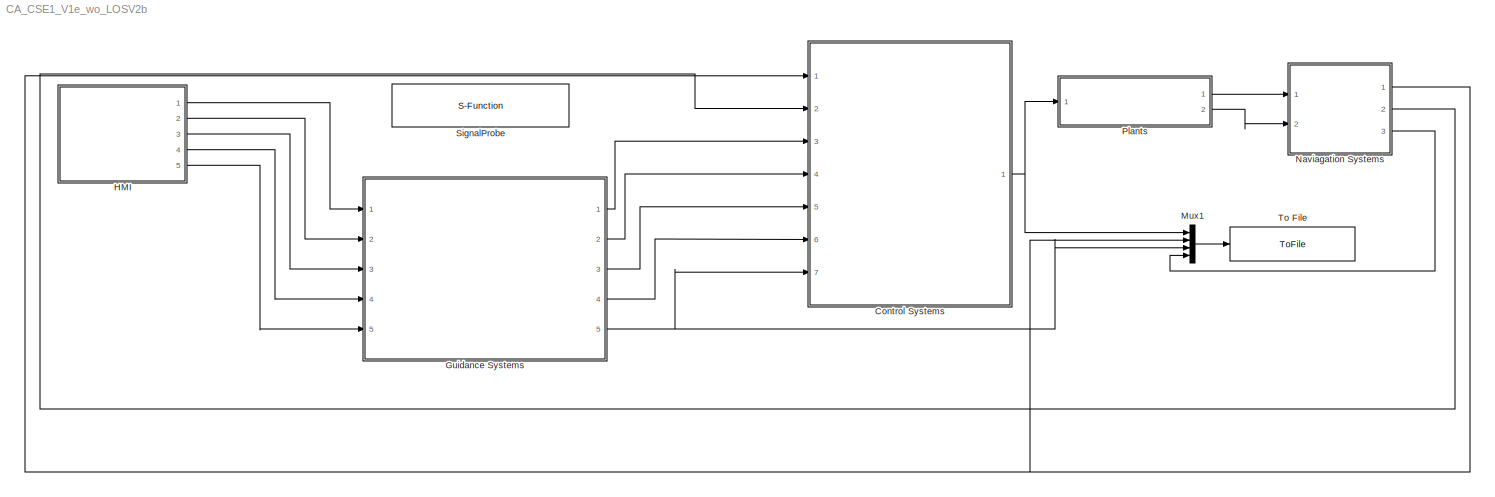
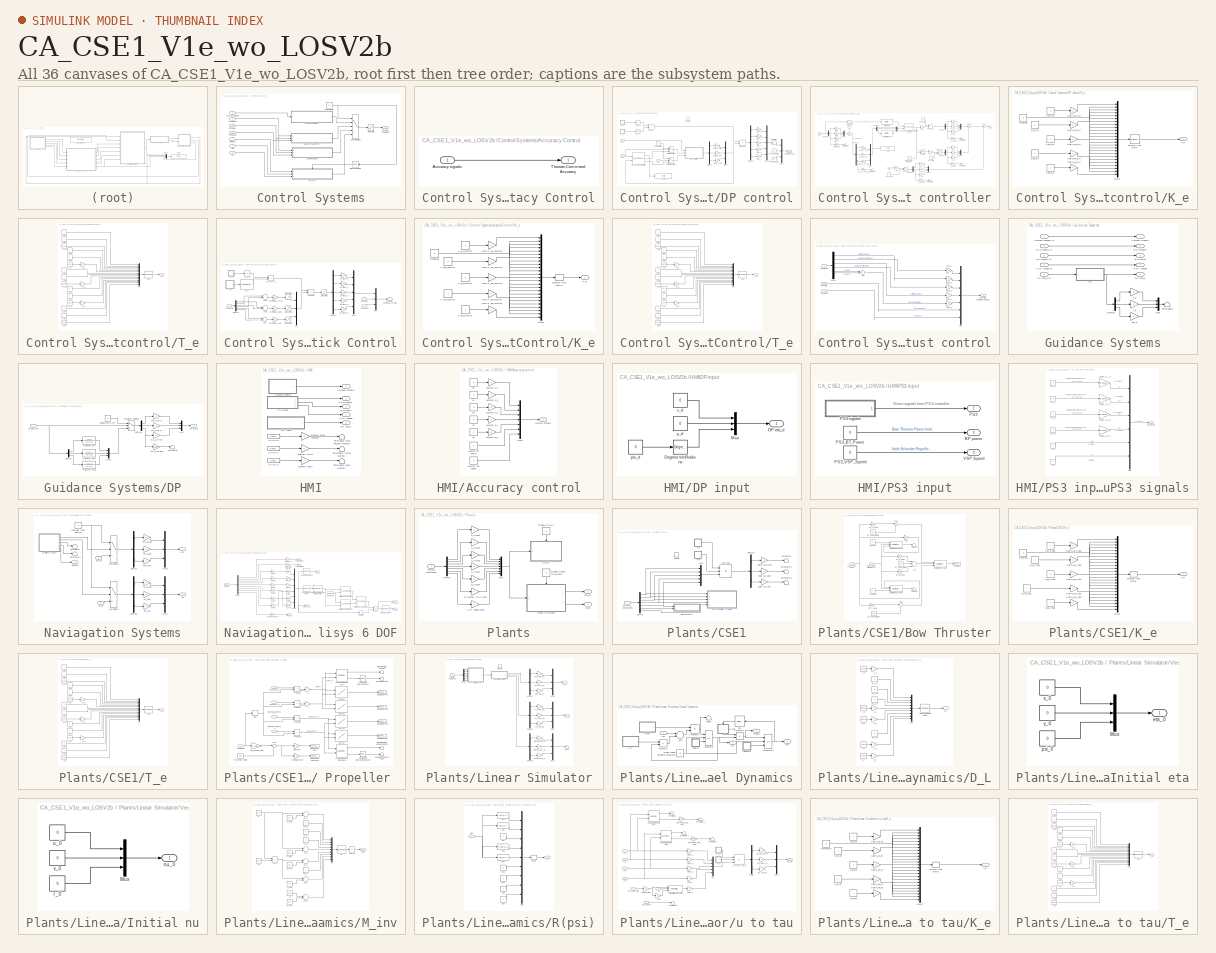
[diagram: thumbnail index - all 36 canvases of the model, root first then tree order]
MODEL CA_CSE1_V1e_wo_LOSV2b
KIND model
BLOCK [SubSystem] Control Systems
  FunctionWithSeparateData = off
  MaskHideContents = off
  MinAlgLoopOccurrences = off
  Opaque = off
  Ports = [7, 1]
  PropExecContextOutsideSubsystem = off
  RTWSystemCode = Auto
  RequestExecContextInheritance = off
BLOCK [SubSystem] Control Systems/Accuracy Control
  FunctionWithSeparateData = off
  MaskHideContents = off
  MinAlgLoopOccurrences = off
  Opaque = off
  Ports = [1, 1]
  PropExecContextOutsideSubsystem = off
  RTWSystemCode = Auto
  RequestExecContextInheritance = off
BLOCK [Inport] Control Systems/Accuracy Control/Accuracy signals
  IconDisplay = Port number
BLOCK [Outport] Control Systems/Accuracy Control/Thruster Command Accuracy
  IconDisplay = Port number
BLOCK [Inport] Control Systems/Accuracy signals
  IconDisplay = Port number
  Port = 3
BLOCK [Inport] Control Systems/BT Power
  IconDisplay = Port number
  Port = 5
BLOCK [Constant] Control Systems/Control Mode
  Value = 0
BLOCK [MultiPortSwitch] Control Systems/Control\nSwitch
  InputSameDT = off
  Inputs = 4
  Ports = [5, 1]
  SaturateOnIntegerOverflow = off
  zeroidx = on
BLOCK [SubSystem] Control Systems/DP control
  FunctionWithSeparateData = off
  MaskHideContents = off
  MinAlgLoopOccurrences = off
  Opaque = off
  Ports = [3, 1, 1]
  PropExecContextOutsideSubsystem = off
  RTWSystemCode = Auto
  RequestExecContextInheritance = off
BLOCK [Constant] Control Systems/DP control/BT_power_limit
  Value = 0.5
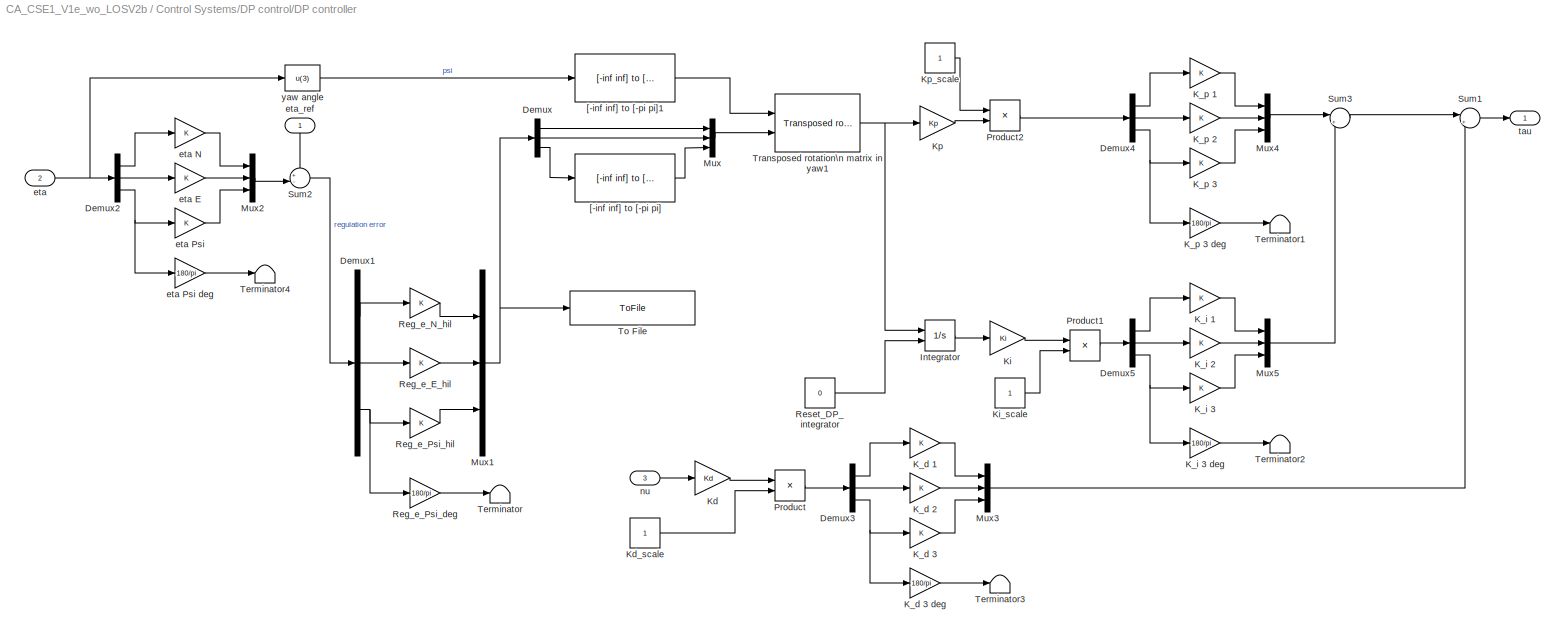
BLOCK [SubSystem] Control Systems/DP control/DP controller
  FunctionWithSeparateData = off
  MaskCallbackString = ||
  MaskDescription = Nonlinear PID controller for Set-Point Reulation in Surge, Sway and Yaw
  MaskDisplay = disp('Nonlinear PID\\n set-point controller')
  MaskEnableString = on,on,on
  MaskHelp = The nonlinear  PID controller uses the rotation matrix in yaw for proper scaling of the surge, sway and yaw gains as a function of the yaw angle. \nINPUTS: (1) eta_ref, (2) eta, (3) nu. OUPUTS: (1) tau.
  MaskHideContents = off
  MaskIconFrame = on
  MaskIconOpaque = off
  MaskIconRotate = none
  MaskIconUnits = autoscale
  MaskPortRotate = default
  MaskPromptString = Proportional Gain Matrix: Kp|Derivative Gain Matrix: Kd|Integral Gain Matrix: Ki
  MaskStyleString = edit,edit,edit
  MaskTabNameString = ,,
  MaskToolTipString = on,on,on
  MaskTunableValueString = on,on,on
  MaskType = Nonlinear DP Controller
  MaskValueString = (0.1)^2*[25.8000 0  0;  0  33.8000  1.0115;  0  1.0115  2.7600 ]|2*0.8*0.1*[25.8000 0  0;  0  33.8000  1.0115;  0  1.0115  2.7600 ]|(0.1^3/10)*[25.8000 0  0;  0  33.8000  1.0115;  0  1.0115  2.7600 ]
  MaskVarAliasString = ,,
  MaskVariables = Kp=@1;Kd=@2;Ki=@3;
  MaskVisibilityString = on,on,on
  MinAlgLoopOccurrences = off
  Opaque = off
  Ports = [3, 1]
  PropExecContextOutsideSubsystem = off
  RTWSystemCode = Auto
  RequestExecContextInheritance = off
BLOCK [Demux] Control Systems/DP control/DP controller/Demux
  DisplayOption = bar
  Outputs = 3
  Ports = [1, 3]
BLOCK [Demux] Control Systems/DP control/DP controller/Demux1
  DisplayOption = bar
  Outputs = 3
  Ports = [1, 3]
BLOCK [Demux] Control Systems/DP control/DP controller/Demux2
  DisplayOption = bar
  Outputs = 3
  Ports = [1, 3]
BLOCK [Demux] Control Systems/DP control/DP controller/Demux3
  DisplayOption = bar
  Outputs = 3
  Ports = [1, 3]
BLOCK [Demux] Control Systems/DP control/DP controller/Demux4
  DisplayOption = bar
  Outputs = 3
  Ports = [1, 3]
BLOCK [Demux] Control Systems/DP control/DP controller/Demux5
  DisplayOption = bar
  Outputs = 3
  Ports = [1, 3]
BLOCK [Integrator] Control Systems/DP control/DP controller/Integrator
  ExternalReset = level
  Ports = [2, 1]
BLOCK [Gain] Control Systems/DP control/DP controller/K_d 1
  OutDataType = fixdt(1, 16)
  OutDataTypeMode = Inherit via internal rule
  OutDataTypeStr = Inherit: Inherit via internal rule
  OutScaling = 2^0
  ParamDataTypeStr = Inherit: Inherit via internal rule
  ParameterDataType = fixdt(1, 16)
  ParameterDataTypeMode = Inherit via internal rule
  ParameterScaling = 2^0
  SaturateOnIntegerOverflow = off
BLOCK [Gain] Control Systems/DP control/DP controller/K_d 2
  OutDataType = fixdt(1, 16)
  OutDataTypeMode = Inherit via internal rule
  OutDataTypeStr = Inherit: Inherit via internal rule
  OutScaling = 2^0
  ParamDataTypeStr = Inherit: Inherit via internal rule
  ParameterDataType = fixdt(1, 16)
  ParameterDataTypeMode = Inherit via internal rule
  ParameterScaling = 2^0
  SaturateOnIntegerOverflow = off
BLOCK [Gain] Control Systems/DP control/DP controller/K_d 3
  OutDataType = fixdt(1, 16)
  OutDataTypeMode = Inherit via internal rule
  OutDataTypeStr = Inherit: Inherit via internal rule
  OutScaling = 2^0
  ParamDataTypeStr = Inherit: Inherit via internal rule
  ParameterDataType = fixdt(1, 16)
  ParameterDataTypeMode = Inherit via internal rule
  ParameterScaling = 2^0
  SaturateOnIntegerOverflow = off
BLOCK [Gain] Control Systems/DP control/DP controller/K_d 3 deg
  Gain = 180/pi
  OutDataType = fixdt(1, 16)
  OutDataTypeMode = Inherit via internal rule
  OutDataTypeStr = Inherit: Inherit via internal rule
  OutScaling = 2^0
  ParamDataTypeStr = Inherit: Inherit via internal rule
  ParameterDataType = fixdt(1, 16)
  ParameterDataTypeMode = Inherit via internal rule
  ParameterScaling = 2^0
  SaturateOnIntegerOverflow = off
BLOCK [Gain] Control Systems/DP control/DP controller/K_i 1
  OutDataType = fixdt(1, 16)
  OutDataTypeMode = Inherit via internal rule
  OutDataTypeStr = Inherit: Inherit via internal rule
  OutScaling = 2^0
  ParamDataTypeStr = Inherit: Inherit via internal rule
  ParameterDataType = fixdt(1, 16)
  ParameterDataTypeMode = Inherit via internal rule
  ParameterScaling = 2^0
  SaturateOnIntegerOverflow = off
BLOCK [Gain] Control Systems/DP control/DP controller/K_i 2
  OutDataType = fixdt(1, 16)
  OutDataTypeMode = Inherit via internal rule
  OutDataTypeStr = Inherit: Inherit via internal rule
  OutScaling = 2^0
  ParamDataTypeStr = Inherit: Inherit via internal rule
  ParameterDataType = fixdt(1, 16)
  ParameterDataTypeMode = Inherit via internal rule
  ParameterScaling = 2^0
  SaturateOnIntegerOverflow = off
BLOCK [Gain] Control Systems/DP control/DP controller/K_i 3
  OutDataType = fixdt(1, 16)
  OutDataTypeMode = Inherit via internal rule
  OutDataTypeStr = Inherit: Inherit via internal rule
  OutScaling = 2^0
  ParamDataTypeStr = Inherit: Inherit via internal rule
  ParameterDataType = fixdt(1, 16)
  ParameterDataTypeMode = Inherit via internal rule
  ParameterScaling = 2^0
  SaturateOnIntegerOverflow = off
BLOCK [Gain] Control Systems/DP control/DP controller/K_i 3 deg
  Gain = 180/pi
  OutDataType = fixdt(1, 16)
  OutDataTypeMode = Inherit via internal rule
  OutDataTypeStr = Inherit: Inherit via internal rule
  OutScaling = 2^0
  ParamDataTypeStr = Inherit: Inherit via internal rule
  ParameterDataType = fixdt(1, 16)
  ParameterDataTypeMode = Inherit via internal rule
  ParameterScaling = 2^0
  SaturateOnIntegerOverflow = off
BLOCK [Gain] Control Systems/DP control/DP controller/K_p 1
  OutDataType = fixdt(1, 16)
  OutDataTypeMode = Inherit via internal rule
  OutDataTypeStr = Inherit: Inherit via internal rule
  OutScaling = 2^0
  ParamDataTypeStr = Inherit: Inherit via internal rule
  ParameterDataType = fixdt(1, 16)
  ParameterDataTypeMode = Inherit via internal rule
  ParameterScaling = 2^0
  SaturateOnIntegerOverflow = off
BLOCK [Gain] Control Systems/DP control/DP controller/K_p 2
  OutDataType = fixdt(1, 16)
  OutDataTypeMode = Inherit via internal rule
  OutDataTypeStr = Inherit: Inherit via internal rule
  OutScaling = 2^0
  ParamDataTypeStr = Inherit: Inherit via internal rule
  ParameterDataType = fixdt(1, 16)
  ParameterDataTypeMode = Inherit via internal rule
  ParameterScaling = 2^0
  SaturateOnIntegerOverflow = off
BLOCK [Gain] Control Systems/DP control/DP controller/K_p 3
  OutDataType = fixdt(1, 16)
  OutDataTypeMode = Inherit via internal rule
  OutDataTypeStr = Inherit: Inherit via internal rule
  OutScaling = 2^0
  ParamDataTypeStr = Inherit: Inherit via internal rule
  ParameterDataType = fixdt(1, 16)
  ParameterDataTypeMode = Inherit via internal rule
  ParameterScaling = 2^0
  SaturateOnIntegerOverflow = off
BLOCK [Gain] Control Systems/DP control/DP controller/K_p 3 deg
  Gain = 180/pi
  OutDataType = fixdt(1, 16)
  OutDataTypeMode = Inherit via internal rule
  OutDataTypeStr = Inherit: Inherit via internal rule
  OutScaling = 2^0
  ParamDataTypeStr = Inherit: Inherit via internal rule
  ParameterDataType = fixdt(1, 16)
  ParameterDataTypeMode = Inherit via internal rule
  ParameterScaling = 2^0
  SaturateOnIntegerOverflow = off
BLOCK [Gain] Control Systems/DP control/DP controller/Kd
  Gain = Kd
  Multiplication = Matrix(K*u)
BLOCK [Constant] Control Systems/DP control/DP controller/Kd_scale
BLOCK [Gain] Control Systems/DP control/DP controller/Ki
  Gain = Ki
  Multiplication = Matrix(K*u)
BLOCK [Constant] Control Systems/DP control/DP controller/Ki_scale
BLOCK [Gain] Control Systems/DP control/DP controller/Kp
  Gain = Kp
  Multiplication = Matrix(K*u)
BLOCK [Constant] Control Systems/DP control/DP controller/Kp_scale
BLOCK [Mux] Control Systems/DP control/DP controller/Mux
  DisplayOption = bar
  Inputs = 3
  Ports = [3, 1]
BLOCK [Mux] Control Systems/DP control/DP controller/Mux1
  DisplayOption = bar
  Inputs = 3
  Ports = [3, 1]
BLOCK [Mux] Control Systems/DP control/DP controller/Mux2
  DisplayOption = bar
  Inputs = 3
  Ports = [3, 1]
BLOCK [Mux] Control Systems/DP control/DP controller/Mux3
  DisplayOption = bar
  Inputs = 3
  Ports = [3, 1]
BLOCK [Mux] Control Systems/DP control/DP controller/Mux4
  DisplayOption = bar
  Inputs = 3
  Ports = [3, 1]
BLOCK [Mux] Control Systems/DP control/DP controller/Mux5
  DisplayOption = bar
  Inputs = 3
  Ports = [3, 1]
BLOCK [Product] Control Systems/DP control/DP controller/Product
  InputSameDT = off
  OutDataTypeMode = Inherit via internal rule
  OutDataTypeStr = Inherit: Inherit via internal rule
  Ports = [2, 1]
  SaturateOnIntegerOverflow = off
BLOCK [Product] Control Systems/DP control/DP controller/Product1
  InputSameDT = off
  OutDataTypeMode = Inherit via internal rule
  OutDataTypeStr = Inherit: Inherit via internal rule
  Ports = [2, 1]
  SaturateOnIntegerOverflow = off
BLOCK [Product] Control Systems/DP control/DP controller/Product2
  InputSameDT = off
  OutDataTypeMode = Inherit via internal rule
  OutDataTypeStr = Inherit: Inherit via internal rule
  Ports = [2, 1]
  SaturateOnIntegerOverflow = off
BLOCK [Gain] Control Systems/DP control/DP controller/Reg_e_E_hil
  OutDataTypeMode = Inherit via internal rule
  OutDataTypeStr = Inherit: Inherit via internal rule
  ParamDataTypeStr = Inherit: Inherit via internal rule
  ParameterDataTypeMode = Inherit via internal rule
  SaturateOnIntegerOverflow = off
BLOCK [Gain] Control Systems/DP control/DP controller/Reg_e_N_hil
  OutDataTypeMode = Inherit via internal rule
  OutDataTypeStr = Inherit: Inherit via internal rule
  ParamDataTypeStr = Inherit: Inherit via internal rule
  ParameterDataTypeMode = Inherit via internal rule
  SaturateOnIntegerOverflow = off
BLOCK [Gain] Control Systems/DP control/DP controller/Reg_e_Psi_deg
  Gain = 180/pi
  OutDataType = fixdt(1, 16)
  OutDataTypeMode = Inherit via internal rule
  OutDataTypeStr = Inherit: Inherit via internal rule
  OutScaling = 2^0
  ParamDataTypeStr = Inherit: Inherit via internal rule
  ParameterDataType = fixdt(1, 16)
  ParameterDataTypeMode = Inherit via internal rule
  ParameterScaling = 2^0
  SaturateOnIntegerOverflow = off
BLOCK [Gain] Control Systems/DP control/DP controller/Reg_e_Psi_hil
  OutDataTypeMode = Inherit via internal rule
  OutDataTypeStr = Inherit: Inherit via internal rule
  ParamDataTypeStr = Inherit: Inherit via internal rule
  ParameterDataTypeMode = Inherit via internal rule
  SaturateOnIntegerOverflow = off
BLOCK [Constant] Control Systems/DP control/DP controller/Reset_DP_integrator
  Value = 0
BLOCK [Sum] Control Systems/DP control/DP controller/Sum1
  IconShape = round
  Inputs = |+-
  Ports = [2, 1]
BLOCK [Sum] Control Systems/DP control/DP controller/Sum2
  IconShape = round
  Inputs = +-|
  Ports = [2, 1]
BLOCK [Sum] Control Systems/DP control/DP controller/Sum3
  IconShape = round
  Inputs = |++
  Ports = [2, 1]
BLOCK [Terminator] Control Systems/DP control/DP controller/Terminator
BLOCK [Terminator] Control Systems/DP control/DP controller/Terminator1
BLOCK [Terminator] Control Systems/DP control/DP controller/Terminator2
BLOCK [Terminator] Control Systems/DP control/DP controller/Terminator3
BLOCK [Terminator] Control Systems/DP control/DP controller/Terminator4
BLOCK [ToFile] Control Systems/DP control/DP controller/To File
  Filename = CSE1_data_reg_error.mat
  MatrixName = cse1_data_reg_error
BLOCK [Reference] Control Systems/DP control/DP controller/Transposed rotation\n matrix in yaw1  REF=marine_gnc/Models/ Kinematics/Transposed rotation\n matrix in yaw  (lib defined in mdl_10d96c221ba8, mdl_45f1105420c6)
  FunctionWithSeparateData = off
  Ports = [2, 1]
  RTWMemSecDataConstants = Inherit from model
  RTWMemSecDataInternal = Inherit from model
  RTWMemSecDataParameters = Inherit from model
  RTWMemSecFuncExecute = Inherit from model
  RTWMemSecFuncInitTerm = Inherit from model
  ShowPortLabels = FromPortIcon
  SourceBlock = marine_gnc/Models/ Kinematics/Transposed rotation\n matrix in yaw
  SystemSampleTime = -1
BLOCK [Reference] Control Systems/DP control/DP controller/[-inf inf] to [-pi pi]  REF=marine_gnc/Utilities/Math Operations/[-inf inf] to [-pi pi]  (lib defined in mdl_10d96c221ba8, mdl_45f1105420c6)
  FunctionWithSeparateData = off
  Ports = [1, 1]
  RTWMemSecDataConstants = Inherit from model
  RTWMemSecDataInternal = Inherit from model
  RTWMemSecDataParameters = Inherit from model
  RTWMemSecFuncExecute = Inherit from model
  RTWMemSecFuncInitTerm = Inherit from model
  ShowPortLabels = FromPortIcon
  SourceBlock = marine_gnc/Utilities/Math Operations/[-inf inf] to [-pi pi]
  SourceType = [-inf inf] to [-pi pi]
  SystemSampleTime = -1
BLOCK [Reference] Control Systems/DP control/DP controller/[-inf inf] to [-pi pi]1  REF=marine_gnc/Utilities/Math Operations/[-inf inf] to [-pi pi]  (lib defined in mdl_10d96c221ba8, mdl_45f1105420c6)
  FunctionWithSeparateData = off
  Ports = [1, 1]
  RTWMemSecDataConstants = Inherit from model
  RTWMemSecDataInternal = Inherit from model
  RTWMemSecDataParameters = Inherit from model
  RTWMemSecFuncExecute = Inherit from model
  RTWMemSecFuncInitTerm = Inherit from model
  ShowPortLabels = FromPortIcon
  SourceBlock = marine_gnc/Utilities/Math Operations/[-inf inf] to [-pi pi]
  SourceType = [-inf inf] to [-pi pi]
  SystemSampleTime = -1
BLOCK [Inport] Control Systems/DP control/DP controller/eta
  IconDisplay = Port number
  Port = 2
BLOCK [Gain] Control Systems/DP control/DP controller/eta E
  OutDataType = fixdt(1, 16)
  OutDataTypeMode = Inherit via internal rule
  OutDataTypeStr = Inherit: Inherit via internal rule
  OutScaling = 2^0
  ParamDataTypeStr = Inherit: Inherit via internal rule
  ParameterDataType = fixdt(1, 16)
  ParameterDataTypeMode = Inherit via internal rule
  ParameterScaling = 2^0
  SaturateOnIntegerOverflow = off
BLOCK [Gain] Control Systems/DP control/DP controller/eta N
  OutDataType = fixdt(1, 16)
  OutDataTypeMode = Inherit via internal rule
  OutDataTypeStr = Inherit: Inherit via internal rule
  OutScaling = 2^0
  ParamDataTypeStr = Inherit: Inherit via internal rule
  ParameterDataType = fixdt(1, 16)
  ParameterDataTypeMode = Inherit via internal rule
  ParameterScaling = 2^0
  SaturateOnIntegerOverflow = off
BLOCK [Gain] Control Systems/DP control/DP controller/eta Psi
  OutDataType = fixdt(1, 16)
  OutDataTypeMode = Inherit via internal rule
  OutDataTypeStr = Inherit: Inherit via internal rule
  OutScaling = 2^0
  ParamDataTypeStr = Inherit: Inherit via internal rule
  ParameterDataType = fixdt(1, 16)
  ParameterDataTypeMode = Inherit via internal rule
  ParameterScaling = 2^0
  SaturateOnIntegerOverflow = off
BLOCK [Gain] Control Systems/DP control/DP controller/eta Psi deg
  Gain = 180/pi
  OutDataType = fixdt(1, 16)
  OutDataTypeMode = Inherit via internal rule
  OutDataTypeStr = Inherit: Inherit via internal rule
  OutScaling = 2^0
  ParamDataTypeStr = Inherit: Inherit via internal rule
  ParameterDataType = fixdt(1, 16)
  ParameterDataTypeMode = Inherit via internal rule
  ParameterScaling = 2^0
  SaturateOnIntegerOverflow = off
BLOCK [Inport] Control Systems/DP control/DP controller/eta_ref
  IconDisplay = Port number
BLOCK [Inport] Control Systems/DP control/DP controller/nu
  IconDisplay = Port number
  Port = 3
BLOCK [Outport] Control Systems/DP control/DP controller/tau
  IconDisplay = Port number
  InitialOutput = 0
BLOCK [Fcn] Control Systems/DP control/DP controller/yaw angle
  Expr = u(3)
BLOCK [Gain] Control Systems/DP control/DP tau_surge
  OutDataType = fixdt(1, 16)
  OutDataTypeMode = Inherit via internal rule
  OutDataTypeStr = Inherit: Inherit via internal rule
  OutScaling = 2^0
  ParamDataTypeStr = Inherit: Inherit via internal rule
  ParameterDataType = fixdt(1, 16)
  ParameterDataTypeMode = Inherit via internal rule
  ParameterScaling = 2^0
  SaturateOnIntegerOverflow = off
BLOCK [Gain] Control Systems/DP control/DP tau_sway
  OutDataType = fixdt(1, 16)
  OutDataTypeMode = Inherit via internal rule
  OutDataTypeStr = Inherit: Inherit via internal rule
  OutScaling = 2^0
  ParamDataTypeStr = Inherit: Inherit via internal rule
  ParameterDataType = fixdt(1, 16)
  ParameterDataTypeMode = Inherit via internal rule
  ParameterScaling = 2^0
  SaturateOnIntegerOverflow = off
BLOCK [Gain] Control Systems/DP control/DP tau_yaw
  OutDataType = fixdt(1, 16)
  OutDataTypeMode = Inherit via internal rule
  OutDataTypeStr = Inherit: Inherit via internal rule
  OutScaling = 2^0
  ParamDataTypeStr = Inherit: Inherit via internal rule
  ParameterDataType = fixdt(1, 16)
  ParameterDataTypeMode = Inherit via internal rule
  ParameterScaling = 2^0
  SaturateOnIntegerOverflow = off
BLOCK [Gain] Control Systems/DP control/DP u_1
  OutDataType = fixdt(1, 16)
  OutDataTypeMode = Inherit via internal rule
  OutDataTypeStr = Inherit: Inherit via internal rule
  OutScaling = 2^0
  ParamDataTypeStr = Inherit: Inherit via internal rule
  ParameterDataType = fixdt(1, 16)
  ParameterDataTypeMode = Inherit via internal rule
  ParameterScaling = 2^0
  SaturateOnIntegerOverflow = off
BLOCK [Gain] Control Systems/DP control/DP u_2
  OutDataType = fixdt(1, 16)
  OutDataTypeMode = Inherit via internal rule
  OutDataTypeStr = Inherit: Inherit via internal rule
  OutScaling = 2^0
  ParamDataTypeStr = Inherit: Inherit via internal rule
  ParameterDataType = fixdt(1, 16)
  ParameterDataTypeMode = Inherit via internal rule
  ParameterScaling = 2^0
  SaturateOnIntegerOverflow = off
BLOCK [Gain] Control Systems/DP control/DP u_3
  OutDataType = fixdt(1, 16)
  OutDataTypeMode = Inherit via internal rule
  OutDataTypeStr = Inherit: Inherit via internal rule
  OutScaling = 2^0
  ParamDataTypeStr = Inherit: Inherit via internal rule
  ParameterDataType = fixdt(1, 16)
  ParameterDataTypeMode = Inherit via internal rule
  ParameterScaling = 2^0
  SaturateOnIntegerOverflow = off
BLOCK [Gain] Control Systems/DP control/DP u_4
  OutDataType = fixdt(1, 16)
  OutDataTypeMode = Inherit via internal rule
  OutDataTypeStr = Inherit: Inherit via internal rule
  OutScaling = 2^0
  ParamDataTypeStr = Inherit: Inherit via internal rule
  ParameterDataType = fixdt(1, 16)
  ParameterDataTypeMode = Inherit via internal rule
  ParameterScaling = 2^0
  SaturateOnIntegerOverflow = off
BLOCK [Gain] Control Systems/DP control/DP u_5
  OutDataType = fixdt(1, 16)
  OutDataTypeMode = Inherit via internal rule
  OutDataTypeStr = Inherit: Inherit via internal rule
  OutScaling = 2^0
  ParamDataTypeStr = Inherit: Inherit via internal rule
  ParameterDataType = fixdt(1, 16)
  ParameterDataTypeMode = Inherit via internal rule
  ParameterScaling = 2^0
  SaturateOnIntegerOverflow = off
BLOCK [Demux] Control Systems/DP control/Demux
  DisplayOption = bar
  Outputs = 3
  Ports = [1, 3]
BLOCK [Demux] Control Systems/DP control/Demux1
  DisplayOption = bar
  Outputs = 5
  Ports = [1, 5]
BLOCK [EnablePort] Control Systems/DP control/Enable
  Ports = []
  StatesWhenEnabling = reset
BLOCK [Constant] Control Systems/DP control/Enable Filter
  Value = 0
BLOCK [SubSystem] Control Systems/DP control/K_e
  FunctionWithSeparateData = off
  MaskHideContents = off
  MinAlgLoopOccurrences = off
  Opaque = off
  Ports = [0, 1]
  PropExecContextOutsideSubsystem = off
  RTWSystemCode = Auto
  RequestExecContextInheritance = off
BLOCK [Constant] Control Systems/DP control/K_e/Constant
  OutDataType = fixdt(1, 16)
  OutScaling = 2^0
  Value = 0
BLOCK [Gain] Control Systems/DP control/K_e/Gain K_e1_DP
  OutDataType = fixdt(1, 16)
  OutDataTypeMode = Inherit via internal rule
  OutDataTypeStr = Inherit: Inherit via internal rule
  OutScaling = 2^0
  ParamDataTypeStr = Inherit: Inherit via internal rule
  ParameterDataType = fixdt(1, 16)
  ParameterDataTypeMode = Inherit via internal rule
  ParameterScaling = 2^0
  SaturateOnIntegerOverflow = off
BLOCK [Gain] Control Systems/DP control/K_e/Gain K_e2_DP
  OutDataType = fixdt(1, 16)
  OutDataTypeMode = Inherit via internal rule
  OutDataTypeStr = Inherit: Inherit via internal rule
  OutScaling = 2^0
  ParamDataTypeStr = Inherit: Inherit via internal rule
  ParameterDataType = fixdt(1, 16)
  ParameterDataTypeMode = Inherit via internal rule
  ParameterScaling = 2^0
  SaturateOnIntegerOverflow = off
BLOCK [Gain] Control Systems/DP control/K_e/Gain K_e3_DP
  OutDataType = fixdt(1, 16)
  OutDataTypeMode = Inherit via internal rule
  OutDataTypeStr = Inherit: Inherit via internal rule
  OutScaling = 2^0
  ParamDataTypeStr = Inherit: Inherit via internal rule
  ParameterDataType = fixdt(1, 16)
  ParameterDataTypeMode = Inherit via internal rule
  ParameterScaling = 2^0
  SaturateOnIntegerOverflow = off
BLOCK [Gain] Control Systems/DP control/K_e/Gain K_e4_DP
  OutDataType = fixdt(1, 16)
  OutDataTypeMode = Inherit via internal rule
  OutDataTypeStr = Inherit: Inherit via internal rule
  OutScaling = 2^0
  ParamDataTypeStr = Inherit: Inherit via internal rule
  ParameterDataType = fixdt(1, 16)
  ParameterDataTypeMode = Inherit via internal rule
  ParameterScaling = 2^0
  SaturateOnIntegerOverflow = off
BLOCK [Gain] Control Systems/DP control/K_e/Gain K_e5_DP
  OutDataType = fixdt(1, 16)
  OutDataTypeMode = Inherit via internal rule
  OutDataTypeStr = Inherit: Inherit via internal rule
  OutScaling = 2^0
  ParamDataTypeStr = Inherit: Inherit via internal rule
  ParameterDataType = fixdt(1, 16)
  ParameterDataTypeMode = Inherit via internal rule
  ParameterScaling = 2^0
  SaturateOnIntegerOverflow = off
BLOCK [Outport] Control Systems/DP control/K_e/K_e
  IconDisplay = Port number
  OutDataType = fixdt(1, 16)
  OutScaling = 2^0
BLOCK [Constant] Control Systems/DP control/K_e/K_e1_DP
  OutDataType = fixdt(1, 16)
  OutScaling = 2^0
BLOCK [Constant] Control Systems/DP control/K_e/K_e2_DP
  OutDataType = fixdt(1, 16)
  OutScaling = 2^0
BLOCK [Constant] Control Systems/DP control/K_e/K_e3_DP
  OutDataType = fixdt(1, 16)
  OutScaling = 2^0
BLOCK [Constant] Control Systems/DP control/K_e/K_e4_DP
  OutDataType = fixdt(1, 16)
  OutScaling = 2^0
BLOCK [Constant] Control Systems/DP control/K_e/K_e5_DP
  OutDataType = fixdt(1, 16)
  OutScaling = 2^0
BLOCK [Mux] Control Systems/DP control/K_e/Mux12
  DisplayOption = bar
  Inputs = 25
  Ports = [25, 1]
BLOCK [Reshape] Control Systems/DP control/K_e/Thruster Gain matrix
  OutputDimensionality = Customize
  OutputDimensions = [5,5]
  Ports = [1, 1]
BLOCK [Product] Control Systems/DP control/K_e^-1
  InputSameDT = off
  Inputs = /
  Multiplication = Matrix(*)
  OutDataTypeMode = Inherit via internal rule
  OutDataTypeStr = Inherit: Inherit via internal rule
  Ports = [1, 1]
  RndMeth = Floor
  SaturateOnIntegerOverflow = off
BLOCK [MultiPortSwitch] Control Systems/DP control/Multiport\nSwitch
  InputSameDT = off
  Inputs = 2
  Ports = [3, 1]
  SaturateOnIntegerOverflow = off
  zeroidx = on
BLOCK [MultiPortSwitch] Control Systems/DP control/Multiport\nSwitch1
  InputSameDT = off
  Inputs = 2
  Ports = [3, 1]
  SaturateOnIntegerOverflow = off
  zeroidx = on
BLOCK [Mux] Control Systems/DP control/Mux1
  DisplayOption = bar
  Inputs = 3
  Ports = [3, 1]
BLOCK [Mux] Control Systems/DP control/Mux2
  DisplayOption = bar
  Inputs = 5
  Ports = [5, 1]
BLOCK [Mux] Control Systems/DP control/Mux3
  DisplayOption = bar
  Inputs = 3
  Ports = [3, 1]
BLOCK [Reference] Control Systems/DP control/Passive DP wave filter1  REF=marine_gnc/Navigation/Observers/Passive DP wave filter  (lib defined in mdl_10d96c221ba8, mdl_45f1105420c6)
  D = [2 0  0;  0 7 0.1; 0 0.1 0.5]
  FunctionWithSeparateData = off
  K3 = 0.1*diag([1 1 0.1])
  K4 = 0.1*diag([1 1 0.1])
  M = [ 25.8000   0    0;   0   33.8000   1.0115; 0   1.0115    2.7600 ]
  Ports = [2, 3]
  RTWMemSecDataConstants = Inherit from model
  RTWMemSecDataInternal = Inherit from model
  RTWMemSecDataParameters = Inherit from model
  RTWMemSecFuncExecute = Inherit from model
  RTWMemSecFuncInitTerm = Inherit from model
  ShowPortLabels = FromPortIcon
  SourceBlock = marine_gnc/Navigation/Observers/Passive DP wave filter
  SystemSampleTime = -1
  T_b = diag([100 100 100])
  lambda = 0.1*diag([1 1 1])
  w_c = 1.3*diag([0.8 0.8 0.8])
  w_o = diag([0.8 0.8 0.8])
BLOCK [Product] Control Systems/DP control/Product
  InputSameDT = off
  Multiplication = Matrix(*)
  OutDataTypeMode = Inherit via internal rule
  OutDataTypeStr = Inherit: Inherit via internal rule
  Ports = [2, 1]
  SaturateOnIntegerOverflow = off
BLOCK [Product] Control Systems/DP control/Product1
  InputSameDT = off
  Multiplication = Matrix(*)
  OutDataTypeMode = Inherit via internal rule
  OutDataTypeStr = Inherit: Inherit via internal rule
  Ports = [2, 1]
  SaturateOnIntegerOverflow = off
BLOCK [Saturate] Control Systems/DP control/Saturation
  LowerLimit = -1.0
  UpperLimit = 1.0
BLOCK [SubSystem] Control Systems/DP control/T_e
  FunctionWithSeparateData = off
  MaskHideContents = off
  MinAlgLoopOccurrences = off
  Opaque = off
  Ports = [0, 1]
  PropExecContextOutsideSubsystem = off
  RTWSystemCode = Auto
  RequestExecContextInheritance = off
BLOCK [Gain] Control Systems/DP control/T_e/-l_x1
  Gain = -1
  OutDataTypeMode = Inherit via internal rule
  OutDataTypeStr = Inherit: Inherit via internal rule
  ParamDataTypeStr = Inherit: Inherit via internal rule
  ParameterDataTypeMode = Inherit via internal rule
  SaturateOnIntegerOverflow = off
BLOCK [Gain] Control Systems/DP control/T_e/-l_x2
  Gain = -1
  OutDataTypeMode = Inherit via internal rule
  OutDataTypeStr = Inherit: Inherit via internal rule
  ParamDataTypeStr = Inherit: Inherit via internal rule
  ParameterDataTypeMode = Inherit via internal rule
  SaturateOnIntegerOverflow = off
BLOCK [Gain] Control Systems/DP control/T_e/-l_y2
  Gain = -1
  OutDataTypeMode = Inherit via internal rule
  OutDataTypeStr = Inherit: Inherit via internal rule
  ParamDataTypeStr = Inherit: Inherit via internal rule
  ParameterDataTypeMode = Inherit via internal rule
  SaturateOnIntegerOverflow = off
BLOCK [Reshape] Control Systems/DP control/T_e/3x5
  OutputDimensionality = Customize
  OutputDimensions = [3,5]
  Ports = [1, 1]
BLOCK [Mux] Control Systems/DP control/T_e/Mux
  DisplayOption = bar
  Inputs = 15
  Ports = [15, 1]
BLOCK [Outport] Control Systems/DP control/T_e/T_e
  IconDisplay = Port number
BLOCK [Constant] Control Systems/DP control/T_e/T_e11
BLOCK [Constant] Control Systems/DP control/T_e/T_e12
  Value = 0
BLOCK [Constant] Control Systems/DP control/T_e/T_e13
BLOCK [Constant] Control Systems/DP control/T_e/T_e14
  Value = 0
BLOCK [Constant] Control Systems/DP control/T_e/T_e15
  Value = 0
BLOCK [Constant] Control Systems/DP control/T_e/T_e21
  Value = 0
BLOCK [Constant] Control Systems/DP control/T_e/T_e22
BLOCK [Constant] Control Systems/DP control/T_e/T_e23
  Value = 0
BLOCK [Constant] Control Systems/DP control/T_e/T_e24
BLOCK [Constant] Control Systems/DP control/T_e/T_e25
BLOCK [Constant] Control Systems/DP control/T_e/l_x1
  Value = 0.425
BLOCK [Constant] Control Systems/DP control/T_e/l_x2
  Value = 0.425
BLOCK [Constant] Control Systems/DP control/T_e/l_x3
  Value = 0.425
BLOCK [Constant] Control Systems/DP control/T_e/l_y1
  Value = 0.055
BLOCK [Constant] Control Systems/DP control/T_e/l_y2
  Value = 0.055
BLOCK [Reference] Control Systems/DP control/T_e^+  REF=dspinverses/Pseudoinverse
  Ports = [1, 1]
  SourceBlock = dspinverses/Pseudoinverse
  SourceType = Pseudoinverse
  wanterr = off
BLOCK [Outport] Control Systems/DP control/Thruster_Command_DP
  IconDisplay = Port number
  InitialOutput = [0;0;0;0;0;0;0]
BLOCK [ToFile] Control Systems/DP control/To File
  Filename = CSE1_data_eta_w.mat
  MatrixName = cse1_data
BLOCK [Constant] Control Systems/DP control/VSP_speeds
  Value = 0.4
BLOCK [Inport] Control Systems/DP control/eta
  IconDisplay = Port number
  Port = 2
BLOCK [Inport] Control Systems/DP control/eta_d
  IconDisplay = Port number
BLOCK [Inport] Control Systems/DP control/nu
  IconDisplay = Port number
  Port = 3
BLOCK [Inport] Control Systems/DP eta_d
  IconDisplay = Port number
  Port = 7
BLOCK [SubSystem] Control Systems/Joystick Control
  FunctionWithSeparateData = off
  MaskHideContents = off
  MinAlgLoopOccurrences = on
  Opaque = off
  Ports = [3, 1]
  PropExecContextOutsideSubsystem = off
  RTWSystemCode = Auto
  RequestExecContextInheritance = off
BLOCK [Inport] Control Systems/Joystick Control/BT Power
  IconDisplay = Port number
  Port = 2
BLOCK [Demux] Control Systems/Joystick Control/Demux1
  DisplayOption = bar
  Outputs = 6
  Ports = [1, 6]
BLOCK [Demux] Control Systems/Joystick Control/Demux2
  DisplayOption = bar
  Outputs = 5
  Ports = [1, 5]
BLOCK [Gain] Control Systems/Joystick Control/Joystick tau_surge
  OutDataTypeMode = Inherit via internal rule
  OutDataTypeStr = Inherit: Inherit via internal rule
  ParamDataTypeStr = Inherit: Inherit via internal rule
  ParameterDataTypeMode = Inherit via internal rule
  SaturateOnIntegerOverflow = off
BLOCK [Gain] Control Systems/Joystick Control/Joystick tau_sway
  OutDataTypeMode = Inherit via internal rule
  OutDataTypeStr = Inherit: Inherit via internal rule
  ParamDataTypeStr = Inherit: Inherit via internal rule
  ParameterDataTypeMode = Inherit via internal rule
  SaturateOnIntegerOverflow = off
BLOCK [Gain] Control Systems/Joystick Control/Joystick tau_yaw
  OutDataTypeMode = Inherit via internal rule
  OutDataTypeStr = Inherit: Inherit via internal rule
  ParamDataTypeStr = Inherit: Inherit via internal rule
  ParameterDataTypeMode = Inherit via internal rule
  SaturateOnIntegerOverflow = off
BLOCK [Gain] Control Systems/Joystick Control/Joystick u_1
  OutDataType = fixdt(1, 16)
  OutDataTypeMode = Inherit via internal rule
  OutDataTypeStr = Inherit: Inherit via internal rule
  OutScaling = 2^0
  ParamDataTypeStr = Inherit: Inherit via internal rule
  ParameterDataType = fixdt(1, 16)
  ParameterDataTypeMode = Inherit via internal rule
  ParameterScaling = 2^0
  SaturateOnIntegerOverflow = off
BLOCK [Gain] Control Systems/Joystick Control/Joystick u_2
  OutDataType = fixdt(1, 16)
  OutDataTypeMode = Inherit via internal rule
  OutDataTypeStr = Inherit: Inherit via internal rule
  OutScaling = 2^0
  ParamDataTypeStr = Inherit: Inherit via internal rule
  ParameterDataType = fixdt(1, 16)
  ParameterDataTypeMode = Inherit via internal rule
  ParameterScaling = 2^0
  SaturateOnIntegerOverflow = off
BLOCK [Gain] Control Systems/Joystick Control/Joystick u_3
  OutDataType = fixdt(1, 16)
  OutDataTypeMode = Inherit via internal rule
  OutDataTypeStr = Inherit: Inherit via internal rule
  OutScaling = 2^0
  ParamDataTypeStr = Inherit: Inherit via internal rule
  ParameterDataType = fixdt(1, 16)
  ParameterDataTypeMode = Inherit via internal rule
  ParameterScaling = 2^0
  SaturateOnIntegerOverflow = off
BLOCK [Gain] Control Systems/Joystick Control/Joystick u_4
  OutDataType = fixdt(1, 16)
  OutDataTypeMode = Inherit via internal rule
  OutDataTypeStr = Inherit: Inherit via internal rule
  OutScaling = 2^0
  ParamDataTypeStr = Inherit: Inherit via internal rule
  ParameterDataType = fixdt(1, 16)
  ParameterDataTypeMode = Inherit via internal rule
  ParameterScaling = 2^0
  SaturateOnIntegerOverflow = off
BLOCK [Gain] Control Systems/Joystick Control/Joystick u_5
  OutDataType = fixdt(1, 16)
  OutDataTypeMode = Inherit via internal rule
  OutDataTypeStr = Inherit: Inherit via internal rule
  OutScaling = 2^0
  ParamDataTypeStr = Inherit: Inherit via internal rule
  ParameterDataType = fixdt(1, 16)
  ParameterDataTypeMode = Inherit via internal rule
  ParameterScaling = 2^0
  SaturateOnIntegerOverflow = off
BLOCK [SubSystem] Control Systems/Joystick Control/K_e
  FunctionWithSeparateData = off
  MaskHideContents = off
  MinAlgLoopOccurrences = off
  Opaque = off
  Ports = [0, 1]
  PropExecContextOutsideSubsystem = off
  RTWSystemCode = Auto
  RequestExecContextInheritance = off
BLOCK [Constant] Control Systems/Joystick Control/K_e/Constant
  OutDataType = fixdt(1, 16)
  OutScaling = 2^0
  Value = 0
BLOCK [Gain] Control Systems/Joystick Control/K_e/Gain K_e1_joystick
  OutDataType = fixdt(1, 16)
  OutDataTypeMode = Inherit via internal rule
  OutDataTypeStr = Inherit: Inherit via internal rule
  OutScaling = 2^0
  ParamDataTypeStr = Inherit: Inherit via internal rule
  ParameterDataType = fixdt(1, 16)
  ParameterDataTypeMode = Inherit via internal rule
  ParameterScaling = 2^0
  SaturateOnIntegerOverflow = off
BLOCK [Gain] Control Systems/Joystick Control/K_e/Gain K_e2_joystick
  OutDataType = fixdt(1, 16)
  OutDataTypeMode = Inherit via internal rule
  OutDataTypeStr = Inherit: Inherit via internal rule
  OutScaling = 2^0
  ParamDataTypeStr = Inherit: Inherit via internal rule
  ParameterDataType = fixdt(1, 16)
  ParameterDataTypeMode = Inherit via internal rule
  ParameterScaling = 2^0
  SaturateOnIntegerOverflow = off
BLOCK [Gain] Control Systems/Joystick Control/K_e/Gain K_e3_joystick
  OutDataType = fixdt(1, 16)
  OutDataTypeMode = Inherit via internal rule
  OutDataTypeStr = Inherit: Inherit via internal rule
  OutScaling = 2^0
  ParamDataTypeStr = Inherit: Inherit via internal rule
  ParameterDataType = fixdt(1, 16)
  ParameterDataTypeMode = Inherit via internal rule
  ParameterScaling = 2^0
  SaturateOnIntegerOverflow = off
BLOCK [Gain] Control Systems/Joystick Control/K_e/Gain K_e4_joystick
  OutDataType = fixdt(1, 16)
  OutDataTypeMode = Inherit via internal rule
  OutDataTypeStr = Inherit: Inherit via internal rule
  OutScaling = 2^0
  ParamDataTypeStr = Inherit: Inherit via internal rule
  ParameterDataType = fixdt(1, 16)
  ParameterDataTypeMode = Inherit via internal rule
  ParameterScaling = 2^0
  SaturateOnIntegerOverflow = off
BLOCK [Gain] Control Systems/Joystick Control/K_e/Gain K_e5_joystick
  OutDataType = fixdt(1, 16)
  OutDataTypeMode = Inherit via internal rule
  OutDataTypeStr = Inherit: Inherit via internal rule
  OutScaling = 2^0
  ParamDataTypeStr = Inherit: Inherit via internal rule
  ParameterDataType = fixdt(1, 16)
  ParameterDataTypeMode = Inherit via internal rule
  ParameterScaling = 2^0
  SaturateOnIntegerOverflow = off
BLOCK [Outport] Control Systems/Joystick Control/K_e/K_e
  IconDisplay = Port number
  OutDataType = fixdt(1, 16)
  OutScaling = 2^0
BLOCK [Constant] Control Systems/Joystick Control/K_e/K_e1_joystick
  OutDataType = fixdt(1, 16)
  OutScaling = 2^0
BLOCK [Constant] Control Systems/Joystick Control/K_e/K_e2_joystick
  OutDataType = fixdt(1, 16)
  OutScaling = 2^0
BLOCK [Constant] Control Systems/Joystick Control/K_e/K_e3_joystick
  OutDataType = fixdt(1, 16)
  OutScaling = 2^0
BLOCK [Constant] Control Systems/Joystick Control/K_e/K_e4_joystick
  OutDataType = fixdt(1, 16)
  OutScaling = 2^0
BLOCK [Constant] Control Systems/Joystick Control/K_e/K_e5_joystick
  OutDataType = fixdt(1, 16)
  OutScaling = 2^0
BLOCK [Mux] Control Systems/Joystick Control/K_e/Mux12
  DisplayOption = bar
  Inputs = 25
  Ports = [25, 1]
BLOCK [Reshape] Control Systems/Joystick Control/K_e/Thruster Gain matrix
  OutputDimensionality = Customize
  OutputDimensions = [5,5]
  Ports = [1, 1]
BLOCK [Product] Control Systems/Joystick Control/K_e^-1
  InputSameDT = off
  Inputs = /
  Multiplication = Matrix(*)
  OutDataTypeMode = Inherit via internal rule
  OutDataTypeStr = Inherit: Inherit via internal rule
  Ports = [1, 1]
  RndMeth = Floor
  SaturateOnIntegerOverflow = off
BLOCK [Mux] Control Systems/Joystick Control/Mux
  DisplayOption = bar
  Inputs = 3
  Ports = [3, 1]
BLOCK [Mux] Control Systems/Joystick Control/Mux1
  DisplayOption = bar
  Inputs = 3
  Ports = [3, 1]
BLOCK [Mux] Control Systems/Joystick Control/Mux2
  DisplayOption = bar
  Inputs = 5
  Ports = [5, 1]
BLOCK [Inport] Control Systems/Joystick Control/PS3 Signals
  IconDisplay = Port number
BLOCK [Product] Control Systems/Joystick Control/Product1
  InputSameDT = off
  Multiplication = Matrix(*)
  OutDataTypeMode = Inherit via internal rule
  OutDataTypeStr = Inherit: Inherit via internal rule
  Ports = [2, 1]
  SaturateOnIntegerOverflow = off
BLOCK [Saturate] Control Systems/Joystick Control/Saturation
  LowerLimit = -1.0
  UpperLimit = 1.0
BLOCK [Saturate] Control Systems/Joystick Control/Saturation1
  LowerLimit = -1.0
  UpperLimit = 1.0
BLOCK [Saturate] Control Systems/Joystick Control/Saturation2
  LowerLimit = -1.0
  UpperLimit = 1.0
BLOCK [Saturate] Control Systems/Joystick Control/Saturation3
  LowerLimit = -1.0
  UpperLimit = 1.0
BLOCK [Sum] Control Systems/Joystick Control/Sum
  InputSameDT = off
  OutDataTypeMode = Inherit via internal rule
  OutDataTypeStr = Inherit: Inherit via internal rule
  Ports = [2, 1]
  SaturateOnIntegerOverflow = off
BLOCK [Sum] Control Systems/Joystick Control/Sum1
  InputSameDT = off
  OutDataTypeMode = Inherit via internal rule
  OutDataTypeStr = Inherit: Inherit via internal rule
  Ports = [2, 1]
  SaturateOnIntegerOverflow = off
BLOCK [Sum] Control Systems/Joystick Control/Sum2
  InputSameDT = off
  OutDataTypeMode = Inherit via internal rule
  OutDataTypeStr = Inherit: Inherit via internal rule
  Ports = [2, 1]
  SaturateOnIntegerOverflow = off
BLOCK [SubSystem] Control Systems/Joystick Control/T_e
  FunctionWithSeparateData = off
  MaskHideContents = off
  MinAlgLoopOccurrences = off
  Opaque = off
  Ports = [0, 1]
  PropExecContextOutsideSubsystem = off
  RTWSystemCode = Auto
  RequestExecContextInheritance = off
BLOCK [Gain] Control Systems/Joystick Control/T_e/-l_x1
  Gain = -1
  OutDataTypeMode = Inherit via internal rule
  OutDataTypeStr = Inherit: Inherit via internal rule
  ParamDataTypeStr = Inherit: Inherit via internal rule
  ParameterDataTypeMode = Inherit via internal rule
  SaturateOnIntegerOverflow = off
BLOCK [Gain] Control Systems/Joystick Control/T_e/-l_x2
  Gain = -1
  OutDataTypeMode = Inherit via internal rule
  OutDataTypeStr = Inherit: Inherit via internal rule
  ParamDataTypeStr = Inherit: Inherit via internal rule
  ParameterDataTypeMode = Inherit via internal rule
  SaturateOnIntegerOverflow = off
BLOCK [Gain] Control Systems/Joystick Control/T_e/-l_y2
  Gain = -1
  OutDataTypeMode = Inherit via internal rule
  OutDataTypeStr = Inherit: Inherit via internal rule
  ParamDataTypeStr = Inherit: Inherit via internal rule
  ParameterDataTypeMode = Inherit via internal rule
  SaturateOnIntegerOverflow = off
BLOCK [Reshape] Control Systems/Joystick Control/T_e/3x5
  OutputDimensionality = Customize
  OutputDimensions = [3,5]
  Ports = [1, 1]
BLOCK [Mux] Control Systems/Joystick Control/T_e/Mux
  DisplayOption = bar
  Inputs = 15
  Ports = [15, 1]
BLOCK [Outport] Control Systems/Joystick Control/T_e/T_e
  IconDisplay = Port number
BLOCK [Constant] Control Systems/Joystick Control/T_e/T_e11
BLOCK [Constant] Control Systems/Joystick Control/T_e/T_e12
  Value = 0
BLOCK [Constant] Control Systems/Joystick Control/T_e/T_e13
BLOCK [Constant] Control Systems/Joystick Control/T_e/T_e14
  Value = 0
BLOCK [Constant] Control Systems/Joystick Control/T_e/T_e15
  Value = 0
BLOCK [Constant] Control Systems/Joystick Control/T_e/T_e21
  Value = 0
BLOCK [Constant] Control Systems/Joystick Control/T_e/T_e22
BLOCK [Constant] Control Systems/Joystick Control/T_e/T_e23
  Value = 0
BLOCK [Constant] Control Systems/Joystick Control/T_e/T_e24
BLOCK [Constant] Control Systems/Joystick Control/T_e/T_e25
BLOCK [Constant] Control Systems/Joystick Control/T_e/l_x1
  Value = 0.425
BLOCK [Constant] Control Systems/Joystick Control/T_e/l_x2
  Value = 0.425
BLOCK [Constant] Control Systems/Joystick Control/T_e/l_x3
  Value = 0.425
BLOCK [Constant] Control Systems/Joystick Control/T_e/l_y1
  Value = 0.055
BLOCK [Constant] Control Systems/Joystick Control/T_e/l_y2
  Value = 0.055
BLOCK [Reference] Control Systems/Joystick Control/T_e^+  REF=dspinverses/Pseudoinverse
  Ports = [1, 1]
  SourceBlock = dspinverses/Pseudoinverse
  SourceType = Pseudoinverse
  wanterr = off
BLOCK [Product] Control Systems/Joystick Control/T_e^+ K_e^-1
  InputSameDT = off
  Multiplication = Matrix(*)
  OutDataTypeMode = Inherit via internal rule
  OutDataTypeStr = Inherit: Inherit via internal rule
  Ports = [2, 1]
  SaturateOnIntegerOverflow = off
BLOCK [Outport] Control Systems/Joystick Control/Thruster_Command_Joystick
  IconDisplay = Port number
BLOCK [Inport] Control Systems/Joystick Control/VSP Speed
  IconDisplay = Port number
  Port = 3
BLOCK [SubSystem] Control Systems/Manual Thrust control
  FunctionWithSeparateData = off
  MaskHideContents = off
  MinAlgLoopOccurrences = on
  Opaque = off
  Ports = [3, 1]
  PropExecContextOutsideSubsystem = off
  RTWSystemCode = Auto
  RequestExecContextInheritance = off
BLOCK [Sum] Control Systems/Manual Thrust control/Add
  IconShape = round
  InputSameDT = off
  Inputs = |++
  OutDataTypeMode = Inherit via internal rule
  OutDataTypeStr = Inherit: Inherit via internal rule
  Ports = [2, 1]
  SaturateOnIntegerOverflow = off
BLOCK [Inport] Control Systems/Manual Thrust control/BT Power
  IconDisplay = Port number
  Port = 2
BLOCK [Demux] Control Systems/Manual Thrust control/Demux
  DisplayOption = bar
  Outputs = 6
  Ports = [1, 6]
BLOCK [Mux] Control Systems/Manual Thrust control/Mux
  DisplayOption = bar
  Inputs = 7
  Ports = [7, 1]
BLOCK [Inport] Control Systems/Manual Thrust control/PS3 Signals
  IconDisplay = Port number
BLOCK [Gain] Control Systems/Manual Thrust control/PS3 u_1
  OutDataType = fixdt(1, 16)
  OutDataTypeMode = Inherit via internal rule
  OutDataTypeStr = Inherit: Inherit via internal rule
  OutScaling = 2^0
  ParamDataTypeStr = Inherit: Inherit via internal rule
  ParameterDataType = fixdt(1, 16)
  ParameterDataTypeMode = Inherit via internal rule
  ParameterScaling = 2^0
  SaturateOnIntegerOverflow = off
BLOCK [Gain] Control Systems/Manual Thrust control/PS3 u_2
  OutDataType = fixdt(1, 16)
  OutDataTypeMode = Inherit via internal rule
  OutDataTypeStr = Inherit: Inherit via internal rule
  OutScaling = 2^0
  ParamDataTypeStr = Inherit: Inherit via internal rule
  ParameterDataType = fixdt(1, 16)
  ParameterDataTypeMode = Inherit via internal rule
  ParameterScaling = 2^0
  SaturateOnIntegerOverflow = off
BLOCK [Gain] Control Systems/Manual Thrust control/PS3 u_3
  OutDataType = fixdt(1, 16)
  OutDataTypeMode = Inherit via internal rule
  OutDataTypeStr = Inherit: Inherit via internal rule
  OutScaling = 2^0
  ParamDataTypeStr = Inherit: Inherit via internal rule
  ParameterDataType = fixdt(1, 16)
  ParameterDataTypeMode = Inherit via internal rule
  ParameterScaling = 2^0
  SaturateOnIntegerOverflow = off
BLOCK [Gain] Control Systems/Manual Thrust control/PS3 u_4
  OutDataType = fixdt(1, 16)
  OutDataTypeMode = Inherit via internal rule
  OutDataTypeStr = Inherit: Inherit via internal rule
  OutScaling = 2^0
  ParamDataTypeStr = Inherit: Inherit via internal rule
  ParameterDataType = fixdt(1, 16)
  ParameterDataTypeMode = Inherit via internal rule
  ParameterScaling = 2^0
  SaturateOnIntegerOverflow = off
BLOCK [Gain] Control Systems/Manual Thrust control/PS3 u_5
  OutDataType = fixdt(1, 16)
  OutDataTypeMode = Inherit via internal rule
  OutDataTypeStr = Inherit: Inherit via internal rule
  OutScaling = 2^0
  ParamDataTypeStr = Inherit: Inherit via internal rule
  ParameterDataType = fixdt(1, 16)
  ParameterDataTypeMode = Inherit via internal rule
  ParameterScaling = 2^0
  SaturateOnIntegerOverflow = off
BLOCK [Outport] Control Systems/Manual Thrust control/Thruster_Command_Manual
  IconDisplay = Port number
BLOCK [Inport] Control Systems/Manual Thrust control/VSP Speed
  IconDisplay = Port number
  Port = 3
BLOCK [Inport] Control Systems/PS3 signals
  IconDisplay = Port number
  Port = 4
BLOCK [Saturate] Control Systems/Saturation
  LowerLimit = -1.0
  UpperLimit = 1.0
BLOCK [Outport] Control Systems/Thruster_Command
  IconDisplay = Port number
BLOCK [Inport] Control Systems/VSP Speed
  IconDisplay = Port number
  Port = 6
BLOCK [Inport] Control Systems/eta
  IconDisplay = Port number
BLOCK [Reference] Control Systems/if DP Control Mode  REF=simulink/Logic and Bit\nOperations/Compare\nTo Constant
  FunctionWithSeparateData = off
  LogicOutDataTypeMode = uint8
  Ports = [1, 1]
  RTWMemSecDataConstants = Inherit from model
  RTWMemSecDataInternal = Inherit from model
  RTWMemSecDataParameters = Inherit from model
  RTWMemSecFuncExecute = Inherit from model
  RTWMemSecFuncInitTerm = Inherit from model
  ShowPortLabels = FromPortIcon
  SourceBlock = simulink/Logic and Bit\nOperations/Compare\nTo Constant
  SourceType = Compare To Constant
  SystemSampleTime = -1
  ZeroCross = on
  const = 3
  relop = ==
BLOCK [Inport] Control Systems/nu
  IconDisplay = Port number
  Port = 2
BLOCK [SubSystem] Guidance Systems
  FunctionWithSeparateData = off
  MaskHideContents = off
  MinAlgLoopOccurrences = off
  Opaque = off
  Ports = [5, 5]
  PropExecContextOutsideSubsystem = off
  RTWSystemCode = Auto
  RequestExecContextInheritance = off
BLOCK [Outport] Guidance Systems/Accuracy signals
  IconDisplay = Port number
BLOCK [Inport] Guidance Systems/Accuracy signals in
  IconDisplay = Port number
BLOCK [Outport] Guidance Systems/BT Power
  IconDisplay = Port number
  Port = 3
BLOCK [Inport] Guidance Systems/BT Power in
  IconDisplay = Port number
  Port = 3
BLOCK [SubSystem] Guidance Systems/DP
  FunctionWithSeparateData = off
  MaskHideContents = off
  MinAlgLoopOccurrences = off
  Opaque = off
  Ports = [1, 1]
  PropExecContextOutsideSubsystem = off
  RTWSystemCode = Auto
  RequestExecContextInheritance = off
BLOCK [Outport] Guidance Systems/DP eta_d
  IconDisplay = Port number
  Port = 5
BLOCK [Inport] Guidance Systems/DP eta_d in
  IconDisplay = Port number
  Port = 5
BLOCK [Outport] Guidance Systems/DP/DP eta_d
  IconDisplay = Port number
BLOCK [Inport] Guidance Systems/DP/DP eta_d in
  IconDisplay = Port number
BLOCK [Demux] Guidance Systems/DP/Demux
  DisplayOption = bar
  Outputs = 3
  Ports = [1, 3]
BLOCK [Demux] Guidance Systems/DP/Demux1
  DisplayOption = bar
  Outputs = 3
  Ports = [1, 3]
BLOCK [Constant] Guidance Systems/DP/Enable eta_d LPF
  OutDataType = fixdt(1, 16)
  OutScaling = 2^0
  Value = 0
BLOCK [MultiPortSwitch] Guidance Systems/DP/Multiport\nSwitch
  InputSameDT = off
  Inputs = 2
  OutDataType = fixdt(1, 16)
  OutScaling = 2^0
  Ports = [3, 1]
  SaturateOnIntegerOverflow = off
  zeroidx = on
BLOCK [Mux] Guidance Systems/DP/Mux
  DisplayOption = bar
  Inputs = 3
  Ports = [3, 1]
BLOCK [Mux] Guidance Systems/DP/Mux1
  DisplayOption = bar
  Inputs = 3
  Ports = [3, 1]
BLOCK [Terminator] Guidance Systems/DP/Terminator
BLOCK [TransferFcn] Guidance Systems/DP/Transfer Fcn
  Denominator = [1 0.1]
  Numerator = [0.1]
BLOCK [TransferFcn] Guidance Systems/DP/Transfer Fcn1
  Denominator = [1 0.1]
  Numerator = [0.1]
BLOCK [TransferFcn] Guidance Systems/DP/Transfer Fcn2
  Denominator = [1 0.1]
  Numerator = [0.1]
BLOCK [Gain] Guidance Systems/DP/eta_d DP E
  OutDataType = fixdt(1, 16)
  OutDataTypeMode = Inherit via internal rule
  OutDataTypeStr = Inherit: Inherit via internal rule
  OutScaling = 2^0
  ParamDataTypeStr = Inherit: Inherit via internal rule
  ParameterDataType = fixdt(1, 16)
  ParameterDataTypeMode = Inherit via internal rule
  ParameterScaling = 2^0
  SaturateOnIntegerOverflow = off
BLOCK [Gain] Guidance Systems/DP/eta_d DP N
  OutDataType = fixdt(1, 16)
  OutDataTypeMode = Inherit via internal rule
  OutDataTypeStr = Inherit: Inherit via internal rule
  OutScaling = 2^0
  ParamDataTypeStr = Inherit: Inherit via internal rule
  ParameterDataType = fixdt(1, 16)
  ParameterDataTypeMode = Inherit via internal rule
  ParameterScaling = 2^0
  SaturateOnIntegerOverflow = off
BLOCK [Gain] Guidance Systems/DP/eta_d DP Psi
  OutDataType = fixdt(1, 16)
  OutDataTypeMode = Inherit via internal rule
  OutDataTypeStr = Inherit: Inherit via internal rule
  OutScaling = 2^0
  ParamDataTypeStr = Inherit: Inherit via internal rule
  ParameterDataType = fixdt(1, 16)
  ParameterDataTypeMode = Inherit via internal rule
  ParameterScaling = 2^0
  SaturateOnIntegerOverflow = off
BLOCK [Gain] Guidance Systems/DP/eta_d Psi deg
  Gain = 180/pi
  OutDataType = fixdt(1, 16)
  OutDataTypeMode = Inherit via internal rule
  OutDataTypeStr = Inherit: Inherit via internal rule
  OutScaling = 2^0
  ParamDataTypeStr = Inherit: Inherit via internal rule
  ParameterDataType = fixdt(1, 16)
  ParameterDataTypeMode = Inherit via internal rule
  ParameterScaling = 2^0
  SaturateOnIntegerOverflow = off
BLOCK [Demux] Guidance Systems/Demux1
  DisplayOption = bar
  Outputs = 3
  Ports = [1, 3]
BLOCK [Mux] Guidance Systems/Mux
  DisplayOption = bar
  Inputs = 3
  Ports = [3, 1]
BLOCK [Inport] Guidance Systems/PS3 signals in
  IconDisplay = Port number
  Port = 2
BLOCK [Outport] Guidance Systems/PS3 singals
  IconDisplay = Port number
  Port = 2
BLOCK [Terminator] Guidance Systems/Terminator
BLOCK [Outport] Guidance Systems/VSP Speed
  IconDisplay = Port number
  Port = 4
BLOCK [Inport] Guidance Systems/VSP Speed in
  IconDisplay = Port number
  Port = 4
BLOCK [Gain] Guidance Systems/psi_d
  OutDataType = fixdt(1, 16)
  OutDataTypeMode = Inherit via internal rule
  OutDataTypeStr = Inherit: Inherit via internal rule
  OutScaling = 2^0
  ParamDataTypeStr = Inherit: Inherit via internal rule
  ParameterDataType = fixdt(1, 16)
  ParameterDataTypeMode = Inherit via internal rule
  ParameterScaling = 2^0
  SaturateOnIntegerOverflow = off
BLOCK [Gain] Guidance Systems/x_d
  OutDataType = fixdt(1, 16)
  OutDataTypeMode = Inherit via internal rule
  OutDataTypeStr = Inherit: Inherit via internal rule
  OutScaling = 2^0
  ParamDataTypeStr = Inherit: Inherit via internal rule
  ParameterDataType = fixdt(1, 16)
  ParameterDataTypeMode = Inherit via internal rule
  ParameterScaling = 2^0
  SaturateOnIntegerOverflow = off
BLOCK [Gain] Guidance Systems/y_d
  OutDataType = fixdt(1, 16)
  OutDataTypeMode = Inherit via internal rule
  OutDataTypeStr = Inherit: Inherit via internal rule
  OutScaling = 2^0
  ParamDataTypeStr = Inherit: Inherit via internal rule
  ParameterDataType = fixdt(1, 16)
  ParameterDataTypeMode = Inherit via internal rule
  ParameterScaling = 2^0
  SaturateOnIntegerOverflow = off
BLOCK [SubSystem] HMI
  FunctionWithSeparateData = off
  MaskHideContents = off
  MinAlgLoopOccurrences = off
  Opaque = off
  Ports = [0, 5]
  PropExecContextOutsideSubsystem = off
  RTWSystemCode = Auto
  RequestExecContextInheritance = off
BLOCK [SubSystem] HMI/Accuracy control
  FunctionWithSeparateData = off
  MaskHideContents = off
  MinAlgLoopOccurrences = off
  Opaque = off
  Ports = [0, 1]
  PropExecContextOutsideSubsystem = off
  RTWSystemCode = Auto
  RequestExecContextInheritance = off
BLOCK [Constant] HMI/Accuracy control/Accuracy  BT power
  Value = 0
BLOCK [Constant] HMI/Accuracy control/Accuracy  VSP speed
  Value = 0
BLOCK [Outport] HMI/Accuracy control/Accuracy signals
  IconDisplay = Port number
BLOCK [Gain] HMI/Accuracy control/Accuracy u_1
  OutDataType = fixdt(1, 16)
  OutDataTypeMode = Inherit via internal rule
  OutDataTypeStr = Inherit: Inherit via internal rule
  OutScaling = 2^0
  ParamDataTypeStr = Inherit: Inherit via internal rule
  ParameterDataType = fixdt(1, 16)
  ParameterDataTypeMode = Inherit via internal rule
  ParameterScaling = 2^0
  SaturateOnIntegerOverflow = off
BLOCK [Gain] HMI/Accuracy control/Accuracy u_2
  OutDataType = fixdt(1, 16)
  OutDataTypeMode = Inherit via internal rule
  OutDataTypeStr = Inherit: Inherit via internal rule
  OutScaling = 2^0
  ParamDataTypeStr = Inherit: Inherit via internal rule
  ParameterDataType = fixdt(1, 16)
  ParameterDataTypeMode = Inherit via internal rule
  ParameterScaling = 2^0
  SaturateOnIntegerOverflow = off
BLOCK [Gain] HMI/Accuracy control/Accuracy u_3
  OutDataType = fixdt(1, 16)
  OutDataTypeMode = Inherit via internal rule
  OutDataTypeStr = Inherit: Inherit via internal rule
  OutScaling = 2^0
  ParamDataTypeStr = Inherit: Inherit via internal rule
  ParameterDataType = fixdt(1, 16)
  ParameterDataTypeMode = Inherit via internal rule
  ParameterScaling = 2^0
  SaturateOnIntegerOverflow = off
BLOCK [Gain] HMI/Accuracy control/Accuracy u_4
  OutDataType = fixdt(1, 16)
  OutDataTypeMode = Inherit via internal rule
  OutDataTypeStr = Inherit: Inherit via internal rule
  OutScaling = 2^0
  ParamDataTypeStr = Inherit: Inherit via internal rule
  ParameterDataType = fixdt(1, 16)
  ParameterDataTypeMode = Inherit via internal rule
  ParameterScaling = 2^0
  SaturateOnIntegerOverflow = off
BLOCK [Gain] HMI/Accuracy control/Accuracy u_5
  OutDataType = fixdt(1, 16)
  OutDataTypeMode = Inherit via internal rule
  OutDataTypeStr = Inherit: Inherit via internal rule
  OutScaling = 2^0
  ParamDataTypeStr = Inherit: Inherit via internal rule
  ParameterDataType = fixdt(1, 16)
  ParameterDataTypeMode = Inherit via internal rule
  ParameterScaling = 2^0
  SaturateOnIntegerOverflow = off
BLOCK [Mux] HMI/Accuracy control/Mux2
  DisplayOption = bar
  Inputs = 7
  Ports = [7, 1]
BLOCK [Constant] HMI/Accuracy control/u1
  Value = 0
BLOCK [Constant] HMI/Accuracy control/u2
  Value = 0
BLOCK [Constant] HMI/Accuracy control/u3
  Value = 0
BLOCK [Constant] HMI/Accuracy control/u4
  Value = 0
BLOCK [Constant] HMI/Accuracy control/u5
  Value = 0
BLOCK [Outport] HMI/Accuracy signals
  IconDisplay = Port number
BLOCK [Outport] HMI/BT Power
  IconDisplay = Port number
  Port = 3
BLOCK [Gain] HMI/Battery Bow Thruster
  OutDataType = fixdt(1, 16)
  OutDataTypeMode = Inherit via internal rule
  OutDataTypeStr = Inherit: Inherit via internal rule
  OutScaling = 2^0
  ParamDataTypeStr = Inherit: Inherit via internal rule
  ParameterDataType = fixdt(1, 16)
  ParameterDataTypeMode = Inherit via internal rule
  ParameterScaling = 2^0
  SaturateOnIntegerOverflow = off
BLOCK [Gain] HMI/Battery Main
  OutDataType = fixdt(1, 16)
  OutDataTypeMode = Inherit via internal rule
  OutDataTypeStr = Inherit: Inherit via internal rule
  OutScaling = 2^0
  ParamDataTypeStr = Inherit: Inherit via internal rule
  ParameterDataType = fixdt(1, 16)
  ParameterDataTypeMode = Inherit via internal rule
  ParameterScaling = 2^0
  SaturateOnIntegerOverflow = off
BLOCK [Gain] HMI/Battery Servo
  OutDataType = fixdt(1, 16)
  OutDataTypeMode = Inherit via internal rule
  OutDataTypeStr = Inherit: Inherit via internal rule
  OutScaling = 2^0
  ParamDataTypeStr = Inherit: Inherit via internal rule
  ParameterDataType = fixdt(1, 16)
  ParameterDataTypeMode = Inherit via internal rule
  ParameterScaling = 2^0
  SaturateOnIntegerOverflow = off
BLOCK [Outport] HMI/DP eta_d
  IconDisplay = Port number
  Port = 5
BLOCK [SubSystem] HMI/DP input
  FunctionWithSeparateData = off
  MaskHideContents = off
  MinAlgLoopOccurrences = off
  Opaque = off
  Ports = [0, 1]
  PropExecContextOutsideSubsystem = off
  RTWSystemCode = Auto
  RequestExecContextInheritance = off
BLOCK [Outport] HMI/DP input/DP eta_d
  IconDisplay = Port number
BLOCK [Reference] HMI/DP input/Degrees to\nRadians  REF=simulink_extras/Transformations/Degrees to\nRadians
  FunctionWithSeparateData = off
  Ports = [1, 1]
  RTWMemSecDataConstants = Inherit from model
  RTWMemSecDataInternal = Inherit from model
  RTWMemSecDataParameters = Inherit from model
  RTWMemSecFuncExecute = Inherit from model
  RTWMemSecFuncInitTerm = Inherit from model
  ShowPortLabels = FromPortIcon
  SourceBlock = simulink_extras/Transformations/Degrees to\nRadians
  SourceType = DegreesToRadians
  SystemSampleTime = -1
BLOCK [Mux] HMI/DP input/Mux
  DisplayOption = bar
  Inputs = 3
  Ports = [3, 1]
BLOCK [Constant] HMI/DP input/psi_d
  Value = 0
BLOCK [Constant] HMI/DP input/x_d
  Value = 0
BLOCK [Constant] HMI/DP input/y_d
  Value = 0
BLOCK [SubSystem] HMI/PS3 input
  FunctionWithSeparateData = off
  MaskHideContents = off
  MinAlgLoopOccurrences = off
  Opaque = off
  Ports = [0, 3]
  PropExecContextOutsideSubsystem = off
  RTWSystemCode = Auto
  RequestExecContextInheritance = off
BLOCK [Outport] HMI/PS3 input/BP power
  IconDisplay = Port number
  Port = 2
BLOCK [Outport] HMI/PS3 input/PS3
  IconDisplay = Port number
BLOCK [SubSystem] HMI/PS3 input/PS3 signals
  FunctionWithSeparateData = off
  MaskHideContents = off
  MinAlgLoopOccurrences = off
  Opaque = off
  Ports = [0, 1]
  PropExecContextOutsideSubsystem = off
  RTWSystemCode = Auto
  RequestExecContextInheritance = off
BLOCK [Constant] HMI/PS3 input/PS3 signals/JS_L_X
  Value = 0
BLOCK [Constant] HMI/PS3 input/PS3 signals/JS_L_Y
  Value = 0
BLOCK [Constant] HMI/PS3 input/PS3 signals/JS_R_X
  Value = 0
BLOCK [Constant] HMI/PS3 input/PS3 signals/JS_R_Y
  Value = 0
BLOCK [Constant] HMI/PS3 input/PS3 signals/L2
  Value = 0
BLOCK [Mux] HMI/PS3 input/PS3 signals/Mux
  DisplayOption = bar
  Inputs = 6
  Ports = [6, 1]
BLOCK [Outport] HMI/PS3 input/PS3 signals/PS3 signals
  IconDisplay = Port number
BLOCK [Constant] HMI/PS3 input/PS3 signals/R2
  Value = 0
BLOCK [Gain] HMI/PS3 input/PS3 signals/Scaling_JS_L_X
  Gain = 1/32767
  OutDataTypeMode = Inherit via internal rule
  OutDataTypeStr = Inherit: Inherit via internal rule
  ParamDataTypeStr = Inherit: Inherit via internal rule
  ParameterDataTypeMode = Inherit via internal rule
  SaturateOnIntegerOverflow = off
BLOCK [Gain] HMI/PS3 input/PS3 signals/Scaling_JS_L_Y
  Gain = 1/32767
  OutDataTypeMode = Inherit via internal rule
  OutDataTypeStr = Inherit: Inherit via internal rule
  ParamDataTypeStr = Inherit: Inherit via internal rule
  ParameterDataTypeMode = Inherit via internal rule
  SaturateOnIntegerOverflow = off
BLOCK [Gain] HMI/PS3 input/PS3 signals/Scaling_JS_R_X
  Gain = 1/32767
  OutDataTypeMode = Inherit via internal rule
  OutDataTypeStr = Inherit: Inherit via internal rule
  ParamDataTypeStr = Inherit: Inherit via internal rule
  ParameterDataTypeMode = Inherit via internal rule
  SaturateOnIntegerOverflow = off
BLOCK [Gain] HMI/PS3 input/PS3 signals/Scaling_JS_R_Y
  Gain = 1/32767
  OutDataTypeMode = Inherit via internal rule
  OutDataTypeStr = Inherit: Inherit via internal rule
  ParamDataTypeStr = Inherit: Inherit via internal rule
  ParameterDataTypeMode = Inherit via internal rule
  SaturateOnIntegerOverflow = off
BLOCK [Constant] HMI/PS3 input/PS3_BT_Power
  Value = 0
BLOCK [Constant] HMI/PS3 input/PS3_VSP_Speed
  Value = 0
BLOCK [Outport] HMI/PS3 input/VSP Speed
  IconDisplay = Port number
  Port = 3
BLOCK [Outport] HMI/PS3 signals
  IconDisplay = Port number
  Port = 2
BLOCK [S-Function] HMI/SIT zAI0
  CopyFcn = NI_SIT_IO_callbacks(1);
  DeleteFcn = NI_SIT_IO_callbacks(2);
  EnableBusSupport = off
  FunctionName = NI_SIT_IO
  MaskCallbackString = NI_SIT_IO_callbacks(3);|||NI_SIT_IO_callbacks(4);||
  MaskDescription = Use this inport on any level of nested subsystems to allow the LabVIEW Simulation Interface Toolkit to map hardware to it.
  MaskDisplay = patch([-x x], [-y y], [.90980 .81960 .32156]);\nplot([0 -x x 0], [rad -y y rad]);\nfprintf('SIT%d', portnum);
  MaskEnableString = on,on,on,on,on,on
  MaskIconFrame = off
  MaskIconOpaque = on
  MaskIconRotate = none
  MaskIconUnits = autoscale
  MaskInitialization = NI_SIT_IO_init;
  MaskPortRotate = default
  MaskPromptString = Port number:|Port dimensions (-1 for dynamically sized):|Sample time (-1 for inherited):|Data type:|Signal type:|Block type:
  MaskStyleString = edit,edit,edit,popup(auto|double|single|int8|uint8|int16|uint16|int32|uint32|boolean),popup(auto|real|complex),edit
  MaskTabNameString = Parameters,Parameters,Parameters,Parameters,Parameters,Parameters
  MaskToolTipString = on,on,on,on,on,on
  MaskTunableValueString = off,off,off,off,off,off
  MaskType = SIT Inport
  MaskValueString = 1|-1|-1|auto|auto|1
  MaskVarAliasString = ,,,,,
  MaskVariables = portnum=@1;width=@2;stime=@3;dtype=@4;stype=@5;btype=@6;
  MaskVisibilityString = on,on,on,on,on,off
  Parameters = width dtype portnum stime stype btype
  Ports = [0, 1]
  Priority = 1
BLOCK [S-Function] HMI/SIT zAI1
  CopyFcn = NI_SIT_IO_callbacks(1);
  DeleteFcn = NI_SIT_IO_callbacks(2);
  EnableBusSupport = off
  FunctionName = NI_SIT_IO
  MaskCallbackString = NI_SIT_IO_callbacks(3);|||NI_SIT_IO_callbacks(4);||
  MaskDescription = Use this inport on any level of nested subsystems to allow the LabVIEW Simulation Interface Toolkit to map hardware to it.
  MaskDisplay = patch([-x x], [-y y], [.90980 .81960 .32156]);\nplot([0 -x x 0], [rad -y y rad]);\nfprintf('SIT%d', portnum);
  MaskEnableString = on,on,on,on,on,on
  MaskIconFrame = off
  MaskIconOpaque = on
  MaskIconRotate = none
  MaskIconUnits = autoscale
  MaskInitialization = NI_SIT_IO_init;
  MaskPortRotate = default
  MaskPromptString = Port number:|Port dimensions (-1 for dynamically sized):|Sample time (-1 for inherited):|Data type:|Signal type:|Block type:
  MaskStyleString = edit,edit,edit,popup(auto|double|single|int8|uint8|int16|uint16|int32|uint32|boolean),popup(auto|real|complex),edit
  MaskTabNameString = Parameters,Parameters,Parameters,Parameters,Parameters,Parameters
  MaskToolTipString = on,on,on,on,on,on
  MaskTunableValueString = off,off,off,off,off,off
  MaskType = SIT Inport
  MaskValueString = 2|-1|-1|auto|auto|1
  MaskVarAliasString = ,,,,,
  MaskVariables = portnum=@1;width=@2;stime=@3;dtype=@4;stype=@5;btype=@6;
  MaskVisibilityString = on,on,on,on,on,off
  Parameters = width dtype portnum stime stype btype
  Ports = [0, 1]
  Priority = 2
BLOCK [S-Function] HMI/SIT zAI2
  CopyFcn = NI_SIT_IO_callbacks(1);
  DeleteFcn = NI_SIT_IO_callbacks(2);
  EnableBusSupport = off
  FunctionName = NI_SIT_IO
  MaskCallbackString = NI_SIT_IO_callbacks(3);|||NI_SIT_IO_callbacks(4);||
  MaskDescription = Use this inport on any level of nested subsystems to allow the LabVIEW Simulation Interface Toolkit to map hardware to it.
  MaskDisplay = patch([-x x], [-y y], [.90980 .81960 .32156]);\nplot([0 -x x 0], [rad -y y rad]);\nfprintf('SIT%d', portnum);
  MaskEnableString = on,on,on,on,on,on
  MaskIconFrame = off
  MaskIconOpaque = on
  MaskIconRotate = none
  MaskIconUnits = autoscale
  MaskInitialization = NI_SIT_IO_init;
  MaskPortRotate = default
  MaskPromptString = Port number:|Port dimensions (-1 for dynamically sized):|Sample time (-1 for inherited):|Data type:|Signal type:|Block type:
  MaskStyleString = edit,edit,edit,popup(auto|double|single|int8|uint8|int16|uint16|int32|uint32|boolean),popup(auto|real|complex),edit
  MaskTabNameString = Parameters,Parameters,Parameters,Parameters,Parameters,Parameters
  MaskToolTipString = on,on,on,on,on,on
  MaskTunableValueString = off,off,off,off,off,off
  MaskType = SIT Inport
  MaskValueString = 3|-1|-1|auto|auto|1
  MaskVarAliasString = ,,,,,
  MaskVariables = portnum=@1;width=@2;stime=@3;dtype=@4;stype=@5;btype=@6;
  MaskVisibilityString = on,on,on,on,on,off
  Parameters = width dtype portnum stime stype btype
  Ports = [0, 1]
  Priority = 3
BLOCK [Terminator] HMI/Terminator Bow Thruster Battery
BLOCK [Terminator] HMI/Terminator Main Battery
BLOCK [Terminator] HMI/Terminator Servo Battery
BLOCK [Outport] HMI/VSP Speed
  IconDisplay = Port number
  Port = 4
BLOCK [Mux] Mux1
  DisplayOption = bar
  Ports = [4, 1]
BLOCK [SubSystem] Naviagation Systems
  FunctionWithSeparateData = off
  MaskHideContents = off
  MinAlgLoopOccurrences = on
  Opaque = off
  Ports = [2, 3]
  PropExecContextOutsideSubsystem = off
  RTWSystemCode = Auto
  RequestExecContextInheritance = off
BLOCK [Constant] Naviagation Systems/Controller Input Selector
  Value = 0
BLOCK [Demux] Naviagation Systems/Demux
  DisplayOption = bar
  Outputs = 3
  Ports = [1, 3]
BLOCK [Demux] Naviagation Systems/Demux1
  DisplayOption = bar
  Outputs = 3
  Ports = [1, 3]
BLOCK [MultiPortSwitch] Naviagation Systems/Eta\nSwitch
  InputSameDT = off
  Inputs = 2
  Ports = [3, 1]
  SaturateOnIntegerOverflow = off
  zeroidx = on
BLOCK [Mux] Naviagation Systems/Mux1
  DisplayOption = bar
  Inputs = 3
  Ports = [3, 1]
BLOCK [Mux] Naviagation Systems/Mux3
  DisplayOption = bar
  Inputs = 3
  Ports = [3, 1]
BLOCK [MultiPortSwitch] Naviagation Systems/Nu\nSwitch
  InputSameDT = off
  Inputs = 2
  Ports = [3, 1]
  SaturateOnIntegerOverflow = off
  zeroidx = on
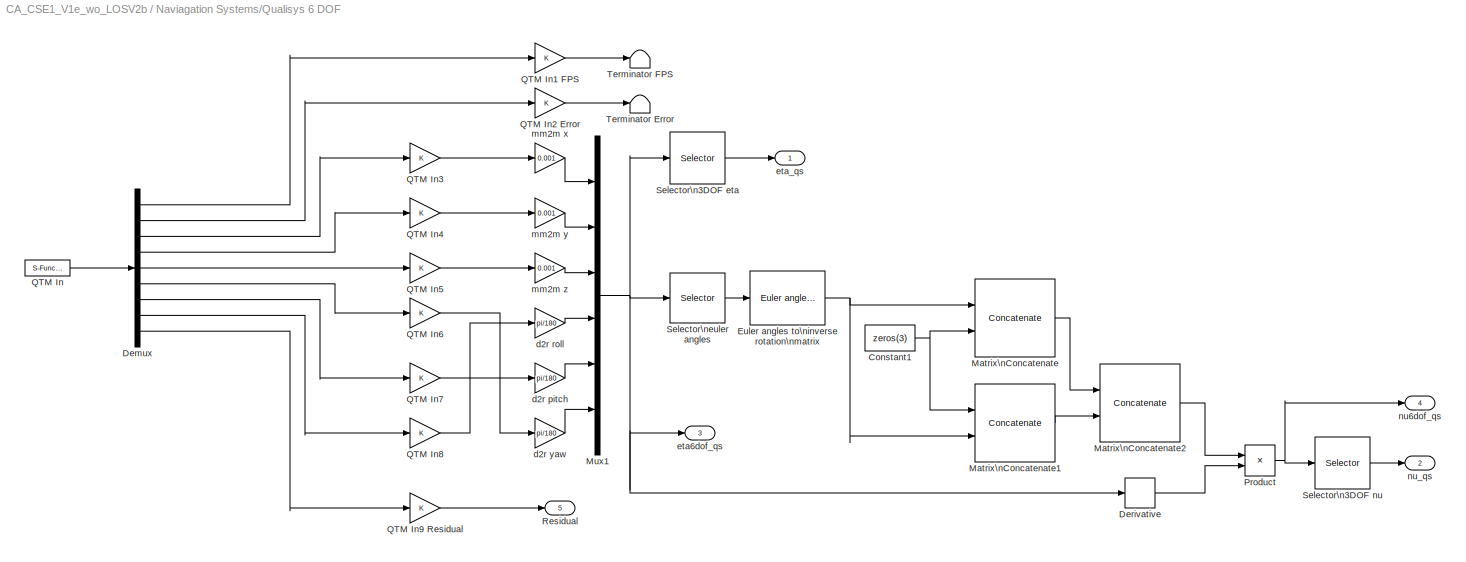
BLOCK [SubSystem] Naviagation Systems/Qualisys 6 DOF
  FunctionWithSeparateData = off
  MaskHideContents = off
  MinAlgLoopOccurrences = off
  Opaque = off
  Ports = [0, 5]
  PropExecContextOutsideSubsystem = off
  RTWSystemCode = Auto
  RequestExecContextInheritance = off
BLOCK [Constant] Naviagation Systems/Qualisys 6 DOF/Constant1
  Value = zeros(3)
BLOCK [Demux] Naviagation Systems/Qualisys 6 DOF/Demux
  DisplayOption = bar
  Outputs = 9
  Ports = [1, 9]
BLOCK [Derivative] Naviagation Systems/Qualisys 6 DOF/Derivative
BLOCK [Reference] Naviagation Systems/Qualisys 6 DOF/Euler angles to\ninverse rotation\nmatrix  REF=marine_gnc/Models/ Kinematics/Euler angles to\ninverse rotation\nmatrix  (lib defined in mdl_10d96c221ba8, mdl_45f1105420c6)
  FunctionWithSeparateData = off
  Ports = [1, 1]
  RTWMemSecDataConstants = Inherit from model
  RTWMemSecDataInternal = Inherit from model
  RTWMemSecDataParameters = Inherit from model
  RTWMemSecFuncExecute = Inherit from model
  RTWMemSecFuncInitTerm = Inherit from model
  ShowPortLabels = FromPortIcon
  SourceBlock = marine_gnc/Models/ Kinematics/Euler angles to\ninverse rotation\nmatrix
  SourceType = Rbn
  SystemSampleTime = -1
BLOCK [Concatenate] Naviagation Systems/Qualisys 6 DOF/Matrix\nConcatenate
  Mode = Multidimensional array
  Ports = [2, 1]
BLOCK [Concatenate] Naviagation Systems/Qualisys 6 DOF/Matrix\nConcatenate1
  Mode = Multidimensional array
  Ports = [2, 1]
BLOCK [Concatenate] Naviagation Systems/Qualisys 6 DOF/Matrix\nConcatenate2
  ConcatenateDimension = 2
  Mode = Multidimensional array
  Ports = [2, 1]
BLOCK [Mux] Naviagation Systems/Qualisys 6 DOF/Mux1
  DisplayOption = bar
  Inputs = 6
  Ports = [6, 1]
BLOCK [Product] Naviagation Systems/Qualisys 6 DOF/Product
  InputSameDT = off
  Multiplication = Matrix(*)
  OutDataTypeMode = Inherit via internal rule
  OutDataTypeStr = Inherit: Inherit via internal rule
  Ports = [2, 1]
  SaturateOnIntegerOverflow = off
BLOCK [S-Function] Naviagation Systems/Qualisys 6 DOF/QTM In
  CopyFcn = NI_SIT_IO_callbacks(1);
  DeleteFcn = NI_SIT_IO_callbacks(2);
  EnableBusSupport = off
  FunctionName = NI_SIT_IO
  MaskCallbackString = NI_SIT_IO_callbacks(3);|||NI_SIT_IO_callbacks(4);||
  MaskDescription = Use this inport on any level of nested subsystems to allow the LabVIEW Simulation Interface Toolkit to map hardware to it.
  MaskDisplay = patch([-x x], [-y y], [.90980 .81960 .32156]);\nplot([0 -x x 0], [rad -y y rad]);\nfprintf('SIT%d', portnum);
  MaskEnableString = on,on,on,on,on,on
  MaskIconFrame = off
  MaskIconOpaque = on
  MaskIconRotate = none
  MaskIconUnits = autoscale
  MaskInitialization = NI_SIT_IO_init;
  MaskPortRotate = default
  MaskPromptString = Port number:|Port dimensions (-1 for dynamically sized):|Sample time (-1 for inherited):|Data type:|Signal type:|Block type:
  MaskStyleString = edit,edit,edit,popup(auto|double|single|int8|uint8|int16|uint16|int32|uint32|boolean),popup(auto|real|complex),edit
  MaskTabNameString = Parameters,Parameters,Parameters,Parameters,Parameters,Parameters
  MaskToolTipString = on,on,on,on,on,on
  MaskTunableValueString = off,off,off,off,off,off
  MaskType = SIT Inport
  MaskValueString = 1|9|-1|auto|auto|1
  MaskVarAliasString = ,,,,,
  MaskVariables = portnum=@1;width=@2;stime=@3;dtype=@4;stype=@5;btype=@6;
  MaskVisibilityString = on,on,on,on,on,off
  Parameters = width dtype portnum stime stype btype
  Ports = [0, 1]
  Priority = 1
BLOCK [Gain] Naviagation Systems/Qualisys 6 DOF/QTM In1 FPS
  OutDataType = fixdt(1, 16)
  OutDataTypeMode = Inherit via internal rule
  OutDataTypeStr = Inherit: Inherit via internal rule
  OutScaling = 2^0
  ParamDataTypeStr = Inherit: Inherit via internal rule
  ParameterDataType = fixdt(1, 16)
  ParameterDataTypeMode = Inherit via internal rule
  ParameterScaling = 2^0
  SaturateOnIntegerOverflow = off
BLOCK [Gain] Naviagation Systems/Qualisys 6 DOF/QTM In2 Error
  OutDataType = fixdt(1, 16)
  OutDataTypeMode = Inherit via internal rule
  OutDataTypeStr = Inherit: Inherit via internal rule
  OutScaling = 2^0
  ParamDataTypeStr = Inherit: Inherit via internal rule
  ParameterDataType = fixdt(1, 16)
  ParameterDataTypeMode = Inherit via internal rule
  ParameterScaling = 2^0
  SaturateOnIntegerOverflow = off
BLOCK [Gain] Naviagation Systems/Qualisys 6 DOF/QTM In3
  OutDataType = fixdt(1, 16)
  OutDataTypeMode = Inherit via internal rule
  OutDataTypeStr = Inherit: Inherit via internal rule
  OutScaling = 2^0
  ParamDataTypeStr = Inherit: Inherit via internal rule
  ParameterDataType = fixdt(1, 16)
  ParameterDataTypeMode = Inherit via internal rule
  ParameterScaling = 2^0
  SaturateOnIntegerOverflow = off
BLOCK [Gain] Naviagation Systems/Qualisys 6 DOF/QTM In4
  OutDataType = fixdt(1, 16)
  OutDataTypeMode = Inherit via internal rule
  OutDataTypeStr = Inherit: Inherit via internal rule
  OutScaling = 2^0
  ParamDataTypeStr = Inherit: Inherit via internal rule
  ParameterDataType = fixdt(1, 16)
  ParameterDataTypeMode = Inherit via internal rule
  ParameterScaling = 2^0
  SaturateOnIntegerOverflow = off
BLOCK [Gain] Naviagation Systems/Qualisys 6 DOF/QTM In5
  OutDataType = fixdt(1, 16)
  OutDataTypeMode = Inherit via internal rule
  OutDataTypeStr = Inherit: Inherit via internal rule
  OutScaling = 2^0
  ParamDataTypeStr = Inherit: Inherit via internal rule
  ParameterDataType = fixdt(1, 16)
  ParameterDataTypeMode = Inherit via internal rule
  ParameterScaling = 2^0
  SaturateOnIntegerOverflow = off
BLOCK [Gain] Naviagation Systems/Qualisys 6 DOF/QTM In6
  OutDataType = fixdt(1, 16)
  OutDataTypeMode = Inherit via internal rule
  OutDataTypeStr = Inherit: Inherit via internal rule
  OutScaling = 2^0
  ParamDataTypeStr = Inherit: Inherit via internal rule
  ParameterDataType = fixdt(1, 16)
  ParameterDataTypeMode = Inherit via internal rule
  ParameterScaling = 2^0
  SaturateOnIntegerOverflow = off
BLOCK [Gain] Naviagation Systems/Qualisys 6 DOF/QTM In7
  OutDataType = fixdt(1, 16)
  OutDataTypeMode = Inherit via internal rule
  OutDataTypeStr = Inherit: Inherit via internal rule
  OutScaling = 2^0
  ParamDataTypeStr = Inherit: Inherit via internal rule
  ParameterDataType = fixdt(1, 16)
  ParameterDataTypeMode = Inherit via internal rule
  ParameterScaling = 2^0
  SaturateOnIntegerOverflow = off
BLOCK [Gain] Naviagation Systems/Qualisys 6 DOF/QTM In8
  OutDataType = fixdt(1, 16)
  OutDataTypeMode = Inherit via internal rule
  OutDataTypeStr = Inherit: Inherit via internal rule
  OutScaling = 2^0
  ParamDataTypeStr = Inherit: Inherit via internal rule
  ParameterDataType = fixdt(1, 16)
  ParameterDataTypeMode = Inherit via internal rule
  ParameterScaling = 2^0
  SaturateOnIntegerOverflow = off
BLOCK [Gain] Naviagation Systems/Qualisys 6 DOF/QTM In9 Residual
  OutDataType = fixdt(1, 16)
  OutDataTypeMode = Inherit via internal rule
  OutDataTypeStr = Inherit: Inherit via internal rule
  OutScaling = 2^0
  ParamDataTypeStr = Inherit: Inherit via internal rule
  ParameterDataType = fixdt(1, 16)
  ParameterDataTypeMode = Inherit via internal rule
  ParameterScaling = 2^0
  SaturateOnIntegerOverflow = off
BLOCK [Outport] Naviagation Systems/Qualisys 6 DOF/Residual
  IconDisplay = Port number
  Port = 5
BLOCK [Selector] Naviagation Systems/Qualisys 6 DOF/Selector\n3DOF eta
  IndexOptions = Index vector (dialog)
  Indices = [1 2 6]
  InputPortWidth = 6
  OutputSizes = 1
  Ports = [1, 1]
BLOCK [Selector] Naviagation Systems/Qualisys 6 DOF/Selector\n3DOF nu
  IndexOptions = Index vector (dialog)
  Indices = [1 2 6]
  InputPortWidth = 6
  OutputSizes = 1
  Ports = [1, 1]
BLOCK [Selector] Naviagation Systems/Qualisys 6 DOF/Selector\neuler angles
  IndexOptions = Index vector (dialog)
  Indices = [4 5 6]
  InputPortWidth = 6
  OutputSizes = 1
  Ports = [1, 1]
BLOCK [Terminator] Naviagation Systems/Qualisys 6 DOF/Terminator Error
BLOCK [Terminator] Naviagation Systems/Qualisys 6 DOF/Terminator FPS
BLOCK [Gain] Naviagation Systems/Qualisys 6 DOF/d2r pitch
  Gain = pi/180
  OutDataType = fixdt(1, 16)
  OutDataTypeMode = Inherit via internal rule
  OutDataTypeStr = Inherit: Inherit via internal rule
  OutScaling = 2^0
  ParamDataTypeStr = Inherit: Inherit via internal rule
  ParameterDataType = fixdt(1, 16)
  ParameterDataTypeMode = Inherit via internal rule
  ParameterScaling = 2^0
  SaturateOnIntegerOverflow = off
BLOCK [Gain] Naviagation Systems/Qualisys 6 DOF/d2r roll
  Gain = pi/180
  OutDataType = fixdt(1, 16)
  OutDataTypeMode = Inherit via internal rule
  OutDataTypeStr = Inherit: Inherit via internal rule
  OutScaling = 2^0
  ParamDataTypeStr = Inherit: Inherit via internal rule
  ParameterDataType = fixdt(1, 16)
  ParameterDataTypeMode = Inherit via internal rule
  ParameterScaling = 2^0
  SaturateOnIntegerOverflow = off
BLOCK [Gain] Naviagation Systems/Qualisys 6 DOF/d2r yaw
  Gain = pi/180
  OutDataType = fixdt(1, 16)
  OutDataTypeMode = Inherit via internal rule
  OutDataTypeStr = Inherit: Inherit via internal rule
  OutScaling = 2^0
  ParamDataTypeStr = Inherit: Inherit via internal rule
  ParameterDataType = fixdt(1, 16)
  ParameterDataTypeMode = Inherit via internal rule
  ParameterScaling = 2^0
  SaturateOnIntegerOverflow = off
BLOCK [Outport] Naviagation Systems/Qualisys 6 DOF/eta6dof_qs
  IconDisplay = Port number
  Port = 3
BLOCK [Outport] Naviagation Systems/Qualisys 6 DOF/eta_qs
  IconDisplay = Port number
BLOCK [Gain] Naviagation Systems/Qualisys 6 DOF/mm2m x
  Gain = 0.001
  OutDataTypeMode = Inherit via internal rule
  OutDataTypeStr = Inherit: Inherit via internal rule
  ParamDataTypeStr = Inherit: Inherit via internal rule
  ParameterDataTypeMode = Inherit via internal rule
  SaturateOnIntegerOverflow = off
BLOCK [Gain] Naviagation Systems/Qualisys 6 DOF/mm2m y
  Gain = 0.001
  OutDataTypeMode = Inherit via internal rule
  OutDataTypeStr = Inherit: Inherit via internal rule
  ParamDataTypeStr = Inherit: Inherit via internal rule
  ParameterDataTypeMode = Inherit via internal rule
  SaturateOnIntegerOverflow = off
BLOCK [Gain] Naviagation Systems/Qualisys 6 DOF/mm2m z
  Gain = 0.001
  OutDataTypeMode = Inherit via internal rule
  OutDataTypeStr = Inherit: Inherit via internal rule
  ParamDataTypeStr = Inherit: Inherit via internal rule
  ParameterDataTypeMode = Inherit via internal rule
  SaturateOnIntegerOverflow = off
BLOCK [Outport] Naviagation Systems/Qualisys 6 DOF/nu6dof_qs
  IconDisplay = Port number
  Port = 4
BLOCK [Outport] Naviagation Systems/Qualisys 6 DOF/nu_qs
  IconDisplay = Port number
  Port = 2
BLOCK [Outport] Naviagation Systems/Residual
  IconDisplay = Port number
  Port = 3
BLOCK [Terminator] Naviagation Systems/Terminator
BLOCK [Terminator] Naviagation Systems/Terminator1
BLOCK [Outport] Naviagation Systems/eta
  IconDisplay = Port number
BLOCK [Inport] Naviagation Systems/eta_hil
  IconDisplay = Port number
BLOCK [Gain] Naviagation Systems/eta_surge
  OutDataType = fixdt(1, 16)
  OutDataTypeMode = Inherit via internal rule
  OutDataTypeStr = Inherit: Inherit via internal rule
  OutScaling = 2^0
  ParamDataTypeStr = Inherit: Inherit via internal rule
  ParameterDataType = fixdt(1, 16)
  ParameterDataTypeMode = Inherit via internal rule
  ParameterScaling = 2^0
  SaturateOnIntegerOverflow = off
BLOCK [Gain] Naviagation Systems/eta_sway
  OutDataType = fixdt(1, 16)
  OutDataTypeMode = Inherit via internal rule
  OutDataTypeStr = Inherit: Inherit via internal rule
  OutScaling = 2^0
  ParamDataTypeStr = Inherit: Inherit via internal rule
  ParameterDataType = fixdt(1, 16)
  ParameterDataTypeMode = Inherit via internal rule
  ParameterScaling = 2^0
  SaturateOnIntegerOverflow = off
BLOCK [Gain] Naviagation Systems/eta_yaw
  OutDataType = fixdt(1, 16)
  OutDataTypeMode = Inherit via internal rule
  OutDataTypeStr = Inherit: Inherit via internal rule
  OutScaling = 2^0
  ParamDataTypeStr = Inherit: Inherit via internal rule
  ParameterDataType = fixdt(1, 16)
  ParameterDataTypeMode = Inherit via internal rule
  ParameterScaling = 2^0
  SaturateOnIntegerOverflow = off
BLOCK [Outport] Naviagation Systems/nu
  IconDisplay = Port number
  Port = 2
BLOCK [Inport] Naviagation Systems/nu_hil
  IconDisplay = Port number
  Port = 2
BLOCK [Gain] Naviagation Systems/nu_surge
  OutDataType = fixdt(1, 16)
  OutDataTypeMode = Inherit via internal rule
  OutDataTypeStr = Inherit: Inherit via internal rule
  OutScaling = 2^0
  ParamDataTypeStr = Inherit: Inherit via internal rule
  ParameterDataType = fixdt(1, 16)
  ParameterDataTypeMode = Inherit via internal rule
  ParameterScaling = 2^0
  SaturateOnIntegerOverflow = off
BLOCK [Gain] Naviagation Systems/nu_sway
  OutDataType = fixdt(1, 16)
  OutDataTypeMode = Inherit via internal rule
  OutDataTypeStr = Inherit: Inherit via internal rule
  OutScaling = 2^0
  ParamDataTypeStr = Inherit: Inherit via internal rule
  ParameterDataType = fixdt(1, 16)
  ParameterDataTypeMode = Inherit via internal rule
  ParameterScaling = 2^0
  SaturateOnIntegerOverflow = off
BLOCK [Gain] Naviagation Systems/nu_yaw
  OutDataType = fixdt(1, 16)
  OutDataTypeMode = Inherit via internal rule
  OutDataTypeStr = Inherit: Inherit via internal rule
  OutScaling = 2^0
  ParamDataTypeStr = Inherit: Inherit via internal rule
  ParameterDataType = fixdt(1, 16)
  ParameterDataTypeMode = Inherit via internal rule
  ParameterScaling = 2^0
  SaturateOnIntegerOverflow = off
BLOCK [SubSystem] Plants
  FunctionWithSeparateData = off
  MaskHideContents = off
  MinAlgLoopOccurrences = off
  Opaque = off
  Ports = [1, 2]
  PropExecContextOutsideSubsystem = off
  RTWSystemCode = Auto
  RequestExecContextInheritance = off
BLOCK [Gain] Plants/BT power limit plant
  OutDataType = fixdt(1, 16)
  OutDataTypeMode = Inherit via internal rule
  OutDataTypeStr = Inherit: Inherit via internal rule
  OutScaling = 2^0
  ParamDataTypeStr = Inherit: Inherit via internal rule
  ParameterDataType = fixdt(1, 16)
  ParameterDataTypeMode = Inherit via internal rule
  ParameterScaling = 2^0
  SaturateOnIntegerOverflow = off
BLOCK [SubSystem] Plants/CSE1
  FunctionWithSeparateData = off
  MaskHideContents = off
  MinAlgLoopOccurrences = off
  Opaque = off
  Ports = [1, 0, 1]
  PropExecContextOutsideSubsystem = off
  RTWSystemCode = Auto
  RequestExecContextInheritance = off
BLOCK [SubSystem] Plants/CSE1/Bow Thruster
  FunctionWithSeparateData = off
  MaskHideContents = off
  MinAlgLoopOccurrences = off
  Opaque = off
  Ports = [2]
  PropExecContextOutsideSubsystem = off
  RTWSystemCode = Auto
  RequestExecContextInheritance = off
BLOCK [Sum] Plants/CSE1/Bow Thruster/Add
  InputSameDT = off
  Inputs = +++
  OutDataTypeMode = Inherit via internal rule
  OutDataTypeStr = Inherit: Inherit via internal rule
  Ports = [3, 1]
  SaturateOnIntegerOverflow = off
BLOCK [Gain] Plants/CSE1/Bow Thruster/BT_D_Gain1
  Gain = 0.02
  OutDataTypeMode = Inherit via internal rule
  OutDataTypeStr = Inherit: Inherit via internal rule
  ParamDataTypeStr = Inherit: Inherit via internal rule
  ParameterDataTypeMode = Inherit via internal rule
  SaturateOnIntegerOverflow = off
BLOCK [Gain] Plants/CSE1/Bow Thruster/BT_D_Gain2
  Gain = 0.02
  OutDataTypeMode = Inherit via internal rule
  OutDataTypeStr = Inherit: Inherit via internal rule
  ParamDataTypeStr = Inherit: Inherit via internal rule
  ParameterDataTypeMode = Inherit via internal rule
  SaturateOnIntegerOverflow = off
BLOCK [Gain] Plants/CSE1/Bow Thruster/BT_L_Gain1
  Gain = 0.02
  OutDataTypeMode = Inherit via internal rule
  OutDataTypeStr = Inherit: Inherit via internal rule
  ParamDataTypeStr = Inherit: Inherit via internal rule
  ParameterDataTypeMode = Inherit via internal rule
  SaturateOnIntegerOverflow = off
BLOCK [Gain] Plants/CSE1/Bow Thruster/BT_L_Gain2
  Gain = -0.02
  OutDataTypeMode = Inherit via internal rule
  OutDataTypeStr = Inherit: Inherit via internal rule
  ParamDataTypeStr = Inherit: Inherit via internal rule
  ParameterDataTypeMode = Inherit via internal rule
  SaturateOnIntegerOverflow = off
BLOCK [Constant] Plants/CSE1/Bow Thruster/BT_Power_Offset1
  Value = 0.05
BLOCK [Constant] Plants/CSE1/Bow Thruster/BT_Power_Offset2
  Value = 0.05
BLOCK [Constant] Plants/CSE1/Bow Thruster/BT_Power_Offset3
  Value = 0.05
BLOCK [Inport] Plants/CSE1/Bow Thruster/Bow Thruster Direction u_5
  IconDisplay = Port number
BLOCK [Inport] Plants/CSE1/Bow Thruster/Bow Thruster Power
  IconDisplay = Port number
  Port = 2
BLOCK [Constant] Plants/CSE1/Bow Thruster/Constant
  OutDataType = fixdt(1, 16)
  OutScaling = 2^0
  Value = 0
BLOCK [Constant] Plants/CSE1/Bow Thruster/Constant1
  OutDataType = fixdt(1, 16)
  OutScaling = 2^0
  Value = 0
BLOCK [Gain] Plants/CSE1/Bow Thruster/Neg
  Gain = -1
  OutDataType = fixdt(1, 16)
  OutDataTypeMode = Inherit via internal rule
  OutDataTypeStr = Inherit: Inherit via internal rule
  OutScaling = 2^0
  ParamDataTypeStr = Inherit: Inherit via internal rule
  ParameterDataType = fixdt(1, 16)
  ParameterDataTypeMode = Inherit via internal rule
  ParameterScaling = 2^0
  SaturateOnIntegerOverflow = off
BLOCK [S-Function] Plants/CSE1/Bow Thruster/SIT Out5 BT
  CopyFcn = NI_SIT_IO_callbacks(1);
  DeleteFcn = NI_SIT_IO_callbacks(2);
  EnableBusSupport = off
  FunctionName = NI_SIT_IO
  MaskCallbackString = NI_SIT_IO_callbacks(3);|||NI_SIT_IO_callbacks(4);||
  MaskDescription = Use this outport on any level of nested subsystems to allow the LabVIEW Simulation Interface Toolkit to map hardware to it.
  MaskDisplay = patch([-x x], [-y y], [.90980 .81960 .32156]);\nplot([0 -x x 0], [rad -y y rad]);\nfprintf('SIT%d', portnum);
  MaskEnableString = on,on,on,on,on,on
  MaskIconFrame = off
  MaskIconOpaque = on
  MaskIconRotate = none
  MaskIconUnits = autoscale
  MaskInitialization = NI_SIT_IO_init;
  MaskPortRotate = default
  MaskPromptString = Port number:|Port dimensions (-1 for dynamically sized):|Sample time (-1 for inherited):|Data type:|Signal type:|Block type:
  MaskStyleString = edit,edit,edit,popup(auto|double|single|int8|uint8|int16|uint16|int32|uint32|boolean),popup(auto|real|complex),edit
  MaskTabNameString = Parameters,Parameters,Parameters,Parameters,Parameters,Parameters
  MaskToolTipString = on,on,on,on,on,on
  MaskTunableValueString = off,off,off,off,off,off
  MaskType = SIT Outport
  MaskValueString = 1|-1|-1|auto|auto|0
  MaskVarAliasString = ,,,,,
  MaskVariables = portnum=@1;width=@2;stime=@3;dtype=@4;stype=@5;btype=@6;
  MaskVisibilityString = on,on,on,on,on,off
  Parameters = width dtype portnum stime stype btype
  Ports = [1]
  Priority = 1
BLOCK [Reference] Plants/CSE1/Bow Thruster/Saturation\nDynamic  REF=simulink/Discontinuities/Saturation\nDynamic
  DoSatur = off
  FunctionWithSeparateData = off
  LockScale = off
  OutDataType = fixdt(1, 16)
  OutDataTypeStr = Inherit: Same as second input
  OutMax = []
  OutMin = []
  OutScaling = 2^-10
  OutputDataTypeScalingMode = Same as second input
  Ports = [3, 1]
  RTWMemSecDataConstants = Inherit from model
  RTWMemSecDataInternal = Inherit from model
  RTWMemSecDataParameters = Inherit from model
  RTWMemSecFuncExecute = Inherit from model
  RTWMemSecFuncInitTerm = Inherit from model
  RndMeth = Floor
  ShowPortLabels = FromPortIcon
  SourceBlock = simulink/Discontinuities/Saturation\nDynamic
  SourceType = Saturation Dynamic
  SystemSampleTime = -1
BLOCK [Reference] Plants/CSE1/Bow Thruster/Saturation\nDynamic1  REF=simulink/Discontinuities/Saturation\nDynamic
  DoSatur = off
  FunctionWithSeparateData = off
  LockScale = off
  OutDataType = fixdt(1, 16)
  OutDataTypeStr = Inherit: Same as second input
  OutMax = []
  OutMin = []
  OutScaling = 2^-10
  OutputDataTypeScalingMode = Same as second input
  Ports = [3, 1]
  RTWMemSecDataConstants = Inherit from model
  RTWMemSecDataInternal = Inherit from model
  RTWMemSecDataParameters = Inherit from model
  RTWMemSecFuncExecute = Inherit from model
  RTWMemSecFuncInitTerm = Inherit from model
  RndMeth = Floor
  ShowPortLabels = FromPortIcon
  SourceBlock = simulink/Discontinuities/Saturation\nDynamic
  SourceType = Saturation Dynamic
  SystemSampleTime = -1
BLOCK [Reference] Plants/CSE1/Bow Thruster/Saturation\nDynamic2  REF=simulink/Discontinuities/Saturation\nDynamic
  DoSatur = off
  FunctionWithSeparateData = off
  LockScale = off
  OutDataType = fixdt(1, 16)
  OutDataTypeStr = Inherit: Same as second input
  OutMax = []
  OutMin = []
  OutScaling = 2^-10
  OutputDataTypeScalingMode = Same as second input
  Ports = [3, 1]
  RTWMemSecDataConstants = Inherit from model
  RTWMemSecDataInternal = Inherit from model
  RTWMemSecDataParameters = Inherit from model
  RTWMemSecFuncExecute = Inherit from model
  RTWMemSecFuncInitTerm = Inherit from model
  RndMeth = Floor
  ShowPortLabels = FromPortIcon
  SourceBlock = simulink/Discontinuities/Saturation\nDynamic
  SourceType = Saturation Dynamic
  SystemSampleTime = -1
BLOCK [Sum] Plants/CSE1/Bow Thruster/Sum1
  IconShape = round
  InputSameDT = off
  Inputs = |++
  OutDataTypeMode = Inherit via internal rule
  OutDataTypeStr = Inherit: Inherit via internal rule
  Ports = [2, 1]
  SaturateOnIntegerOverflow = off
BLOCK [Sum] Plants/CSE1/Bow Thruster/Sum2
  IconShape = round
  InputSameDT = off
  Inputs = |++
  OutDataTypeMode = Inherit via internal rule
  OutDataTypeStr = Inherit: Inherit via internal rule
  Ports = [2, 1]
  SaturateOnIntegerOverflow = off
BLOCK [Terminator] Plants/CSE1/Bow Thruster/Terminator
BLOCK [Terminator] Plants/CSE1/Bow Thruster/Terminator1
BLOCK [Gain] Plants/CSE1/CSE1 tau_surge
  OutDataType = fixdt(1, 16)
  OutDataTypeMode = Inherit via internal rule
  OutDataTypeStr = Inherit: Inherit via internal rule
  OutScaling = 2^0
  ParamDataTypeStr = Inherit: Inherit via internal rule
  ParameterDataType = fixdt(1, 16)
  ParameterDataTypeMode = Inherit via internal rule
  ParameterScaling = 2^0
  SaturateOnIntegerOverflow = off
BLOCK [Gain] Plants/CSE1/CSE1 tau_sway
  OutDataType = fixdt(1, 16)
  OutDataTypeMode = Inherit via internal rule
  OutDataTypeStr = Inherit: Inherit via internal rule
  OutScaling = 2^0
  ParamDataTypeStr = Inherit: Inherit via internal rule
  ParameterDataType = fixdt(1, 16)
  ParameterDataTypeMode = Inherit via internal rule
  ParameterScaling = 2^0
  SaturateOnIntegerOverflow = off
BLOCK [Gain] Plants/CSE1/CSE1 tau_yaw
  OutDataType = fixdt(1, 16)
  OutDataTypeMode = Inherit via internal rule
  OutDataTypeStr = Inherit: Inherit via internal rule
  OutScaling = 2^0
  ParamDataTypeStr = Inherit: Inherit via internal rule
  ParameterDataType = fixdt(1, 16)
  ParameterDataTypeMode = Inherit via internal rule
  ParameterScaling = 2^0
  SaturateOnIntegerOverflow = off
BLOCK [Demux] Plants/CSE1/Demux
  DisplayOption = bar
  Outputs = 7
  Ports = [1, 7]
BLOCK [Demux] Plants/CSE1/Demux1
  DisplayOption = bar
  Outputs = 3
  Ports = [1, 3]
BLOCK [EnablePort] Plants/CSE1/Enable
  Ports = []
  StatesWhenEnabling = reset
BLOCK [SubSystem] Plants/CSE1/K_e
  FunctionWithSeparateData = off
  MaskHideContents = off
  MinAlgLoopOccurrences = off
  Opaque = off
  Ports = [0, 1]
  PropExecContextOutsideSubsystem = off
  RTWSystemCode = Auto
  RequestExecContextInheritance = off
BLOCK [Constant] Plants/CSE1/K_e/Constant
  OutDataType = fixdt(1, 16)
  OutScaling = 2^0
  Value = 0
BLOCK [Gain] Plants/CSE1/K_e/Gain K_e1_CSE1
  OutDataType = fixdt(1, 16)
  OutDataTypeMode = Inherit via internal rule
  OutDataTypeStr = Inherit: Inherit via internal rule
  OutScaling = 2^0
  ParamDataTypeStr = Inherit: Inherit via internal rule
  ParameterDataType = fixdt(1, 16)
  ParameterDataTypeMode = Inherit via internal rule
  ParameterScaling = 2^0
  SaturateOnIntegerOverflow = off
BLOCK [Gain] Plants/CSE1/K_e/Gain K_e2_CSE1
  OutDataType = fixdt(1, 16)
  OutDataTypeMode = Inherit via internal rule
  OutDataTypeStr = Inherit: Inherit via internal rule
  OutScaling = 2^0
  ParamDataTypeStr = Inherit: Inherit via internal rule
  ParameterDataType = fixdt(1, 16)
  ParameterDataTypeMode = Inherit via internal rule
  ParameterScaling = 2^0
  SaturateOnIntegerOverflow = off
BLOCK [Gain] Plants/CSE1/K_e/Gain K_e3_CSE1
  OutDataType = fixdt(1, 16)
  OutDataTypeMode = Inherit via internal rule
  OutDataTypeStr = Inherit: Inherit via internal rule
  OutScaling = 2^0
  ParamDataTypeStr = Inherit: Inherit via internal rule
  ParameterDataType = fixdt(1, 16)
  ParameterDataTypeMode = Inherit via internal rule
  ParameterScaling = 2^0
  SaturateOnIntegerOverflow = off
BLOCK [Gain] Plants/CSE1/K_e/Gain K_e4_CSE1
  OutDataType = fixdt(1, 16)
  OutDataTypeMode = Inherit via internal rule
  OutDataTypeStr = Inherit: Inherit via internal rule
  OutScaling = 2^0
  ParamDataTypeStr = Inherit: Inherit via internal rule
  ParameterDataType = fixdt(1, 16)
  ParameterDataTypeMode = Inherit via internal rule
  ParameterScaling = 2^0
  SaturateOnIntegerOverflow = off
BLOCK [Gain] Plants/CSE1/K_e/Gain K_e5_CSE1
  OutDataType = fixdt(1, 16)
  OutDataTypeMode = Inherit via internal rule
  OutDataTypeStr = Inherit: Inherit via internal rule
  OutScaling = 2^0
  ParamDataTypeStr = Inherit: Inherit via internal rule
  ParameterDataType = fixdt(1, 16)
  ParameterDataTypeMode = Inherit via internal rule
  ParameterScaling = 2^0
  SaturateOnIntegerOverflow = off
BLOCK [Outport] Plants/CSE1/K_e/K_e
  IconDisplay = Port number
  OutDataType = fixdt(1, 16)
  OutScaling = 2^0
BLOCK [Constant] Plants/CSE1/K_e/K_e1_CSE1
  OutDataType = fixdt(1, 16)
  OutScaling = 2^0
BLOCK [Constant] Plants/CSE1/K_e/K_e2_CSE1
  OutDataType = fixdt(1, 16)
  OutScaling = 2^0
BLOCK [Constant] Plants/CSE1/K_e/K_e3_CSE1
  OutDataType = fixdt(1, 16)
  OutScaling = 2^0
BLOCK [Constant] Plants/CSE1/K_e/K_e4_CSE1
  OutDataType = fixdt(1, 16)
  OutScaling = 2^0
BLOCK [Constant] Plants/CSE1/K_e/K_e5_CSE1
  OutDataType = fixdt(1, 16)
  OutScaling = 2^0
BLOCK [Mux] Plants/CSE1/K_e/Mux12
  DisplayOption = bar
  Inputs = 25
  Ports = [25, 1]
BLOCK [Reshape] Plants/CSE1/K_e/Thruster Gain matrix
  OutputDimensionality = Customize
  OutputDimensions = [5,5]
  Ports = [1, 1]
BLOCK [Mux] Plants/CSE1/Mux
  DisplayOption = bar
  Inputs = 5
  Ports = [5, 1]
BLOCK [SubSystem] Plants/CSE1/T_e
  FunctionWithSeparateData = off
  MaskHideContents = off
  MinAlgLoopOccurrences = off
  Opaque = off
  Ports = [0, 1]
  PropExecContextOutsideSubsystem = off
  RTWSystemCode = Auto
  RequestExecContextInheritance = off
BLOCK [Gain] Plants/CSE1/T_e/-l_x1
  Gain = -1
  OutDataTypeMode = Inherit via internal rule
  OutDataTypeStr = Inherit: Inherit via internal rule
  ParamDataTypeStr = Inherit: Inherit via internal rule
  ParameterDataTypeMode = Inherit via internal rule
  SaturateOnIntegerOverflow = off
BLOCK [Gain] Plants/CSE1/T_e/-l_x2
  Gain = -1
  OutDataTypeMode = Inherit via internal rule
  OutDataTypeStr = Inherit: Inherit via internal rule
  ParamDataTypeStr = Inherit: Inherit via internal rule
  ParameterDataTypeMode = Inherit via internal rule
  SaturateOnIntegerOverflow = off
BLOCK [Gain] Plants/CSE1/T_e/-l_y2
  Gain = -1
  OutDataTypeMode = Inherit via internal rule
  OutDataTypeStr = Inherit: Inherit via internal rule
  ParamDataTypeStr = Inherit: Inherit via internal rule
  ParameterDataTypeMode = Inherit via internal rule
  SaturateOnIntegerOverflow = off
BLOCK [Reshape] Plants/CSE1/T_e/3x5
  OutputDimensionality = Customize
  OutputDimensions = [3,5]
  Ports = [1, 1]
BLOCK [Mux] Plants/CSE1/T_e/Mux
  DisplayOption = bar
  Inputs = 15
  Ports = [15, 1]
BLOCK [Outport] Plants/CSE1/T_e/T_e
  IconDisplay = Port number
BLOCK [Constant] Plants/CSE1/T_e/T_e11
BLOCK [Constant] Plants/CSE1/T_e/T_e12
  Value = 0
BLOCK [Constant] Plants/CSE1/T_e/T_e13
BLOCK [Constant] Plants/CSE1/T_e/T_e14
  Value = 0
BLOCK [Constant] Plants/CSE1/T_e/T_e15
  Value = 0
BLOCK [Constant] Plants/CSE1/T_e/T_e21
  Value = 0
BLOCK [Constant] Plants/CSE1/T_e/T_e22
BLOCK [Constant] Plants/CSE1/T_e/T_e23
  Value = 0
BLOCK [Constant] Plants/CSE1/T_e/T_e24
BLOCK [Constant] Plants/CSE1/T_e/T_e25
BLOCK [Constant] Plants/CSE1/T_e/l_x1
  Value = 0.425
BLOCK [Constant] Plants/CSE1/T_e/l_x2
  Value = 0.425
BLOCK [Constant] Plants/CSE1/T_e/l_x3
  Value = 0.425
BLOCK [Constant] Plants/CSE1/T_e/l_y1
  Value = 0.055
BLOCK [Constant] Plants/CSE1/T_e/l_y2
  Value = 0.055
BLOCK [Terminator] Plants/CSE1/Terminator
BLOCK [Terminator] Plants/CSE1/Terminator1
BLOCK [Terminator] Plants/CSE1/Terminator2
BLOCK [Inport] Plants/CSE1/Thruster_Commands
  IconDisplay = Port number
BLOCK [SubSystem] Plants/CSE1/Voith Schneider Propeller 
  FunctionWithSeparateData = off
  MaskHideContents = off
  MinAlgLoopOccurrences = off
  Opaque = off
  Ports = [5]
  PropExecContextOutsideSubsystem = off
  RTWSystemCode = Auto
  RequestExecContextInheritance = off
BLOCK [Gain] Plants/CSE1/Voith Schneider Propeller /-x
  Gain = -1
  OutDataTypeMode = Inherit via internal rule
  OutDataTypeStr = Inherit: Inherit via internal rule
  ParamDataTypeStr = Inherit: Inherit via internal rule
  ParameterDataTypeMode = Inherit via internal rule
  SaturateOnIntegerOverflow = off
BLOCK [Gain] Plants/CSE1/Voith Schneider Propeller /-y
  Gain = -1
  OutDataTypeMode = Inherit via internal rule
  OutDataTypeStr = Inherit: Inherit via internal rule
  ParamDataTypeStr = Inherit: Inherit via internal rule
  ParameterDataTypeMode = Inherit via internal rule
  SaturateOnIntegerOverflow = off
BLOCK [Reference] Plants/CSE1/Voith Schneider Propeller /Cartesian to\nPolar Port  REF=simulink_extras/Transformations/Cartesian to\nPolar
  FunctionWithSeparateData = off
  Ports = [2, 2]
  RTWMemSecDataConstants = Inherit from model
  RTWMemSecDataInternal = Inherit from model
  RTWMemSecDataParameters = Inherit from model
  RTWMemSecFuncExecute = Inherit from model
  RTWMemSecFuncInitTerm = Inherit from model
  ShowPortLabels = FromPortIcon
  SourceBlock = simulink_extras/Transformations/Cartesian to\nPolar
  SourceType = Cart2Polar
  SystemSampleTime = -1
BLOCK [Reference] Plants/CSE1/Voith Schneider Propeller /Cartesian to\nPolar Starboard  REF=simulink_extras/Transformations/Cartesian to\nPolar
  FunctionWithSeparateData = off
  Ports = [2, 2]
  RTWMemSecDataConstants = Inherit from model
  RTWMemSecDataInternal = Inherit from model
  RTWMemSecDataParameters = Inherit from model
  RTWMemSecFuncExecute = Inherit from model
  RTWMemSecFuncInitTerm = Inherit from model
  ShowPortLabels = FromPortIcon
  SourceBlock = simulink_extras/Transformations/Cartesian to\nPolar
  SourceType = Cart2Polar
  SystemSampleTime = -1
BLOCK [Terminator] Plants/CSE1/Voith Schneider Propeller /Direction port VSP
BLOCK [Terminator] Plants/CSE1/Voith Schneider Propeller /Direction starboard VSP1
BLOCK [Terminator] Plants/CSE1/Voith Schneider Propeller /Pitch magnitude port VSP
BLOCK [Terminator] Plants/CSE1/Voith Schneider Propeller /Pitch magnitude starboard VSP1
BLOCK [Inport] Plants/CSE1/Voith Schneider Propeller /Port VSP x u_2
  IconDisplay = Port number
  Port = 2
BLOCK [Inport] Plants/CSE1/Voith Schneider Propeller /Port VSP y u_1
  IconDisplay = Port number
BLOCK [Product] Plants/CSE1/Voith Schneider Propeller /Product1
  InputSameDT = off
  OutDataTypeMode = Inherit via internal rule
  OutDataTypeStr = Inherit: Inherit via internal rule
  Ports = [2, 1]
  SaturateOnIntegerOverflow = off
BLOCK [Product] Plants/CSE1/Voith Schneider Propeller /Product2
  InputSameDT = off
  OutDataTypeMode = Inherit via internal rule
  OutDataTypeStr = Inherit: Inherit via internal rule
  Ports = [2, 1]
  SaturateOnIntegerOverflow = off
BLOCK [Product] Plants/CSE1/Voith Schneider Propeller /Product3
  InputSameDT = off
  OutDataTypeMode = Inherit via internal rule
  OutDataTypeStr = Inherit: Inherit via internal rule
  Ports = [2, 1]
  SaturateOnIntegerOverflow = off
BLOCK [Product] Plants/CSE1/Voith Schneider Propeller /Product4
  InputSameDT = off
  OutDataTypeMode = Inherit via internal rule
  OutDataTypeStr = Inherit: Inherit via internal rule
  Ports = [2, 1]
  SaturateOnIntegerOverflow = off
BLOCK [Reference] Plants/CSE1/Voith Schneider Propeller /Radians\nto Degrees\nPort  REF=simulink_extras/Transformations/Radians\nto Degrees
  FunctionWithSeparateData = off
  Ports = [1, 1]
  RTWMemSecDataConstants = Inherit from model
  RTWMemSecDataInternal = Inherit from model
  RTWMemSecDataParameters = Inherit from model
  RTWMemSecFuncExecute = Inherit from model
  RTWMemSecFuncInitTerm = Inherit from model
  ShowPortLabels = FromPortIcon
  SourceBlock = simulink_extras/Transformations/Radians\nto Degrees
  SourceType = RadiansToDegrees
  SystemSampleTime = -1
BLOCK [Reference] Plants/CSE1/Voith Schneider Propeller /Radians\nto Degrees\nStaroard  REF=simulink_extras/Transformations/Radians\nto Degrees
  FunctionWithSeparateData = off
  Ports = [1, 1]
  RTWMemSecDataConstants = Inherit from model
  RTWMemSecDataInternal = Inherit from model
  RTWMemSecDataParameters = Inherit from model
  RTWMemSecFuncExecute = Inherit from model
  RTWMemSecFuncInitTerm = Inherit from model
  ShowPortLabels = FromPortIcon
  SourceBlock = simulink_extras/Transformations/Radians\nto Degrees
  SourceType = RadiansToDegrees
  SystemSampleTime = -1
BLOCK [S-Function] Plants/CSE1/Voith Schneider Propeller /SIT Out1 Servo1
  CopyFcn = NI_SIT_IO_callbacks(1);
  DeleteFcn = NI_SIT_IO_callbacks(2);
  EnableBusSupport = off
  FunctionName = NI_SIT_IO
  MaskCallbackString = NI_SIT_IO_callbacks(3);|||NI_SIT_IO_callbacks(4);||
  MaskDescription = Use this outport on any level of nested subsystems to allow the LabVIEW Simulation Interface Toolkit to map hardware to it.
  MaskDisplay = patch([-x x], [-y y], [.90980 .81960 .32156]);\nplot([0 -x x 0], [rad -y y rad]);\nfprintf('SIT%d', portnum);
  MaskEnableString = on,on,on,on,on,on
  MaskIconFrame = off
  MaskIconOpaque = on
  MaskIconRotate = none
  MaskIconUnits = autoscale
  MaskInitialization = NI_SIT_IO_init;
  MaskPortRotate = default
  MaskPromptString = Port number:|Port dimensions (-1 for dynamically sized):|Sample time (-1 for inherited):|Data type:|Signal type:|Block type:
  MaskStyleString = edit,edit,edit,popup(auto|double|single|int8|uint8|int16|uint16|int32|uint32|boolean),popup(auto|real|complex),edit
  MaskTabNameString = Parameters,Parameters,Parameters,Parameters,Parameters,Parameters
  MaskToolTipString = on,on,on,on,on,on
  MaskTunableValueString = off,off,off,off,off,off
  MaskType = SIT Outport
  MaskValueString = 1|-1|-1|auto|auto|0
  MaskVarAliasString = ,,,,,
  MaskVariables = portnum=@1;width=@2;stime=@3;dtype=@4;stype=@5;btype=@6;
  MaskVisibilityString = on,on,on,on,on,off
  Parameters = width dtype portnum stime stype btype
  Ports = [1]
  Priority = 1
BLOCK [S-Function] Plants/CSE1/Voith Schneider Propeller /SIT Out2 Servo2
  CopyFcn = NI_SIT_IO_callbacks(1);
  DeleteFcn = NI_SIT_IO_callbacks(2);
  EnableBusSupport = off
  FunctionName = NI_SIT_IO
  MaskCallbackString = NI_SIT_IO_callbacks(3);|||NI_SIT_IO_callbacks(4);||
  MaskDescription = Use this outport on any level of nested subsystems to allow the LabVIEW Simulation Interface Toolkit to map hardware to it.
  MaskDisplay = patch([-x x], [-y y], [.90980 .81960 .32156]);\nplot([0 -x x 0], [rad -y y rad]);\nfprintf('SIT%d', portnum);
  MaskEnableString = on,on,on,on,on,on
  MaskIconFrame = off
  MaskIconOpaque = on
  MaskIconRotate = none
  MaskIconUnits = autoscale
  MaskInitialization = NI_SIT_IO_init;
  MaskPortRotate = default
  MaskPromptString = Port number:|Port dimensions (-1 for dynamically sized):|Sample time (-1 for inherited):|Data type:|Signal type:|Block type:
  MaskStyleString = edit,edit,edit,popup(auto|double|single|int8|uint8|int16|uint16|int32|uint32|boolean),popup(auto|real|complex),edit
  MaskTabNameString = Parameters,Parameters,Parameters,Parameters,Parameters,Parameters
  MaskToolTipString = on,on,on,on,on,on
  MaskTunableValueString = off,off,off,off,off,off
  MaskType = SIT Outport
  MaskValueString = 2|-1|-1|auto|auto|0
  MaskVarAliasString = ,,,,,
  MaskVariables = portnum=@1;width=@2;stime=@3;dtype=@4;stype=@5;btype=@6;
  MaskVisibilityString = on,on,on,on,on,off
  Parameters = width dtype portnum stime stype btype
  Ports = [1]
  Priority = 2
BLOCK [S-Function] Plants/CSE1/Voith Schneider Propeller /SIT Out3 Servo3
  CopyFcn = NI_SIT_IO_callbacks(1);
  DeleteFcn = NI_SIT_IO_callbacks(2);
  EnableBusSupport = off
  FunctionName = NI_SIT_IO
  MaskCallbackString = NI_SIT_IO_callbacks(3);|||NI_SIT_IO_callbacks(4);||
  MaskDescription = Use this outport on any level of nested subsystems to allow the LabVIEW Simulation Interface Toolkit to map hardware to it.
  MaskDisplay = patch([-x x], [-y y], [.90980 .81960 .32156]);\nplot([0 -x x 0], [rad -y y rad]);\nfprintf('SIT%d', portnum);
  MaskEnableString = on,on,on,on,on,on
  MaskIconFrame = off
  MaskIconOpaque = on
  MaskIconRotate = none
  MaskIconUnits = autoscale
  MaskInitialization = NI_SIT_IO_init;
  MaskPortRotate = default
  MaskPromptString = Port number:|Port dimensions (-1 for dynamically sized):|Sample time (-1 for inherited):|Data type:|Signal type:|Block type:
  MaskStyleString = edit,edit,edit,popup(auto|double|single|int8|uint8|int16|uint16|int32|uint32|boolean),popup(auto|real|complex),edit
  MaskTabNameString = Parameters,Parameters,Parameters,Parameters,Parameters,Parameters
  MaskToolTipString = on,on,on,on,on,on
  MaskTunableValueString = off,off,off,off,off,off
  MaskType = SIT Outport
  MaskValueString = 3|-1|-1|auto|auto|0
  MaskVarAliasString = ,,,,,
  MaskVariables = portnum=@1;width=@2;stime=@3;dtype=@4;stype=@5;btype=@6;
  MaskVisibilityString = on,on,on,on,on,off
  Parameters = width dtype portnum stime stype btype
  Ports = [1]
  Priority = 3
BLOCK [S-Function] Plants/CSE1/Voith Schneider Propeller /SIT Out4 Servo4
  CopyFcn = NI_SIT_IO_callbacks(1);
  DeleteFcn = NI_SIT_IO_callbacks(2);
  EnableBusSupport = off
  FunctionName = NI_SIT_IO
  MaskCallbackString = NI_SIT_IO_callbacks(3);|||NI_SIT_IO_callbacks(4);||
  MaskDescription = Use this outport on any level of nested subsystems to allow the LabVIEW Simulation Interface Toolkit to map hardware to it.
  MaskDisplay = patch([-x x], [-y y], [.90980 .81960 .32156]);\nplot([0 -x x 0], [rad -y y rad]);\nfprintf('SIT%d', portnum);
  MaskEnableString = on,on,on,on,on,on
  MaskIconFrame = off
  MaskIconOpaque = on
  MaskIconRotate = none
  MaskIconUnits = autoscale
  MaskInitialization = NI_SIT_IO_init;
  MaskPortRotate = default
  MaskPromptString = Port number:|Port dimensions (-1 for dynamically sized):|Sample time (-1 for inherited):|Data type:|Signal type:|Block type:
  MaskStyleString = edit,edit,edit,popup(auto|double|single|int8|uint8|int16|uint16|int32|uint32|boolean),popup(auto|real|complex),edit
  MaskTabNameString = Parameters,Parameters,Parameters,Parameters,Parameters,Parameters
  MaskToolTipString = on,on,on,on,on,on
  MaskTunableValueString = off,off,off,off,off,off
  MaskType = SIT Outport
  MaskValueString = 4|-1|-1|auto|auto|0
  MaskVarAliasString = ,,,,,
  MaskVariables = portnum=@1;width=@2;stime=@3;dtype=@4;stype=@5;btype=@6;
  MaskVisibilityString = on,on,on,on,on,off
  Parameters = width dtype portnum stime stype btype
  Ports = [1]
  Priority = 4
BLOCK [S-Function] Plants/CSE1/Voith Schneider Propeller /SIT Out6 VSPS Port
  CopyFcn = NI_SIT_IO_callbacks(1);
  DeleteFcn = NI_SIT_IO_callbacks(2);
  EnableBusSupport = off
  FunctionName = NI_SIT_IO
  MaskCallbackString = NI_SIT_IO_callbacks(3);|||NI_SIT_IO_callbacks(4);||
  MaskDescription = Use this outport on any level of nested subsystems to allow the LabVIEW Simulation Interface Toolkit to map hardware to it.
  MaskDisplay = patch([-x x], [-y y], [.90980 .81960 .32156]);\nplot([0 -x x 0], [rad -y y rad]);\nfprintf('SIT%d', portnum);
  MaskEnableString = on,on,on,on,on,on
  MaskIconFrame = off
  MaskIconOpaque = on
  MaskIconRotate = none
  MaskIconUnits = autoscale
  MaskInitialization = NI_SIT_IO_init;
  MaskPortRotate = default
  MaskPromptString = Port number:|Port dimensions (-1 for dynamically sized):|Sample time (-1 for inherited):|Data type:|Signal type:|Block type:
  MaskStyleString = edit,edit,edit,popup(auto|double|single|int8|uint8|int16|uint16|int32|uint32|boolean),popup(auto|real|complex),edit
  MaskTabNameString = Parameters,Parameters,Parameters,Parameters,Parameters,Parameters
  MaskToolTipString = on,on,on,on,on,on
  MaskTunableValueString = off,off,off,off,off,off
  MaskType = SIT Outport
  MaskValueString = 5|-1|-1|auto|auto|0
  MaskVarAliasString = ,,,,,
  MaskVariables = portnum=@1;width=@2;stime=@3;dtype=@4;stype=@5;btype=@6;
  MaskVisibilityString = on,on,on,on,on,off
  Parameters = width dtype portnum stime stype btype
  Ports = [1]
  Priority = 5
BLOCK [S-Function] Plants/CSE1/Voith Schneider Propeller /SIT Out7 VSPS Starboard
  CopyFcn = NI_SIT_IO_callbacks(1);
  DeleteFcn = NI_SIT_IO_callbacks(2);
  EnableBusSupport = off
  FunctionName = NI_SIT_IO
  MaskCallbackString = NI_SIT_IO_callbacks(3);|||NI_SIT_IO_callbacks(4);||
  MaskDescription = Use this outport on any level of nested subsystems to allow the LabVIEW Simulation Interface Toolkit to map hardware to it.
  MaskDisplay = patch([-x x], [-y y], [.90980 .81960 .32156]);\nplot([0 -x x 0], [rad -y y rad]);\nfprintf('SIT%d', portnum);
  MaskEnableString = on,on,on,on,on,on
  MaskIconFrame = off
  MaskIconOpaque = on
  MaskIconRotate = none
  MaskIconUnits = autoscale
  MaskInitialization = NI_SIT_IO_init;
  MaskPortRotate = default
  MaskPromptString = Port number:|Port dimensions (-1 for dynamically sized):|Sample time (-1 for inherited):|Data type:|Signal type:|Block type:
  MaskStyleString = edit,edit,edit,popup(auto|double|single|int8|uint8|int16|uint16|int32|uint32|boolean),popup(auto|real|complex),edit
  MaskTabNameString = Parameters,Parameters,Parameters,Parameters,Parameters,Parameters
  MaskToolTipString = on,on,on,on,on,on
  MaskTunableValueString = off,off,off,off,off,off
  MaskType = SIT Outport
  MaskValueString = 6|-1|-1|auto|auto|0
  MaskVarAliasString = ,,,,,
  MaskVariables = portnum=@1;width=@2;stime=@3;dtype=@4;stype=@5;btype=@6;
  MaskVisibilityString = on,on,on,on,on,off
  Parameters = width dtype portnum stime stype btype
  Ports = [1]
  Priority = 6
BLOCK [Lookup2D] Plants/CSE1/Voith Schneider Propeller /Servo1
  ColumnIndex = [-1,0,1]
  InputSameDT = off
  RowIndex = [-1,0,1]
  SaturateOnIntegerOverflow = off
  Table = reshape([0.06,0.0495363,0.043301,0.06,0.052446,0.043301,0.06,0.0541518,0.043301],3,3)
BLOCK [Lookup2D] Plants/CSE1/Voith Schneider Propeller /Servo2
  ColumnIndex = [-1,0,1]
  InputSameDT = off
  RowIndex = [-1,0,1]
  SaturateOnIntegerOverflow = off
  Table = reshape([0.03860880,0.0386088,0.03860880,0.0459941,0.0477243,0.0500953,0.057,0.057,0.057],3,3)
BLOCK [Lookup2D] Plants/CSE1/Voith Schneider Propeller /Servo3
  ColumnIndex = [-1,0,1]
  InputSameDT = off
  RowIndex = [-1,0,1]
  SaturateOnIntegerOverflow = off
  Table = reshape([0.0640809,0.0640809,0.0640809,0.0539629,0.0541315,0.0556492,0.0442664,0.0442664,0.0442664],3,3)
BLOCK [Lookup2D] Plants/CSE1/Voith Schneider Propeller /Servo4
  ColumnIndex = [-1,0,1]
  InputSameDT = off
  RowIndex = [-1,0,1]
  SaturateOnIntegerOverflow = off
  Table = reshape([0.0602867,0.0470489,0.0403879,0.0602867,0.049747,0.0403879,0.0602867,0.0526138,0.0403879],3,3)
BLOCK [Signum] Plants/CSE1/Voith Schneider Propeller /Sign
BLOCK [Inport] Plants/CSE1/Voith Schneider Propeller /Starboard VSP x u_4
  IconDisplay = Port number
  Port = 4
BLOCK [Inport] Plants/CSE1/Voith Schneider Propeller /Starboard VSP y u_3
  IconDisplay = Port number
  Port = 3
BLOCK [Sum] Plants/CSE1/Voith Schneider Propeller /Sum
  IconShape = round
  InputSameDT = off
  Inputs = |++
  OutDataTypeMode = Inherit via internal rule
  OutDataTypeStr = Inherit: Inherit via internal rule
  Ports = [2, 1]
  SaturateOnIntegerOverflow = off
BLOCK [Constant] Plants/CSE1/Voith Schneider Propeller /VPS_Power_Offset
  Value = 0.05
BLOCK [Gain] Plants/CSE1/Voith Schneider Propeller /VPS_Speed_Gain
  Gain = -0.02
  OutDataTypeMode = Inherit via internal rule
  OutDataTypeStr = Inherit: Inherit via internal rule
  ParamDataTypeStr = Inherit: Inherit via internal rule
  ParameterDataTypeMode = Inherit via internal rule
  SaturateOnIntegerOverflow = off
BLOCK [Inport] Plants/CSE1/Voith Schneider Propeller /VSP Speed
  IconDisplay = Port number
  Port = 5
BLOCK [Gain] Plants/CSE1/Voith Schneider Propeller /VSPS Port
  OutDataType = fixdt(1, 16)
  OutDataTypeMode = Inherit via internal rule
  OutDataTypeStr = Inherit: Inherit via internal rule
  OutScaling = 2^0
  ParamDataTypeStr = Inherit: Inherit via internal rule
  ParameterDataType = fixdt(1, 16)
  ParameterDataTypeMode = Inherit via internal rule
  ParameterScaling = 2^0
  SaturateOnIntegerOverflow = off
BLOCK [Gain] Plants/CSE1/Voith Schneider Propeller /VSPS Starboard
  OutDataType = fixdt(1, 16)
  OutDataTypeMode = Inherit via internal rule
  OutDataTypeStr = Inherit: Inherit via internal rule
  OutScaling = 2^0
  ParamDataTypeStr = Inherit: Inherit via internal rule
  ParameterDataType = fixdt(1, 16)
  ParameterDataTypeMode = Inherit via internal rule
  ParameterScaling = 2^0
  SaturateOnIntegerOverflow = off
BLOCK [Product] Plants/CSE1/tau_cse1
  InputSameDT = off
  Inputs = 3
  Multiplication = Matrix(*)
  OutDataTypeMode = Inherit via internal rule
  OutDataTypeStr = Inherit: Inherit via internal rule
  Ports = [3, 1]
  SaturateOnIntegerOverflow = off
BLOCK [Demux] Plants/Demux
  DisplayOption = bar
  Outputs = 7
  Ports = [1, 7]
BLOCK [Constant] Plants/Enable CSE1
  Value = 0
BLOCK [Constant] Plants/Enable Linear Simulator
  Value = 0
BLOCK [SubSystem] Plants/Linear Simulator
  FunctionWithSeparateData = off
  MaskHideContents = off
  MinAlgLoopOccurrences = on
  Opaque = off
  Ports = [1, 2, 1]
  PropExecContextOutsideSubsystem = off
  RTWSystemCode = Auto
  RequestExecContextInheritance = off
BLOCK [Demux] Plants/Linear Simulator/Demux
  DisplayOption = bar
  Outputs = 7
  Ports = [1, 7]
BLOCK [Demux] Plants/Linear Simulator/Demux1
  DisplayOption = bar
  Outputs = 3
  Ports = [1, 3]
BLOCK [Demux] Plants/Linear Simulator/Demux2
  DisplayOption = bar
  Outputs = 3
  Ports = [1, 3]
BLOCK [Demux] Plants/Linear Simulator/Demux3
  DisplayOption = bar
  Outputs = 3
  Ports = [1, 3]
BLOCK [EnablePort] Plants/Linear Simulator/Enable
  Ports = []
  StatesWhenEnabling = reset
BLOCK [Mux] Plants/Linear Simulator/Mux1
  DisplayOption = bar
  Inputs = 3
  Ports = [3, 1]
BLOCK [Mux] Plants/Linear Simulator/Mux2
  DisplayOption = bar
  Inputs = 3
  Ports = [3, 1]
BLOCK [Mux] Plants/Linear Simulator/Mux3
  DisplayOption = bar
  Inputs = 3
  Ports = [3, 1]
BLOCK [Inport] Plants/Linear Simulator/Thruster commands
  IconDisplay = Port number
BLOCK [SubSystem] Plants/Linear Simulator/Vessel Dynamics
  FunctionWithSeparateData = off
  MaskHideContents = off
  MinAlgLoopOccurrences = off
  Opaque = off
  Ports = [1, 3]
  PropExecContextOutsideSubsystem = off
  RTWSystemCode = Auto
  RequestExecContextInheritance = off
BLOCK [SubSystem] Plants/Linear Simulator/Vessel Dynamics/D_L
  FunctionWithSeparateData = off
  MaskHideContents = off
  MinAlgLoopOccurrences = off
  Opaque = off
  Ports = [0, 1]
  PropExecContextOutsideSubsystem = off
  RTWSystemCode = Auto
  RequestExecContextInheritance = off
BLOCK [Gain] Plants/Linear Simulator/Vessel Dynamics/D_L/-N_r
  Gain = -1
  OutDataType = fixdt(1, 16)
  OutDataTypeMode = Inherit via internal rule
  OutDataTypeStr = Inherit: Inherit via internal rule
  OutScaling = 2^0
  ParamDataTypeStr = Inherit: Inherit via internal rule
  ParameterDataType = fixdt(1, 16)
  ParameterDataTypeMode = Inherit via internal rule
  ParameterScaling = 2^0
  SaturateOnIntegerOverflow = off
BLOCK [Gain] Plants/Linear Simulator/Vessel Dynamics/D_L/-N_v
  Gain = -1
  OutDataType = fixdt(1, 16)
  OutDataTypeMode = Inherit via internal rule
  OutDataTypeStr = Inherit: Inherit via internal rule
  OutScaling = 2^0
  ParamDataTypeStr = Inherit: Inherit via internal rule
  ParameterDataType = fixdt(1, 16)
  ParameterDataTypeMode = Inherit via internal rule
  ParameterScaling = 2^0
  SaturateOnIntegerOverflow = off
BLOCK [Gain] Plants/Linear Simulator/Vessel Dynamics/D_L/-X_u
  Gain = -1
  OutDataType = fixdt(1, 16)
  OutDataTypeMode = Inherit via internal rule
  OutDataTypeStr = Inherit: Inherit via internal rule
  OutScaling = 2^0
  ParamDataTypeStr = Inherit: Inherit via internal rule
  ParameterDataType = fixdt(1, 16)
  ParameterDataTypeMode = Inherit via internal rule
  ParameterScaling = 2^0
  SaturateOnIntegerOverflow = off
BLOCK [Gain] Plants/Linear Simulator/Vessel Dynamics/D_L/-Y_v
  Gain = -1
  OutDataType = fixdt(1, 16)
  OutDataTypeMode = Inherit via internal rule
  OutDataTypeStr = Inherit: Inherit via internal rule
  OutScaling = 2^0
  ParamDataTypeStr = Inherit: Inherit via internal rule
  ParameterDataType = fixdt(1, 16)
  ParameterDataTypeMode = Inherit via internal rule
  ParameterScaling = 2^0
  SaturateOnIntegerOverflow = off
BLOCK [Gain] Plants/Linear Simulator/Vessel Dynamics/D_L/-Y_vr
  Gain = -1
  OutDataType = fixdt(1, 16)
  OutDataTypeMode = Inherit via internal rule
  OutDataTypeStr = Inherit: Inherit via internal rule
  OutScaling = 2^0
  ParamDataTypeStr = Inherit: Inherit via internal rule
  ParameterDataType = fixdt(1, 16)
  ParameterDataTypeMode = Inherit via internal rule
  ParameterScaling = 2^0
  SaturateOnIntegerOverflow = off
BLOCK [Outport] Plants/Linear Simulator/Vessel Dynamics/D_L/D_L
  IconDisplay = Port number
BLOCK [Constant] Plants/Linear Simulator/Vessel Dynamics/D_L/D_L_12
  Value = 0
BLOCK [Constant] Plants/Linear Simulator/Vessel Dynamics/D_L/D_L_13
  Value = 0
BLOCK [Constant] Plants/Linear Simulator/Vessel Dynamics/D_L/D_L_21
  Value = 0
BLOCK [Constant] Plants/Linear Simulator/Vessel Dynamics/D_L/D_L_31
  Value = 0
BLOCK [Reshape] Plants/Linear Simulator/Vessel Dynamics/D_L/Linear Dampning matrix
  OutputDimensionality = Customize
  OutputDimensions = [3,3]
  Ports = [1, 1]
BLOCK [Mux] Plants/Linear Simulator/Vessel Dynamics/D_L/Mux
  DisplayOption = bar
  Inputs = 9
  Ports = [9, 1]
BLOCK [Constant] Plants/Linear Simulator/Vessel Dynamics/D_L/N_r
  Value = -1.900
BLOCK [Constant] Plants/Linear Simulator/Vessel Dynamics/D_L/N_v
  Value = 0.03130
BLOCK [Constant] Plants/Linear Simulator/Vessel Dynamics/D_L/X_u
  Value = -0.72253
BLOCK [Constant] Plants/Linear Simulator/Vessel Dynamics/D_L/Y_r
  Value = -7.250
BLOCK [Constant] Plants/Linear Simulator/Vessel Dynamics/D_L/Y_v
  Value = -0.889656
BLOCK [SubSystem] Plants/Linear Simulator/Vessel Dynamics/Initial eta
  FunctionWithSeparateData = off
  MaskHideContents = off
  MinAlgLoopOccurrences = off
  Opaque = off
  Ports = [0, 1]
  PropExecContextOutsideSubsystem = off
  RTWSystemCode = Auto
  RequestExecContextInheritance = off
BLOCK [Mux] Plants/Linear Simulator/Vessel Dynamics/Initial eta/Mux
  DisplayOption = bar
  Inputs = 3
  Ports = [3, 1]
BLOCK [Outport] Plants/Linear Simulator/Vessel Dynamics/Initial eta/eta_0
  IconDisplay = Port number
  OutDataType = fixdt(1, 16)
  OutScaling = 2^0
BLOCK [Constant] Plants/Linear Simulator/Vessel Dynamics/Initial eta/psi_0
  OutDataType = fixdt(1, 16)
  OutScaling = 2^0
  Value = 0
BLOCK [Constant] Plants/Linear Simulator/Vessel Dynamics/Initial eta/x_0
  OutDataType = fixdt(1, 16)
  OutScaling = 2^0
  Value = 0
BLOCK [Constant] Plants/Linear Simulator/Vessel Dynamics/Initial eta/y_0
  OutDataType = fixdt(1, 16)
  OutScaling = 2^0
  Value = 0
BLOCK [SubSystem] Plants/Linear Simulator/Vessel Dynamics/Initial nu
  FunctionWithSeparateData = off
  MaskHideContents = off
  MinAlgLoopOccurrences = off
  Opaque = off
  Ports = [0, 1]
  PropExecContextOutsideSubsystem = off
  RTWSystemCode = Auto
  RequestExecContextInheritance = off
BLOCK [Mux] Plants/Linear Simulator/Vessel Dynamics/Initial nu/Mux
  DisplayOption = bar
  Inputs = 3
  Ports = [3, 1]
BLOCK [Outport] Plants/Linear Simulator/Vessel Dynamics/Initial nu/nu_0
  IconDisplay = Port number
  OutDataType = fixdt(1, 16)
  OutScaling = 2^0
BLOCK [Constant] Plants/Linear Simulator/Vessel Dynamics/Initial nu/r_0
  OutDataType = fixdt(1, 16)
  OutScaling = 2^0
  Value = 0
BLOCK [Constant] Plants/Linear Simulator/Vessel Dynamics/Initial nu/u_0
  OutDataType = fixdt(1, 16)
  OutScaling = 2^0
  Value = 0
BLOCK [Constant] Plants/Linear Simulator/Vessel Dynamics/Initial nu/v_0
  OutDataType = fixdt(1, 16)
  OutScaling = 2^0
  Value = 0
BLOCK [Integrator] Plants/Linear Simulator/Vessel Dynamics/Integrator
  ExternalReset = level
  InitialCondition = v1_0_real
  InitialConditionSource = external
  LowerSaturationLimit = -1*velocitySatValues1
  Ports = [3, 1]
  UpperSaturationLimit = velocitySatValues1
BLOCK [Integrator] Plants/Linear Simulator/Vessel Dynamics/Integrator1
  ExternalReset = level
  InitialCondition = eta1_0_real
  InitialConditionSource = external
  Ports = [3, 1]
BLOCK [SubSystem] Plants/Linear Simulator/Vessel Dynamics/M_inv
  FunctionWithSeparateData = off
  MaskHideContents = off
  MinAlgLoopOccurrences = off
  Opaque = off
  Ports = [0, 1]
  PropExecContextOutsideSubsystem = off
  RTWSystemCode = Auto
  RequestExecContextInheritance = off
BLOCK [Constant] Plants/Linear Simulator/Vessel Dynamics/M_inv/I_z
  Value = 1.760
BLOCK [Product] Plants/Linear Simulator/Vessel Dynamics/M_inv/Inverse
  InputSameDT = off
  Inputs = /
  Multiplication = Matrix(*)
  OutDataTypeMode = Inherit via internal rule
  OutDataTypeStr = Inherit: Inherit via internal rule
  Ports = [1, 1]
  RndMeth = Floor
  SaturateOnIntegerOverflow = off
BLOCK [Reshape] Plants/Linear Simulator/Vessel Dynamics/M_inv/M
  OutputDimensionality = Customize
  OutputDimensions = [3,3]
  Ports = [1, 1]
BLOCK [Sum] Plants/Linear Simulator/Vessel Dynamics/M_inv/M_11
  InputSameDT = off
  Inputs = +-
  OutDataTypeMode = Inherit via internal rule
  OutDataTypeStr = Inherit: Inherit via internal rule
  Ports = [2, 1]
  SaturateOnIntegerOverflow = off
BLOCK [Constant] Plants/Linear Simulator/Vessel Dynamics/M_inv/M_12
  Value = 0
BLOCK [Constant] Plants/Linear Simulator/Vessel Dynamics/M_inv/M_13
  Value = 0
BLOCK [Constant] Plants/Linear Simulator/Vessel Dynamics/M_inv/M_21
  Value = 0
BLOCK [Sum] Plants/Linear Simulator/Vessel Dynamics/M_inv/M_22
  InputSameDT = off
  Inputs = +-
  OutDataTypeMode = Inherit via internal rule
  OutDataTypeStr = Inherit: Inherit via internal rule
  Ports = [2, 1]
  SaturateOnIntegerOverflow = off
BLOCK [Sum] Plants/Linear Simulator/Vessel Dynamics/M_inv/M_23
  InputSameDT = off
  Inputs = +-
  OutDataTypeMode = Inherit via internal rule
  OutDataTypeStr = Inherit: Inherit via internal rule
  Ports = [2, 1]
  SaturateOnIntegerOverflow = off
BLOCK [Constant] Plants/Linear Simulator/Vessel Dynamics/M_inv/M_31
  Value = 0
BLOCK [Sum] Plants/Linear Simulator/Vessel Dynamics/M_inv/M_32
  InputSameDT = off
  Inputs = +-
  OutDataTypeMode = Inherit via internal rule
  OutDataTypeStr = Inherit: Inherit via internal rule
  Ports = [2, 1]
  SaturateOnIntegerOverflow = off
BLOCK [Sum] Plants/Linear Simulator/Vessel Dynamics/M_inv/M_33
  InputSameDT = off
  Inputs = +-
  OutDataTypeMode = Inherit via internal rule
  OutDataTypeStr = Inherit: Inherit via internal rule
  Ports = [2, 1]
  SaturateOnIntegerOverflow = off
BLOCK [Outport] Plants/Linear Simulator/Vessel Dynamics/M_inv/M_inv
  IconDisplay = Port number
BLOCK [Mux] Plants/Linear Simulator/Vessel Dynamics/M_inv/Mux
  DisplayOption = bar
  Inputs = 9
  Ports = [9, 1]
BLOCK [Constant] Plants/Linear Simulator/Vessel Dynamics/M_inv/N_rdot
  Value = -1.0
BLOCK [Constant] Plants/Linear Simulator/Vessel Dynamics/M_inv/N_vdot
  Value = -0.0
BLOCK [Constant] Plants/Linear Simulator/Vessel Dynamics/M_inv/X_udot
  Value = -2.0
BLOCK [Constant] Plants/Linear Simulator/Vessel Dynamics/M_inv/Y_rdot
  Value = 0.0
BLOCK [Constant] Plants/Linear Simulator/Vessel Dynamics/M_inv/Y_vdot
  Value = -10.0
BLOCK [Constant] Plants/Linear Simulator/Vessel Dynamics/M_inv/m
  Value = 14.1
BLOCK [Product] Plants/Linear Simulator/Vessel Dynamics/M_inv/m x_g
  InputSameDT = off
  OutDataTypeMode = Inherit via internal rule
  OutDataTypeStr = Inherit: Inherit via internal rule
  Ports = [2, 1]
  SaturateOnIntegerOverflow = off
BLOCK [Constant] Plants/Linear Simulator/Vessel Dynamics/M_inv/x_g
  Value = 0.03
BLOCK [Product] Plants/Linear Simulator/Vessel Dynamics/Product1
  InputSameDT = off
  Multiplication = Matrix(*)
  OutDataTypeMode = Inherit via internal rule
  OutDataTypeStr = Inherit: Inherit via internal rule
  Ports = [2, 1]
  SaturateOnIntegerOverflow = off
BLOCK [Product] Plants/Linear Simulator/Vessel Dynamics/Product2
  InputSameDT = off
  Multiplication = Matrix(*)
  OutDataTypeMode = Inherit via internal rule
  OutDataTypeStr = Inherit: Inherit via internal rule
  Ports = [2, 1]
  SaturateOnIntegerOverflow = off
BLOCK [Product] Plants/Linear Simulator/Vessel Dynamics/Product3
  InputSameDT = off
  Multiplication = Matrix(*)
  OutDataTypeMode = Inherit via internal rule
  OutDataTypeStr = Inherit: Inherit via internal rule
  Ports = [2, 1]
  SaturateOnIntegerOverflow = off
BLOCK [SubSystem] Plants/Linear Simulator/Vessel Dynamics/R(psi)
  FunctionWithSeparateData = off
  MaskHideContents = off
  MinAlgLoopOccurrences = off
  Opaque = off
  Ports = [1, 1]
  PropExecContextOutsideSubsystem = off
  RTWSystemCode = Auto
  RequestExecContextInheritance = off
BLOCK [Mux] Plants/Linear Simulator/Vessel Dynamics/R(psi)/Mux
  DisplayOption = bar
  Inputs = 9
  Ports = [9, 1]
BLOCK [Outport] Plants/Linear Simulator/Vessel Dynamics/R(psi)/R
  IconDisplay = Port number
BLOCK [Reshape] Plants/Linear Simulator/Vessel Dynamics/R(psi)/R(psi)
  OutputDimensionality = Customize
  OutputDimensions = [3,3]
  Ports = [1, 1]
BLOCK [Fcn] Plants/Linear Simulator/Vessel Dynamics/R(psi)/R11
  Expr = cos(u(1))
BLOCK [Fcn] Plants/Linear Simulator/Vessel Dynamics/R(psi)/R12
  Expr = -1*sin(u(1))
BLOCK [Constant] Plants/Linear Simulator/Vessel Dynamics/R(psi)/R13
  Value = 0
BLOCK [Fcn] Plants/Linear Simulator/Vessel Dynamics/R(psi)/R21
  Expr = sin(u(1))
BLOCK [Fcn] Plants/Linear Simulator/Vessel Dynamics/R(psi)/R22
  Expr = cos(u(1))
BLOCK [Constant] Plants/Linear Simulator/Vessel Dynamics/R(psi)/R23
  Value = 0
BLOCK [Constant] Plants/Linear Simulator/Vessel Dynamics/R(psi)/R31
  Value = 0
BLOCK [Constant] Plants/Linear Simulator/Vessel Dynamics/R(psi)/R32
  Value = 0
BLOCK [Constant] Plants/Linear Simulator/Vessel Dynamics/R(psi)/R33
BLOCK [Inport] Plants/Linear Simulator/Vessel Dynamics/R(psi)/psi
  IconDisplay = Port number
BLOCK [Constant] Plants/Linear Simulator/Vessel Dynamics/Reset Linear Simulator integrator
  Value = 0
BLOCK [Sum] Plants/Linear Simulator/Vessel Dynamics/Sum
  InputSameDT = off
  Inputs = +-
  OutDataTypeMode = Inherit via internal rule
  OutDataTypeStr = Inherit: Inherit via internal rule
  Ports = [2, 1]
  SaturateOnIntegerOverflow = off
BLOCK [Outport] Plants/Linear Simulator/Vessel Dynamics/eta
  IconDisplay = Port number
BLOCK [Outport] Plants/Linear Simulator/Vessel Dynamics/etadot
  IconDisplay = Port number
  Port = 3
BLOCK [Outport] Plants/Linear Simulator/Vessel Dynamics/nu
  IconDisplay = Port number
  Port = 2
BLOCK [Terminator] Plants/Linear Simulator/Vessel Dynamics/nudot
BLOCK [Selector] Plants/Linear Simulator/Vessel Dynamics/psi
  IndexOptions = Index vector (dialog)
  Indices = [3]
  InputPortWidth = 3
  OutputSizes = 1
  Ports = [1, 1]
BLOCK [Inport] Plants/Linear Simulator/Vessel Dynamics/tau
  IconDisplay = Port number
BLOCK [Outport] Plants/Linear Simulator/eta_hil
  IconDisplay = Port number
BLOCK [Gain] Plants/Linear Simulator/eta_surge_hil
  OutDataType = fixdt(1, 16)
  OutDataTypeMode = Inherit via internal rule
  OutDataTypeStr = Inherit: Inherit via internal rule
  OutScaling = 2^0
  ParamDataTypeStr = Inherit: Inherit via internal rule
  ParameterDataType = fixdt(1, 16)
  ParameterDataTypeMode = Inherit via internal rule
  ParameterScaling = 2^0
  SaturateOnIntegerOverflow = off
BLOCK [Gain] Plants/Linear Simulator/eta_sway_hil
  OutDataType = fixdt(1, 16)
  OutDataTypeMode = Inherit via internal rule
  OutDataTypeStr = Inherit: Inherit via internal rule
  OutScaling = 2^0
  ParamDataTypeStr = Inherit: Inherit via internal rule
  ParameterDataType = fixdt(1, 16)
  ParameterDataTypeMode = Inherit via internal rule
  ParameterScaling = 2^0
  SaturateOnIntegerOverflow = off
BLOCK [Gain] Plants/Linear Simulator/eta_yaw_hil
  OutDataType = fixdt(1, 16)
  OutDataTypeMode = Inherit via internal rule
  OutDataTypeStr = Inherit: Inherit via internal rule
  OutScaling = 2^0
  ParamDataTypeStr = Inherit: Inherit via internal rule
  ParameterDataType = fixdt(1, 16)
  ParameterDataTypeMode = Inherit via internal rule
  ParameterScaling = 2^0
  SaturateOnIntegerOverflow = off
BLOCK [Terminator] Plants/Linear Simulator/etadot
BLOCK [Gain] Plants/Linear Simulator/etadot_surge_hil
  OutDataType = fixdt(1, 16)
  OutDataTypeMode = Inherit via internal rule
  OutDataTypeStr = Inherit: Inherit via internal rule
  OutScaling = 2^0
  ParamDataTypeStr = Inherit: Inherit via internal rule
  ParameterDataType = fixdt(1, 16)
  ParameterDataTypeMode = Inherit via internal rule
  ParameterScaling = 2^0
  SaturateOnIntegerOverflow = off
BLOCK [Gain] Plants/Linear Simulator/etadot_sway_hil
  OutDataType = fixdt(1, 16)
  OutDataTypeMode = Inherit via internal rule
  OutDataTypeStr = Inherit: Inherit via internal rule
  OutScaling = 2^0
  ParamDataTypeStr = Inherit: Inherit via internal rule
  ParameterDataType = fixdt(1, 16)
  ParameterDataTypeMode = Inherit via internal rule
  ParameterScaling = 2^0
  SaturateOnIntegerOverflow = off
BLOCK [Gain] Plants/Linear Simulator/etadot_yaw_hil
  OutDataType = fixdt(1, 16)
  OutDataTypeMode = Inherit via internal rule
  OutDataTypeStr = Inherit: Inherit via internal rule
  OutScaling = 2^0
  ParamDataTypeStr = Inherit: Inherit via internal rule
  ParameterDataType = fixdt(1, 16)
  ParameterDataTypeMode = Inherit via internal rule
  ParameterScaling = 2^0
  SaturateOnIntegerOverflow = off
BLOCK [Outport] Plants/Linear Simulator/nu_hil
  IconDisplay = Port number
  Port = 2
BLOCK [Gain] Plants/Linear Simulator/nu_surge_hil
  OutDataType = fixdt(1, 16)
  OutDataTypeMode = Inherit via internal rule
  OutDataTypeStr = Inherit: Inherit via internal rule
  OutScaling = 2^0
  ParamDataTypeStr = Inherit: Inherit via internal rule
  ParameterDataType = fixdt(1, 16)
  ParameterDataTypeMode = Inherit via internal rule
  ParameterScaling = 2^0
  SaturateOnIntegerOverflow = off
BLOCK [Gain] Plants/Linear Simulator/nu_sway_hil
  OutDataType = fixdt(1, 16)
  OutDataTypeMode = Inherit via internal rule
  OutDataTypeStr = Inherit: Inherit via internal rule
  OutScaling = 2^0
  ParamDataTypeStr = Inherit: Inherit via internal rule
  ParameterDataType = fixdt(1, 16)
  ParameterDataTypeMode = Inherit via internal rule
  ParameterScaling = 2^0
  SaturateOnIntegerOverflow = off
BLOCK [Gain] Plants/Linear Simulator/nu_yaw_hil
  OutDataType = fixdt(1, 16)
  OutDataTypeMode = Inherit via internal rule
  OutDataTypeStr = Inherit: Inherit via internal rule
  OutScaling = 2^0
  ParamDataTypeStr = Inherit: Inherit via internal rule
  ParameterDataType = fixdt(1, 16)
  ParameterDataTypeMode = Inherit via internal rule
  ParameterScaling = 2^0
  SaturateOnIntegerOverflow = off
BLOCK [SubSystem] Plants/Linear Simulator/u to tau
  FunctionWithSeparateData = off
  MaskHideContents = off
  MinAlgLoopOccurrences = off
  Opaque = off
  Ports = [7, 1]
  PropExecContextOutsideSubsystem = off
  RTWSystemCode = Auto
  RequestExecContextInheritance = off
BLOCK [Inport] Plants/Linear Simulator/u to tau/BT_power_limit
  IconDisplay = Port number
  Port = 6
BLOCK [Reference] Plants/Linear Simulator/u to tau/Cartesian to\nPolar Port  REF=simulink_extras/Transformations/Cartesian to\nPolar
  FunctionWithSeparateData = off
  Ports = [2, 2]
  RTWMemSecDataConstants = Inherit from model
  RTWMemSecDataInternal = Inherit from model
  RTWMemSecDataParameters = Inherit from model
  RTWMemSecFuncExecute = Inherit from model
  RTWMemSecFuncInitTerm = Inherit from model
  ShowPortLabels = FromPortIcon
  SourceBlock = simulink_extras/Transformations/Cartesian to\nPolar
  SourceType = Cart2Polar
  SystemSampleTime = -1
BLOCK [Reference] Plants/Linear Simulator/u to tau/Cartesian to\nPolar Stbd  REF=simulink_extras/Transformations/Cartesian to\nPolar
  FunctionWithSeparateData = off
  Ports = [2, 2]
  RTWMemSecDataConstants = Inherit from model
  RTWMemSecDataInternal = Inherit from model
  RTWMemSecDataParameters = Inherit from model
  RTWMemSecFuncExecute = Inherit from model
  RTWMemSecFuncInitTerm = Inherit from model
  ShowPortLabels = FromPortIcon
  SourceBlock = simulink_extras/Transformations/Cartesian to\nPolar
  SourceType = Cart2Polar
  SystemSampleTime = -1
BLOCK [Demux] Plants/Linear Simulator/u to tau/Demux
  DisplayOption = bar
  Outputs = 3
  Ports = [1, 3]
BLOCK [Gain] Plants/Linear Simulator/u to tau/Gain BT power
  OutDataType = fixdt(1, 16)
  OutDataTypeMode = Inherit via internal rule
  OutDataTypeStr = Inherit: Inherit via internal rule
  OutScaling = 2^0
  ParamDataTypeStr = Inherit: Inherit via internal rule
  ParameterDataType = fixdt(1, 16)
  ParameterDataTypeMode = Inherit via internal rule
  ParameterScaling = 2^0
  SaturateOnIntegerOverflow = off
BLOCK [Gain] Plants/Linear Simulator/u to tau/Gain u_1
  OutDataType = fixdt(1, 16)
  OutDataTypeMode = Inherit via internal rule
  OutDataTypeStr = Inherit: Inherit via internal rule
  OutScaling = 2^0
  ParamDataTypeStr = Inherit: Inherit via internal rule
  ParameterDataType = fixdt(1, 16)
  ParameterDataTypeMode = Inherit via internal rule
  ParameterScaling = 2^0
  SaturateOnIntegerOverflow = off
BLOCK [Gain] Plants/Linear Simulator/u to tau/Gain u_2
  OutDataType = fixdt(1, 16)
  OutDataTypeMode = Inherit via internal rule
  OutDataTypeStr = Inherit: Inherit via internal rule
  OutScaling = 2^0
  ParamDataTypeStr = Inherit: Inherit via internal rule
  ParameterDataType = fixdt(1, 16)
  ParameterDataTypeMode = Inherit via internal rule
  ParameterScaling = 2^0
  SaturateOnIntegerOverflow = off
BLOCK [Gain] Plants/Linear Simulator/u to tau/Gain u_3
  OutDataType = fixdt(1, 16)
  OutDataTypeMode = Inherit via internal rule
  OutDataTypeStr = Inherit: Inherit via internal rule
  OutScaling = 2^0
  ParamDataTypeStr = Inherit: Inherit via internal rule
  ParameterDataType = fixdt(1, 16)
  ParameterDataTypeMode = Inherit via internal rule
  ParameterScaling = 2^0
  SaturateOnIntegerOverflow = off
BLOCK [Gain] Plants/Linear Simulator/u to tau/Gain u_4
  OutDataType = fixdt(1, 16)
  OutDataTypeMode = Inherit via internal rule
  OutDataTypeStr = Inherit: Inherit via internal rule
  OutScaling = 2^0
  ParamDataTypeStr = Inherit: Inherit via internal rule
  ParameterDataType = fixdt(1, 16)
  ParameterDataTypeMode = Inherit via internal rule
  ParameterScaling = 2^0
  SaturateOnIntegerOverflow = off
BLOCK [Gain] Plants/Linear Simulator/u to tau/Gain u_5
  OutDataType = fixdt(1, 16)
  OutDataTypeMode = Inherit via internal rule
  OutDataTypeStr = Inherit: Inherit via internal rule
  OutScaling = 2^0
  ParamDataTypeStr = Inherit: Inherit via internal rule
  ParameterDataType = fixdt(1, 16)
  ParameterDataTypeMode = Inherit via internal rule
  ParameterScaling = 2^0
  SaturateOnIntegerOverflow = off
BLOCK [SubSystem] Plants/Linear Simulator/u to tau/K_e
  FunctionWithSeparateData = off
  MaskHideContents = off
  MinAlgLoopOccurrences = off
  Opaque = off
  Ports = [0, 1]
  PropExecContextOutsideSubsystem = off
  RTWSystemCode = Auto
  RequestExecContextInheritance = off
BLOCK [Constant] Plants/Linear Simulator/u to tau/K_e/Constant41
  OutDataType = fixdt(1, 16)
  OutScaling = 2^0
  Value = 0
BLOCK [Gain] Plants/Linear Simulator/u to tau/K_e/Gain K_e1_hil
  OutDataType = fixdt(1, 16)
  OutDataTypeMode = Inherit via internal rule
  OutDataTypeStr = Inherit: Inherit via internal rule
  OutScaling = 2^0
  ParamDataTypeStr = Inherit: Inherit via internal rule
  ParameterDataType = fixdt(1, 16)
  ParameterDataTypeMode = Inherit via internal rule
  ParameterScaling = 2^0
  SaturateOnIntegerOverflow = off
BLOCK [Gain] Plants/Linear Simulator/u to tau/K_e/Gain K_e2_hil
  OutDataType = fixdt(1, 16)
  OutDataTypeMode = Inherit via internal rule
  OutDataTypeStr = Inherit: Inherit via internal rule
  OutScaling = 2^0
  ParamDataTypeStr = Inherit: Inherit via internal rule
  ParameterDataType = fixdt(1, 16)
  ParameterDataTypeMode = Inherit via internal rule
  ParameterScaling = 2^0
  SaturateOnIntegerOverflow = off
BLOCK [Gain] Plants/Linear Simulator/u to tau/K_e/Gain K_e3_hil
  OutDataType = fixdt(1, 16)
  OutDataTypeMode = Inherit via internal rule
  OutDataTypeStr = Inherit: Inherit via internal rule
  OutScaling = 2^0
  ParamDataTypeStr = Inherit: Inherit via internal rule
  ParameterDataType = fixdt(1, 16)
  ParameterDataTypeMode = Inherit via internal rule
  ParameterScaling = 2^0
  SaturateOnIntegerOverflow = off
BLOCK [Gain] Plants/Linear Simulator/u to tau/K_e/Gain K_e4_hil
  OutDataType = fixdt(1, 16)
  OutDataTypeMode = Inherit via internal rule
  OutDataTypeStr = Inherit: Inherit via internal rule
  OutScaling = 2^0
  ParamDataTypeStr = Inherit: Inherit via internal rule
  ParameterDataType = fixdt(1, 16)
  ParameterDataTypeMode = Inherit via internal rule
  ParameterScaling = 2^0
  SaturateOnIntegerOverflow = off
BLOCK [Gain] Plants/Linear Simulator/u to tau/K_e/Gain K_e5_hil
  OutDataType = fixdt(1, 16)
  OutDataTypeMode = Inherit via internal rule
  OutDataTypeStr = Inherit: Inherit via internal rule
  OutScaling = 2^0
  ParamDataTypeStr = Inherit: Inherit via internal rule
  ParameterDataType = fixdt(1, 16)
  ParameterDataTypeMode = Inherit via internal rule
  ParameterScaling = 2^0
  SaturateOnIntegerOverflow = off
BLOCK [Outport] Plants/Linear Simulator/u to tau/K_e/K_e
  IconDisplay = Port number
  OutDataType = fixdt(1, 16)
  OutScaling = 2^0
BLOCK [Constant] Plants/Linear Simulator/u to tau/K_e/K_e1_hil
  OutDataType = fixdt(1, 16)
  OutScaling = 2^0
BLOCK [Constant] Plants/Linear Simulator/u to tau/K_e/K_e2_hil
  OutDataType = fixdt(1, 16)
  OutScaling = 2^0
BLOCK [Constant] Plants/Linear Simulator/u to tau/K_e/K_e3_hil
  OutDataType = fixdt(1, 16)
  OutScaling = 2^0
BLOCK [Constant] Plants/Linear Simulator/u to tau/K_e/K_e4_hil
  OutDataType = fixdt(1, 16)
  OutScaling = 2^0
BLOCK [Constant] Plants/Linear Simulator/u to tau/K_e/K_e5_hil
  OutDataType = fixdt(1, 16)
  OutScaling = 2^0
BLOCK [Mux] Plants/Linear Simulator/u to tau/K_e/Mux12
  DisplayOption = bar
  Inputs = 25
  Ports = [25, 1]
BLOCK [Reshape] Plants/Linear Simulator/u to tau/K_e/Thruster Gain matrix
  OutputDimensionality = Customize
  OutputDimensions = [5,5]
  Ports = [1, 1]
BLOCK [Mux] Plants/Linear Simulator/u to tau/Mux
  DisplayOption = bar
  Inputs = 5
  Ports = [5, 1]
BLOCK [Mux] Plants/Linear Simulator/u to tau/Mux3
  DisplayOption = bar
  Inputs = 3
  Ports = [3, 1]
BLOCK [Gain] Plants/Linear Simulator/u to tau/Neg
  Gain = -1
  OutDataTypeMode = Inherit via internal rule
  OutDataTypeStr = Inherit: Inherit via internal rule
  ParamDataTypeStr = Inherit: Inherit via internal rule
  ParameterDataTypeMode = Inherit via internal rule
  SaturateOnIntegerOverflow = off
BLOCK [Reference] Plants/Linear Simulator/u to tau/Rate Limiter\nDynamic  REF=simulink/Discontinuities/Rate Limiter\nDynamic
  FunctionWithSeparateData = off
  Ports = [3, 1]
  RTWMemSecDataConstants = Inherit from model
  RTWMemSecDataInternal = Inherit from model
  RTWMemSecDataParameters = Inherit from model
  RTWMemSecFuncExecute = Inherit from model
  RTWMemSecFuncInitTerm = Inherit from model
  ShowPortLabels = FromPortIcon
  SourceBlock = simulink/Discontinuities/Rate Limiter\nDynamic
  SourceType = Rate Limiter Dynamic
  SystemSampleTime = -1
BLOCK [SubSystem] Plants/Linear Simulator/u to tau/T_e
  FunctionWithSeparateData = off
  MaskHideContents = off
  MinAlgLoopOccurrences = off
  Opaque = off
  Ports = [0, 1]
  PropExecContextOutsideSubsystem = off
  RTWSystemCode = Auto
  RequestExecContextInheritance = off
BLOCK [Gain] Plants/Linear Simulator/u to tau/T_e/-l_x1
  Gain = -1
  OutDataTypeMode = Inherit via internal rule
  OutDataTypeStr = Inherit: Inherit via internal rule
  ParamDataTypeStr = Inherit: Inherit via internal rule
  ParameterDataTypeMode = Inherit via internal rule
  SaturateOnIntegerOverflow = off
BLOCK [Gain] Plants/Linear Simulator/u to tau/T_e/-l_x2
  Gain = -1
  OutDataTypeMode = Inherit via internal rule
  OutDataTypeStr = Inherit: Inherit via internal rule
  ParamDataTypeStr = Inherit: Inherit via internal rule
  ParameterDataTypeMode = Inherit via internal rule
  SaturateOnIntegerOverflow = off
BLOCK [Gain] Plants/Linear Simulator/u to tau/T_e/-l_y2
  Gain = -1
  OutDataTypeMode = Inherit via internal rule
  OutDataTypeStr = Inherit: Inherit via internal rule
  ParamDataTypeStr = Inherit: Inherit via internal rule
  ParameterDataTypeMode = Inherit via internal rule
  SaturateOnIntegerOverflow = off
BLOCK [Reshape] Plants/Linear Simulator/u to tau/T_e/3x5
  OutputDimensionality = Customize
  OutputDimensions = [3,5]
  Ports = [1, 1]
BLOCK [Mux] Plants/Linear Simulator/u to tau/T_e/Mux
  DisplayOption = bar
  Inputs = 15
  Ports = [15, 1]
BLOCK [Outport] Plants/Linear Simulator/u to tau/T_e/T_e
  IconDisplay = Port number
BLOCK [Constant] Plants/Linear Simulator/u to tau/T_e/T_e11
BLOCK [Constant] Plants/Linear Simulator/u to tau/T_e/T_e12
  Value = 0
BLOCK [Constant] Plants/Linear Simulator/u to tau/T_e/T_e13
BLOCK [Constant] Plants/Linear Simulator/u to tau/T_e/T_e14
  Value = 0
BLOCK [Constant] Plants/Linear Simulator/u to tau/T_e/T_e15
  Value = 0
BLOCK [Constant] Plants/Linear Simulator/u to tau/T_e/T_e21
  Value = 0
BLOCK [Constant] Plants/Linear Simulator/u to tau/T_e/T_e22
BLOCK [Constant] Plants/Linear Simulator/u to tau/T_e/T_e23
  Value = 0
BLOCK [Constant] Plants/Linear Simulator/u to tau/T_e/T_e24
BLOCK [Constant] Plants/Linear Simulator/u to tau/T_e/T_e25
BLOCK [Constant] Plants/Linear Simulator/u to tau/T_e/l_x1
  Value = 0.425
BLOCK [Constant] Plants/Linear Simulator/u to tau/T_e/l_x2
  Value = 0.425
BLOCK [Constant] Plants/Linear Simulator/u to tau/T_e/l_x3
  Value = 0.425
BLOCK [Constant] Plants/Linear Simulator/u to tau/T_e/l_y1
  Value = 0.055
BLOCK [Constant] Plants/Linear Simulator/u to tau/T_e/l_y2
  Value = 0.055
BLOCK [Product] Plants/Linear Simulator/u to tau/T_e^+ K_e^-1 u_e
  InputSameDT = off
  Inputs = 3
  Multiplication = Matrix(*)
  OutDataTypeMode = Inherit via internal rule
  OutDataTypeStr = Inherit: Inherit via internal rule
  Ports = [3, 1]
  SaturateOnIntegerOverflow = off
BLOCK [Terminator] Plants/Linear Simulator/u to tau/Terminator
BLOCK [Terminator] Plants/Linear Simulator/u to tau/Terminator1
BLOCK [Terminator] Plants/Linear Simulator/u to tau/Terminator2
BLOCK [Terminator] Plants/Linear Simulator/u to tau/Terminator3
BLOCK [Terminator] Plants/Linear Simulator/u to tau/Terminator4
BLOCK [Gain] Plants/Linear Simulator/u to tau/VSP_angle_deg_port
  Gain = 180/pi
  OutDataType = fixdt(1, 16)
  OutDataTypeMode = Inherit via internal rule
  OutDataTypeStr = Inherit: Inherit via internal rule
  OutScaling = 2^0
  ParamDataTypeStr = Inherit: Inherit via internal rule
  ParameterDataType = fixdt(1, 16)
  ParameterDataTypeMode = Inherit via internal rule
  ParameterScaling = 2^0
  SaturateOnIntegerOverflow = off
BLOCK [Gain] Plants/Linear Simulator/u to tau/VSP_angle_deg_stbd
  Gain = 180/pi
  OutDataType = fixdt(1, 16)
  OutDataTypeMode = Inherit via internal rule
  OutDataTypeStr = Inherit: Inherit via internal rule
  OutScaling = 2^0
  ParamDataTypeStr = Inherit: Inherit via internal rule
  ParameterDataType = fixdt(1, 16)
  ParameterDataTypeMode = Inherit via internal rule
  ParameterScaling = 2^0
  SaturateOnIntegerOverflow = off
BLOCK [Inport] Plants/Linear Simulator/u to tau/VSP_speed
  IconDisplay = Port number
  Port = 7
BLOCK [Outport] Plants/Linear Simulator/u to tau/tau_hil
  IconDisplay = Port number
BLOCK [Gain] Plants/Linear Simulator/u to tau/tau_surge_hil
  OutDataType = fixdt(1, 16)
  OutDataTypeMode = Inherit via internal rule
  OutDataTypeStr = Inherit: Inherit via internal rule
  OutScaling = 2^0
  ParamDataTypeStr = Inherit: Inherit via internal rule
  ParameterDataType = fixdt(1, 16)
  ParameterDataTypeMode = Inherit via internal rule
  ParameterScaling = 2^0
  SaturateOnIntegerOverflow = off
BLOCK [Gain] Plants/Linear Simulator/u to tau/tau_sway_hil
  OutDataType = fixdt(1, 16)
  OutDataTypeMode = Inherit via internal rule
  OutDataTypeStr = Inherit: Inherit via internal rule
  OutScaling = 2^0
  ParamDataTypeStr = Inherit: Inherit via internal rule
  ParameterDataType = fixdt(1, 16)
  ParameterDataTypeMode = Inherit via internal rule
  ParameterScaling = 2^0
  SaturateOnIntegerOverflow = off
BLOCK [Gain] Plants/Linear Simulator/u to tau/tau_yaw_hil
  OutDataType = fixdt(1, 16)
  OutDataTypeMode = Inherit via internal rule
  OutDataTypeStr = Inherit: Inherit via internal rule
  OutScaling = 2^0
  ParamDataTypeStr = Inherit: Inherit via internal rule
  ParameterDataType = fixdt(1, 16)
  ParameterDataTypeMode = Inherit via internal rule
  ParameterScaling = 2^0
  SaturateOnIntegerOverflow = off
BLOCK [Inport] Plants/Linear Simulator/u to tau/u_1
  IconDisplay = Port number
BLOCK [Inport] Plants/Linear Simulator/u to tau/u_2
  IconDisplay = Port number
  Port = 2
BLOCK [Inport] Plants/Linear Simulator/u to tau/u_3
  IconDisplay = Port number
  Port = 3
BLOCK [Inport] Plants/Linear Simulator/u to tau/u_4
  IconDisplay = Port number
  Port = 4
BLOCK [Inport] Plants/Linear Simulator/u to tau/u_5
  IconDisplay = Port number
  Port = 5
BLOCK [Mux] Plants/Mux
  DisplayOption = bar
  Inputs = 7
  Ports = [7, 1]
BLOCK [Inport] Plants/Thurster Commands
  IconDisplay = Port number
BLOCK [Gain] Plants/VSP speed plant
  OutDataType = fixdt(1, 16)
  OutDataTypeMode = Inherit via internal rule
  OutDataTypeStr = Inherit: Inherit via internal rule
  OutScaling = 2^0
  ParamDataTypeStr = Inherit: Inherit via internal rule
  ParameterDataType = fixdt(1, 16)
  ParameterDataTypeMode = Inherit via internal rule
  ParameterScaling = 2^0
  SaturateOnIntegerOverflow = off
BLOCK [Outport] Plants/eta_hil
  IconDisplay = Port number
BLOCK [Outport] Plants/nu_hil
  IconDisplay = Port number
  Port = 2
BLOCK [Gain] Plants/u_1 plant
  OutDataType = fixdt(1, 16)
  OutDataTypeMode = Inherit via internal rule
  OutDataTypeStr = Inherit: Inherit via internal rule
  OutScaling = 2^0
  ParamDataTypeStr = Inherit: Inherit via internal rule
  ParameterDataType = fixdt(1, 16)
  ParameterDataTypeMode = Inherit via internal rule
  ParameterScaling = 2^0
  SaturateOnIntegerOverflow = off
BLOCK [Gain] Plants/u_2 plant
  OutDataType = fixdt(1, 16)
  OutDataTypeMode = Inherit via internal rule
  OutDataTypeStr = Inherit: Inherit via internal rule
  OutScaling = 2^0
  ParamDataTypeStr = Inherit: Inherit via internal rule
  ParameterDataType = fixdt(1, 16)
  ParameterDataTypeMode = Inherit via internal rule
  ParameterScaling = 2^0
  SaturateOnIntegerOverflow = off
BLOCK [Gain] Plants/u_3 plant
  OutDataType = fixdt(1, 16)
  OutDataTypeMode = Inherit via internal rule
  OutDataTypeStr = Inherit: Inherit via internal rule
  OutScaling = 2^0
  ParamDataTypeStr = Inherit: Inherit via internal rule
  ParameterDataType = fixdt(1, 16)
  ParameterDataTypeMode = Inherit via internal rule
  ParameterScaling = 2^0
  SaturateOnIntegerOverflow = off
BLOCK [Gain] Plants/u_4 plant
  OutDataType = fixdt(1, 16)
  OutDataTypeMode = Inherit via internal rule
  OutDataTypeStr = Inherit: Inherit via internal rule
  OutScaling = 2^0
  ParamDataTypeStr = Inherit: Inherit via internal rule
  ParameterDataType = fixdt(1, 16)
  ParameterDataTypeMode = Inherit via internal rule
  ParameterScaling = 2^0
  SaturateOnIntegerOverflow = off
BLOCK [Gain] Plants/u_5 plant
  OutDataType = fixdt(1, 16)
  OutDataTypeMode = Inherit via internal rule
  OutDataTypeStr = Inherit: Inherit via internal rule
  OutScaling = 2^0
  ParamDataTypeStr = Inherit: Inherit via internal rule
  ParameterDataType = fixdt(1, 16)
  ParameterDataTypeMode = Inherit via internal rule
  ParameterScaling = 2^0
  SaturateOnIntegerOverflow = off
BLOCK [S-Function] SignalProbe
  Description = Use this block with SIT.
  EnableBusSupport = off
  FunctionName = SignalProbe
  MaskDescription = The LabVIEW Simulation Interface Toolkit uses the SignalProbe block to probe the signals in the model. The SignalProbe block must be on the top level of the model hierarchy. You can have only one SignalProbe block per model file. Do not rename the SignalProbe block. Do not change the name of another model block to SignalProbe.
  MaskIconFrame = on
  MaskIconOpaque = on
  MaskIconRotate = none
  MaskIconUnits = autoscale
  MaskPortRotate = default
  Parameters = 1
  Ports = []
  PreSaveFcn = NISIT_ModelVars;
BLOCK [ToFile] To File
  Filename = CSE1_data.mat
  MatrixName = cse1_data
ANNOTATION HMI/PS3 input: Direct signals from PS3 controller
ANNOTATION HMI/PS3 input/PS3 signals: L2 Button
ANNOTATION HMI/PS3 input/PS3 signals: Left/Right position of Left Joystick
ANNOTATION HMI/PS3 input/PS3 signals: Left/Right position of Right Joystick
ANNOTATION HMI/PS3 input/PS3 signals: Normalized
ANNOTATION HMI/PS3 input/PS3 signals: PS3 signals
ANNOTATION HMI/PS3 input/PS3 signals: R2 Button
ANNOTATION HMI/PS3 input/PS3 signals: Up/Down position of Left Joystick
ANNOTATION HMI/PS3 input/PS3 signals: Up/Down position of Right Joystick
LINE Control Systems/Accuracy Control/Accuracy signals:1 -> Control Systems/Accuracy Control/Thruster Command Accuracy:1
LINE Control Systems/Accuracy Control:1 -> Control Systems/Control\nSwitch:2
LINE Control Systems/Accuracy signals:1 -> Control Systems/Accuracy Control:1
NET Control Systems/BT Power:1 -> Control Systems/Joystick Control:2, Control Systems/Manual Thrust control:2
NET Control Systems/Control Mode:1 -> Control Systems/Control\nSwitch:1, Control Systems/if DP Control Mode:1
LINE Control Systems/Control\nSwitch:1 -> Control Systems/Saturation:1
LINE Control Systems/DP control/BT_power_limit:1 -> Control Systems/DP control/Mux1:2
LINE Control Systems/DP control/DP controller/Demux1:1 -> Control Systems/DP control/DP controller/Reg_e_N_hil:1
LINE Control Systems/DP control/DP controller/Demux1:2 -> Control Systems/DP control/DP controller/Reg_e_E_hil:1
NET Control Systems/DP control/DP controller/Demux1:3 -> Control Systems/DP control/DP controller/Reg_e_Psi_deg:1, Control Systems/DP control/DP controller/Reg_e_Psi_hil:1
LINE Control Systems/DP control/DP controller/Demux2:1 -> Control Systems/DP control/DP controller/eta N:1
LINE Control Systems/DP control/DP controller/Demux2:2 -> Control Systems/DP control/DP controller/eta E:1
NET Control Systems/DP control/DP controller/Demux2:3 -> Control Systems/DP control/DP controller/eta Psi deg:1, Control Systems/DP control/DP controller/eta Psi:1
LINE Control Systems/DP control/DP controller/Demux3:1 -> Control Systems/DP control/DP controller/K_d 1:1
LINE Control Systems/DP control/DP controller/Demux3:2 -> Control Systems/DP control/DP controller/K_d 2:1
NET Control Systems/DP control/DP controller/Demux3:3 -> Control Systems/DP control/DP controller/K_d 3 deg:1, Control Systems/DP control/DP controller/K_d 3:1
LINE Control Systems/DP control/DP controller/Demux4:1 -> Control Systems/DP control/DP controller/K_p 1:1
LINE Control Systems/DP control/DP controller/Demux4:2 -> Control Systems/DP control/DP controller/K_p 2:1
NET Control Systems/DP control/DP controller/Demux4:3 -> Control Systems/DP control/DP controller/K_p 3 deg:1, Control Systems/DP control/DP controller/K_p 3:1
LINE Control Systems/DP control/DP controller/Demux5:1 -> Control Systems/DP control/DP controller/K_i 1:1
LINE Control Systems/DP control/DP controller/Demux5:2 -> Control Systems/DP control/DP controller/K_i 2:1
NET Control Systems/DP control/DP controller/Demux5:3 -> Control Systems/DP control/DP controller/K_i 3 deg:1, Control Systems/DP control/DP controller/K_i 3:1
LINE Control Systems/DP control/DP controller/Demux:1 -> Control Systems/DP control/DP controller/Mux:1
LINE Control Systems/DP control/DP controller/Demux:2 -> Control Systems/DP control/DP controller/Mux:2
LINE Control Systems/DP control/DP controller/Demux:3 -> Control Systems/DP control/DP controller/[-inf inf] to [-pi pi]:1
LINE Control Systems/DP control/DP controller/Integrator:1 -> Control Systems/DP control/DP controller/Ki:1
LINE Control Systems/DP control/DP controller/K_d 1:1 -> Control Systems/DP control/DP controller/Mux3:1
LINE Control Systems/DP control/DP controller/K_d 2:1 -> Control Systems/DP control/DP controller/Mux3:2
LINE Control Systems/DP control/DP controller/K_d 3 deg:1 -> Control Systems/DP control/DP controller/Terminator3:1
LINE Control Systems/DP control/DP controller/K_d 3:1 -> Control Systems/DP control/DP controller/Mux3:3
LINE Control Systems/DP control/DP controller/K_i 1:1 -> Control Systems/DP control/DP controller/Mux5:1
LINE Control Systems/DP control/DP controller/K_i 2:1 -> Control Systems/DP control/DP controller/Mux5:2
LINE Control Systems/DP control/DP controller/K_i 3 deg:1 -> Control Systems/DP control/DP controller/Terminator2:1
LINE Control Systems/DP control/DP controller/K_i 3:1 -> Control Systems/DP control/DP controller/Mux5:3
LINE Control Systems/DP control/DP controller/K_p 1:1 -> Control Systems/DP control/DP controller/Mux4:1
LINE Control Systems/DP control/DP controller/K_p 2:1 -> Control Systems/DP control/DP controller/Mux4:2
LINE Control Systems/DP control/DP controller/K_p 3 deg:1 -> Control Systems/DP control/DP controller/Terminator1:1
LINE Control Systems/DP control/DP controller/K_p 3:1 -> Control Systems/DP control/DP controller/Mux4:3
LINE Control Systems/DP control/DP controller/Kd:1 -> Control Systems/DP control/DP controller/Product:1
LINE Control Systems/DP control/DP controller/Kd_scale:1 -> Control Systems/DP control/DP controller/Product:2
LINE Control Systems/DP control/DP controller/Ki:1 -> Control Systems/DP control/DP controller/Product1:1
LINE Control Systems/DP control/DP controller/Ki_scale:1 -> Control Systems/DP control/DP controller/Product1:2
LINE Control Systems/DP control/DP controller/Kp:1 -> Control Systems/DP control/DP controller/Product2:2
LINE Control Systems/DP control/DP controller/Kp_scale:1 -> Control Systems/DP control/DP controller/Product2:1
NET Control Systems/DP control/DP controller/Mux1:1 -> Control Systems/DP control/DP controller/Demux:1, Control Systems/DP control/DP controller/To File:1
LINE Control Systems/DP control/DP controller/Mux2:1 -> Control Systems/DP control/DP controller/Sum2:2
LINE Control Systems/DP control/DP controller/Mux3:1 -> Control Systems/DP control/DP controller/Sum1:2
LINE Control Systems/DP control/DP controller/Mux4:1 -> Control Systems/DP control/DP controller/Sum3:1
LINE Control Systems/DP control/DP controller/Mux5:1 -> Control Systems/DP control/DP controller/Sum3:2
LINE Control Systems/DP control/DP controller/Mux:1 -> Control Systems/DP control/DP controller/Transposed rotation\n matrix in yaw1:2
LINE Control Systems/DP control/DP controller/Product1:1 -> Control Systems/DP control/DP controller/Demux5:1
LINE Control Systems/DP control/DP controller/Product2:1 -> Control Systems/DP control/DP controller/Demux4:1
LINE Control Systems/DP control/DP controller/Product:1 -> Control Systems/DP control/DP controller/Demux3:1
LINE Control Systems/DP control/DP controller/Reg_e_E_hil:1 -> Control Systems/DP control/DP controller/Mux1:2
LINE Control Systems/DP control/DP controller/Reg_e_N_hil:1 -> Control Systems/DP control/DP controller/Mux1:1
LINE Control Systems/DP control/DP controller/Reg_e_Psi_deg:1 -> Control Systems/DP control/DP controller/Terminator:1
LINE Control Systems/DP control/DP controller/Reg_e_Psi_hil:1 -> Control Systems/DP control/DP controller/Mux1:3
LINE Control Systems/DP control/DP controller/Reset_DP_integrator:1 -> Control Systems/DP control/DP controller/Integrator:2
LINE Control Systems/DP control/DP controller/Sum1:1 -> Control Systems/DP control/DP controller/tau:1
LINE Control Systems/DP control/DP controller/Sum2:1 -> Control Systems/DP control/DP controller/Demux1:1
LINE Control Systems/DP control/DP controller/Sum3:1 -> Control Systems/DP control/DP controller/Sum1:1
NET Control Systems/DP control/DP controller/Transposed rotation\n matrix in yaw1:1 -> Control Systems/DP control/DP controller/Integrator:1, Control Systems/DP control/DP controller/Kp:1
LINE Control Systems/DP control/DP controller/[-inf inf] to [-pi pi]1:1 -> Control Systems/DP control/DP controller/Transposed rotation\n matrix in yaw1:1
LINE Control Systems/DP control/DP controller/[-inf inf] to [-pi pi]:1 -> Control Systems/DP control/DP controller/Mux:3
LINE Control Systems/DP control/DP controller/eta E:1 -> Control Systems/DP control/DP controller/Mux2:2
LINE Control Systems/DP control/DP controller/eta N:1 -> Control Systems/DP control/DP controller/Mux2:1
LINE Control Systems/DP control/DP controller/eta Psi deg:1 -> Control Systems/DP control/DP controller/Terminator4:1
LINE Control Systems/DP control/DP controller/eta Psi:1 -> Control Systems/DP control/DP controller/Mux2:3
NET Control Systems/DP control/DP controller/eta:1 -> Control Systems/DP control/DP controller/Demux2:1, Control Systems/DP control/DP controller/yaw angle:1
LINE Control Systems/DP control/DP controller/eta_ref:1 -> Control Systems/DP control/DP controller/Sum2:1
LINE Control Systems/DP control/DP controller/nu:1 -> Control Systems/DP control/DP controller/Kd:1
LINE Control Systems/DP control/DP controller/yaw angle:1 -> Control Systems/DP control/DP controller/[-inf inf] to [-pi pi]1:1
LINE Control Systems/DP control/DP controller:1 -> Control Systems/DP control/Demux:1
LINE Control Systems/DP control/DP tau_surge:1 -> Control Systems/DP control/Mux3:1
LINE Control Systems/DP control/DP tau_sway:1 -> Control Systems/DP control/Mux3:2
LINE Control Systems/DP control/DP tau_yaw:1 -> Control Systems/DP control/Mux3:3
LINE Control Systems/DP control/DP u_1:1 -> Control Systems/DP control/Mux2:1
LINE Control Systems/DP control/DP u_2:1 -> Control Systems/DP control/Mux2:2
LINE Control Systems/DP control/DP u_3:1 -> Control Systems/DP control/Mux2:3
LINE Control Systems/DP control/DP u_4:1 -> Control Systems/DP control/Mux2:4
LINE Control Systems/DP control/DP u_5:1 -> Control Systems/DP control/Mux2:5
LINE Control Systems/DP control/Demux1:1 -> Control Systems/DP control/DP u_1:1
LINE Control Systems/DP control/Demux1:2 -> Control Systems/DP control/DP u_2:1
LINE Control Systems/DP control/Demux1:3 -> Control Systems/DP control/DP u_3:1
LINE Control Systems/DP control/Demux1:4 -> Control Systems/DP control/DP u_4:1
LINE Control Systems/DP control/Demux1:5 -> Control Systems/DP control/DP u_5:1
LINE Control Systems/DP control/Demux:1 -> Control Systems/DP control/DP tau_surge:1
LINE Control Systems/DP control/Demux:2 -> Control Systems/DP control/DP tau_sway:1
LINE Control Systems/DP control/Demux:3 -> Control Systems/DP control/DP tau_yaw:1
NET Control Systems/DP control/Enable Filter:1 -> Control Systems/DP control/Multiport\nSwitch1:1, Control Systems/DP control/Multiport\nSwitch:1
NET Control Systems/DP control/K_e/Constant:1 -> Control Systems/DP control/K_e/Mux12:10, Control Systems/DP control/K_e/Mux12:11, Control Systems/DP control/K_e/Mux12:12, Control Systems/DP control/K_e/Mux12:14, Control Systems/DP control/K_e/Mux12:15, Control Systems/DP control/K_e/Mux12:16, Control Systems/DP control/K_e/Mux12:17, Control Systems/DP control/K_e/Mux12:18, Control Systems/DP control/K_e/Mux12:2, Control Systems/DP control/K_e/Mux12:20, Control Systems/DP control/K_e/Mux12:21, Control Systems/DP control/K_e/Mux12:22, Control Systems/DP control/K_e/Mux12:23, Control Systems/DP control/K_e/Mux12:24, Control Systems/DP control/K_e/Mux12:3, Control Systems/DP control/K_e/Mux12:4, Control Systems/DP control/K_e/Mux12:5, Control Systems/DP control/K_e/Mux12:6, Control Systems/DP control/K_e/Mux12:8, Control Systems/DP control/K_e/Mux12:9
LINE Control Systems/DP control/K_e/Gain K_e1_DP:1 -> Control Systems/DP control/K_e/Mux12:1
LINE Control Systems/DP control/K_e/Gain K_e2_DP:1 -> Control Systems/DP control/K_e/Mux12:7
LINE Control Systems/DP control/K_e/Gain K_e3_DP:1 -> Control Systems/DP control/K_e/Mux12:13
LINE Control Systems/DP control/K_e/Gain K_e4_DP:1 -> Control Systems/DP control/K_e/Mux12:19
LINE Control Systems/DP control/K_e/Gain K_e5_DP:1 -> Control Systems/DP control/K_e/Mux12:25
LINE Control Systems/DP control/K_e/K_e1_DP:1 -> Control Systems/DP control/K_e/Gain K_e1_DP:1
LINE Control Systems/DP control/K_e/K_e2_DP:1 -> Control Systems/DP control/K_e/Gain K_e2_DP:1
LINE Control Systems/DP control/K_e/K_e3_DP:1 -> Control Systems/DP control/K_e/Gain K_e3_DP:1
LINE Control Systems/DP control/K_e/K_e4_DP:1 -> Control Systems/DP control/K_e/Gain K_e4_DP:1
LINE Control Systems/DP control/K_e/K_e5_DP:1 -> Control Systems/DP control/K_e/Gain K_e5_DP:1
LINE Control Systems/DP control/K_e/Mux12:1 -> Control Systems/DP control/K_e/Thruster Gain matrix:1
LINE Control Systems/DP control/K_e/Thruster Gain matrix:1 -> Control Systems/DP control/K_e/K_e:1
LINE Control Systems/DP control/K_e:1 -> Control Systems/DP control/K_e^-1:1
LINE Control Systems/DP control/K_e^-1:1 -> Control Systems/DP control/Product:1
LINE Control Systems/DP control/Multiport\nSwitch1:1 -> Control Systems/DP control/DP controller:3
LINE Control Systems/DP control/Multiport\nSwitch:1 -> Control Systems/DP control/DP controller:2
LINE Control Systems/DP control/Mux1:1 -> Control Systems/DP control/Thruster_Command_DP:1
LINE Control Systems/DP control/Mux2:1 -> Control Systems/DP control/Saturation:1
NET Control Systems/DP control/Mux3:1 -> Control Systems/DP control/Passive DP wave filter1:2, Control Systems/DP control/Product1:2
LINE Control Systems/DP control/Passive DP wave filter1:1 -> Control Systems/DP control/To File:1
LINE Control Systems/DP control/Passive DP wave filter1:2 -> Control Systems/DP control/Multiport\nSwitch:3
LINE Control Systems/DP control/Passive DP wave filter1:3 -> Control Systems/DP control/Multiport\nSwitch1:3
LINE Control Systems/DP control/Product1:1 -> Control Systems/DP control/Demux1:1
LINE Control Systems/DP control/Product:1 -> Control Systems/DP control/Product1:1
LINE Control Systems/DP control/Saturation:1 -> Control Systems/DP control/Mux1:1
LINE Control Systems/DP control/T_e/-l_x1:1 -> Control Systems/DP control/T_e/Mux:6
LINE Control Systems/DP control/T_e/-l_x2:1 -> Control Systems/DP control/T_e/Mux:12
LINE Control Systems/DP control/T_e/-l_y2:1 -> Control Systems/DP control/T_e/Mux:9
LINE Control Systems/DP control/T_e/3x5:1 -> Control Systems/DP control/T_e/T_e:1
LINE Control Systems/DP control/T_e/Mux:1 -> Control Systems/DP control/T_e/3x5:1
LINE Control Systems/DP control/T_e/T_e11:1 -> Control Systems/DP control/T_e/Mux:1
LINE Control Systems/DP control/T_e/T_e12:1 -> Control Systems/DP control/T_e/Mux:4
LINE Control Systems/DP control/T_e/T_e13:1 -> Control Systems/DP control/T_e/Mux:7
LINE Control Systems/DP control/T_e/T_e14:1 -> Control Systems/DP control/T_e/Mux:10
LINE Control Systems/DP control/T_e/T_e15:1 -> Control Systems/DP control/T_e/Mux:13
LINE Control Systems/DP control/T_e/T_e21:1 -> Control Systems/DP control/T_e/Mux:2
LINE Control Systems/DP control/T_e/T_e22:1 -> Control Systems/DP control/T_e/Mux:5
LINE Control Systems/DP control/T_e/T_e23:1 -> Control Systems/DP control/T_e/Mux:8
LINE Control Systems/DP control/T_e/T_e24:1 -> Control Systems/DP control/T_e/Mux:11
LINE Control Systems/DP control/T_e/T_e25:1 -> Control Systems/DP control/T_e/Mux:14
LINE Control Systems/DP control/T_e/l_x1:1 -> Control Systems/DP control/T_e/-l_x1:1
LINE Control Systems/DP control/T_e/l_x2:1 -> Control Systems/DP control/T_e/-l_x2:1
LINE Control Systems/DP control/T_e/l_x3:1 -> Control Systems/DP control/T_e/Mux:15
LINE Control Systems/DP control/T_e/l_y1:1 -> Control Systems/DP control/T_e/Mux:3
LINE Control Systems/DP control/T_e/l_y2:1 -> Control Systems/DP control/T_e/-l_y2:1
LINE Control Systems/DP control/T_e:1 -> Control Systems/DP control/T_e^+:1
LINE Control Systems/DP control/T_e^+:1 -> Control Systems/DP control/Product:2
LINE Control Systems/DP control/VSP_speeds:1 -> Control Systems/DP control/Mux1:3
NET Control Systems/DP control/eta:1 -> Control Systems/DP control/Multiport\nSwitch:2, Control Systems/DP control/Passive DP wave filter1:1
LINE Control Systems/DP control/eta_d:1 -> Control Systems/DP control/DP controller:1
LINE Control Systems/DP control/nu:1 -> Control Systems/DP control/Multiport\nSwitch1:2
LINE Control Systems/DP control:1 -> Control Systems/Control\nSwitch:5
LINE Control Systems/DP eta_d:1 -> Control Systems/DP control:1
LINE Control Systems/Joystick Control/BT Power:1 -> Control Systems/Joystick Control/Mux1:2
LINE Control Systems/Joystick Control/Demux1:1 -> Control Systems/Joystick Control/Sum2:1
LINE Control Systems/Joystick Control/Demux1:2 -> Control Systems/Joystick Control/Sum1:1
LINE Control Systems/Joystick Control/Demux1:3 -> Control Systems/Joystick Control/Sum2:2
LINE Control Systems/Joystick Control/Demux1:4 -> Control Systems/Joystick Control/Sum1:2
LINE Control Systems/Joystick Control/Demux1:5 -> Control Systems/Joystick Control/Sum:1
LINE Control Systems/Joystick Control/Demux1:6 -> Control Systems/Joystick Control/Sum:2
LINE Control Systems/Joystick Control/Demux2:1 -> Control Systems/Joystick Control/Joystick u_1:1
LINE Control Systems/Joystick Control/Demux2:2 -> Control Systems/Joystick Control/Joystick u_2:1
LINE Control Systems/Joystick Control/Demux2:3 -> Control Systems/Joystick Control/Joystick u_3:1
LINE Control Systems/Joystick Control/Demux2:4 -> Control Systems/Joystick Control/Joystick u_4:1
LINE Control Systems/Joystick Control/Demux2:5 -> Control Systems/Joystick Control/Joystick u_5:1
LINE Control Systems/Joystick Control/Joystick tau_surge:1 -> Control Systems/Joystick Control/Saturation1:1
LINE Control Systems/Joystick Control/Joystick tau_sway:1 -> Control Systems/Joystick Control/Saturation2:1
LINE Control Systems/Joystick Control/Joystick tau_yaw:1 -> Control Systems/Joystick Control/Saturation3:1
LINE Control Systems/Joystick Control/Joystick u_1:1 -> Control Systems/Joystick Control/Mux2:1
LINE Control Systems/Joystick Control/Joystick u_2:1 -> Control Systems/Joystick Control/Mux2:2
LINE Control Systems/Joystick Control/Joystick u_3:1 -> Control Systems/Joystick Control/Mux2:3
LINE Control Systems/Joystick Control/Joystick u_4:1 -> Control Systems/Joystick Control/Mux2:4
LINE Control Systems/Joystick Control/Joystick u_5:1 -> Control Systems/Joystick Control/Mux2:5
NET Control Systems/Joystick Control/K_e/Constant:1 -> Control Systems/Joystick Control/K_e/Mux12:10, Control Systems/Joystick Control/K_e/Mux12:11, Control Systems/Joystick Control/K_e/Mux12:12, Control Systems/Joystick Control/K_e/Mux12:14, Control Systems/Joystick Control/K_e/Mux12:15, Control Systems/Joystick Control/K_e/Mux12:16, Control Systems/Joystick Control/K_e/Mux12:17, Control Systems/Joystick Control/K_e/Mux12:18, Control Systems/Joystick Control/K_e/Mux12:2, Control Systems/Joystick Control/K_e/Mux12:20, Control Systems/Joystick Control/K_e/Mux12:21, Control Systems/Joystick Control/K_e/Mux12:22, Control Systems/Joystick Control/K_e/Mux12:23, Control Systems/Joystick Control/K_e/Mux12:24, Control Systems/Joystick Control/K_e/Mux12:3, Control Systems/Joystick Control/K_e/Mux12:4, Control Systems/Joystick Control/K_e/Mux12:5, Control Systems/Joystick Control/K_e/Mux12:6, Control Systems/Joystick Control/K_e/Mux12:8, Control Systems/Joystick Control/K_e/Mux12:9
LINE Control Systems/Joystick Control/K_e/Gain K_e1_joystick:1 -> Control Systems/Joystick Control/K_e/Mux12:1
LINE Control Systems/Joystick Control/K_e/Gain K_e2_joystick:1 -> Control Systems/Joystick Control/K_e/Mux12:7
LINE Control Systems/Joystick Control/K_e/Gain K_e3_joystick:1 -> Control Systems/Joystick Control/K_e/Mux12:13
LINE Control Systems/Joystick Control/K_e/Gain K_e4_joystick:1 -> Control Systems/Joystick Control/K_e/Mux12:19
LINE Control Systems/Joystick Control/K_e/Gain K_e5_joystick:1 -> Control Systems/Joystick Control/K_e/Mux12:25
LINE Control Systems/Joystick Control/K_e/K_e1_joystick:1 -> Control Systems/Joystick Control/K_e/Gain K_e1_joystick:1
LINE Control Systems/Joystick Control/K_e/K_e2_joystick:1 -> Control Systems/Joystick Control/K_e/Gain K_e2_joystick:1
LINE Control Systems/Joystick Control/K_e/K_e3_joystick:1 -> Control Systems/Joystick Control/K_e/Gain K_e3_joystick:1
LINE Control Systems/Joystick Control/K_e/K_e4_joystick:1 -> Control Systems/Joystick Control/K_e/Gain K_e4_joystick:1
LINE Control Systems/Joystick Control/K_e/K_e5_joystick:1 -> Control Systems/Joystick Control/K_e/Gain K_e5_joystick:1
LINE Control Systems/Joystick Control/K_e/Mux12:1 -> Control Systems/Joystick Control/K_e/Thruster Gain matrix:1
LINE Control Systems/Joystick Control/K_e/Thruster Gain matrix:1 -> Control Systems/Joystick Control/K_e/K_e:1
LINE Control Systems/Joystick Control/K_e:1 -> Control Systems/Joystick Control/K_e^-1:1
LINE Control Systems/Joystick Control/K_e^-1:1 -> Control Systems/Joystick Control/T_e^+ K_e^-1:1
LINE Control Systems/Joystick Control/Mux1:1 -> Control Systems/Joystick Control/Thruster_Command_Joystick:1
LINE Control Systems/Joystick Control/Mux2:1 -> Control Systems/Joystick Control/Mux1:1
LINE Control Systems/Joystick Control/Mux:1 -> Control Systems/Joystick Control/Product1:2
LINE Control Systems/Joystick Control/PS3 Signals:1 -> Control Systems/Joystick Control/Demux1:1
LINE Control Systems/Joystick Control/Product1:1 -> Control Systems/Joystick Control/Saturation:1
LINE Control Systems/Joystick Control/Saturation1:1 -> Control Systems/Joystick Control/Mux:1
LINE Control Systems/Joystick Control/Saturation2:1 -> Control Systems/Joystick Control/Mux:2
LINE Control Systems/Joystick Control/Saturation3:1 -> Control Systems/Joystick Control/Mux:3
LINE Control Systems/Joystick Control/Saturation:1 -> Control Systems/Joystick Control/Demux2:1
LINE Control Systems/Joystick Control/Sum1:1 -> Control Systems/Joystick Control/Joystick tau_surge:1
LINE Control Systems/Joystick Control/Sum2:1 -> Control Systems/Joystick Control/Joystick tau_sway:1
LINE Control Systems/Joystick Control/Sum:1 -> Control Systems/Joystick Control/Joystick tau_yaw:1
LINE Control Systems/Joystick Control/T_e/-l_x1:1 -> Control Systems/Joystick Control/T_e/Mux:6
LINE Control Systems/Joystick Control/T_e/-l_x2:1 -> Control Systems/Joystick Control/T_e/Mux:12
LINE Control Systems/Joystick Control/T_e/-l_y2:1 -> Control Systems/Joystick Control/T_e/Mux:9
LINE Control Systems/Joystick Control/T_e/3x5:1 -> Control Systems/Joystick Control/T_e/T_e:1
LINE Control Systems/Joystick Control/T_e/Mux:1 -> Control Systems/Joystick Control/T_e/3x5:1
LINE Control Systems/Joystick Control/T_e/T_e11:1 -> Control Systems/Joystick Control/T_e/Mux:1
LINE Control Systems/Joystick Control/T_e/T_e12:1 -> Control Systems/Joystick Control/T_e/Mux:4
LINE Control Systems/Joystick Control/T_e/T_e13:1 -> Control Systems/Joystick Control/T_e/Mux:7
LINE Control Systems/Joystick Control/T_e/T_e14:1 -> Control Systems/Joystick Control/T_e/Mux:10
LINE Control Systems/Joystick Control/T_e/T_e15:1 -> Control Systems/Joystick Control/T_e/Mux:13
LINE Control Systems/Joystick Control/T_e/T_e21:1 -> Control Systems/Joystick Control/T_e/Mux:2
LINE Control Systems/Joystick Control/T_e/T_e22:1 -> Control Systems/Joystick Control/T_e/Mux:5
LINE Control Systems/Joystick Control/T_e/T_e23:1 -> Control Systems/Joystick Control/T_e/Mux:8
LINE Control Systems/Joystick Control/T_e/T_e24:1 -> Control Systems/Joystick Control/T_e/Mux:11
LINE Control Systems/Joystick Control/T_e/T_e25:1 -> Control Systems/Joystick Control/T_e/Mux:14
LINE Control Systems/Joystick Control/T_e/l_x1:1 -> Control Systems/Joystick Control/T_e/-l_x1:1
LINE Control Systems/Joystick Control/T_e/l_x2:1 -> Control Systems/Joystick Control/T_e/-l_x2:1
LINE Control Systems/Joystick Control/T_e/l_x3:1 -> Control Systems/Joystick Control/T_e/Mux:15
LINE Control Systems/Joystick Control/T_e/l_y1:1 -> Control Systems/Joystick Control/T_e/Mux:3
LINE Control Systems/Joystick Control/T_e/l_y2:1 -> Control Systems/Joystick Control/T_e/-l_y2:1
LINE Control Systems/Joystick Control/T_e:1 -> Control Systems/Joystick Control/T_e^+:1
LINE Control Systems/Joystick Control/T_e^+ K_e^-1:1 -> Control Systems/Joystick Control/Product1:1
LINE Control Systems/Joystick Control/T_e^+:1 -> Control Systems/Joystick Control/T_e^+ K_e^-1:2
LINE Control Systems/Joystick Control/VSP Speed:1 -> Control Systems/Joystick Control/Mux1:3
LINE Control Systems/Joystick Control:1 -> Control Systems/Control\nSwitch:4
LINE Control Systems/Manual Thrust control/Add:1 -> Control Systems/Manual Thrust control/PS3 u_5:1
LINE Control Systems/Manual Thrust control/BT Power:1 -> Control Systems/Manual Thrust control/Mux:6
LINE Control Systems/Manual Thrust control/Demux:1 -> Control Systems/Manual Thrust control/PS3 u_2:1
LINE Control Systems/Manual Thrust control/Demux:2 -> Control Systems/Manual Thrust control/PS3 u_1:1
LINE Control Systems/Manual Thrust control/Demux:3 -> Control Systems/Manual Thrust control/PS3 u_4:1
LINE Control Systems/Manual Thrust control/Demux:4 -> Control Systems/Manual Thrust control/PS3 u_3:1
LINE Control Systems/Manual Thrust control/Demux:5 -> Control Systems/Manual Thrust control/Add:1
LINE Control Systems/Manual Thrust control/Demux:6 -> Control Systems/Manual Thrust control/Add:2
LINE Control Systems/Manual Thrust control/Mux:1 -> Control Systems/Manual Thrust control/Thruster_Command_Manual:1
LINE Control Systems/Manual Thrust control/PS3 Signals:1 -> Control Systems/Manual Thrust control/Demux:1
LINE Control Systems/Manual Thrust control/PS3 u_1:1 -> Control Systems/Manual Thrust control/Mux:1
LINE Control Systems/Manual Thrust control/PS3 u_2:1 -> Control Systems/Manual Thrust control/Mux:2
LINE Control Systems/Manual Thrust control/PS3 u_3:1 -> Control Systems/Manual Thrust control/Mux:3
LINE Control Systems/Manual Thrust control/PS3 u_4:1 -> Control Systems/Manual Thrust control/Mux:4
LINE Control Systems/Manual Thrust control/PS3 u_5:1 -> Control Systems/Manual Thrust control/Mux:5
LINE Control Systems/Manual Thrust control/VSP Speed:1 -> Control Systems/Manual Thrust control/Mux:7
LINE Control Systems/Manual Thrust control:1 -> Control Systems/Control\nSwitch:3
NET Control Systems/PS3 signals:1 -> Control Systems/Joystick Control:1, Control Systems/Manual Thrust control:1
LINE Control Systems/Saturation:1 -> Control Systems/Thruster_Command:1
NET Control Systems/VSP Speed:1 -> Control Systems/Joystick Control:3, Control Systems/Manual Thrust control:3
LINE Control Systems/eta:1 -> Control Systems/DP control:2
LINE Control Systems/if DP Control Mode:1 -> Control Systems/DP control:enable
LINE Control Systems/nu:1 -> Control Systems/DP control:3
NET Control Systems:1 -> Mux1:1, Plants:1
LINE Guidance Systems/Accuracy signals in:1 -> Guidance Systems/Accuracy signals:1
LINE Guidance Systems/BT Power in:1 -> Guidance Systems/BT Power:1
LINE Guidance Systems/DP eta_d in:1 -> Guidance Systems/DP:1
NET Guidance Systems/DP/DP eta_d in:1 -> Guidance Systems/DP/Demux:1, Guidance Systems/DP/Multiport\nSwitch:2
LINE Guidance Systems/DP/Demux1:1 -> Guidance Systems/DP/eta_d DP N:1
LINE Guidance Systems/DP/Demux1:2 -> Guidance Systems/DP/eta_d DP E:1
NET Guidance Systems/DP/Demux1:3 -> Guidance Systems/DP/eta_d DP Psi:1, Guidance Systems/DP/eta_d Psi deg:1
LINE Guidance Systems/DP/Demux:1 -> Guidance Systems/DP/Transfer Fcn:1
LINE Guidance Systems/DP/Demux:2 -> Guidance Systems/DP/Transfer Fcn1:1
LINE Guidance Systems/DP/Demux:3 -> Guidance Systems/DP/Transfer Fcn2:1
LINE Guidance Systems/DP/Enable eta_d LPF:1 -> Guidance Systems/DP/Multiport\nSwitch:1
LINE Guidance Systems/DP/Multiport\nSwitch:1 -> Guidance Systems/DP/Demux1:1
LINE Guidance Systems/DP/Mux1:1 -> Guidance Systems/DP/Multiport\nSwitch:3
LINE Guidance Systems/DP/Mux:1 -> Guidance Systems/DP/DP eta_d:1
LINE Guidance Systems/DP/Transfer Fcn1:1 -> Guidance Systems/DP/Mux1:2
LINE Guidance Systems/DP/Transfer Fcn2:1 -> Guidance Systems/DP/Mux1:3
LINE Guidance Systems/DP/Transfer Fcn:1 -> Guidance Systems/DP/Mux1:1
LINE Guidance Systems/DP/eta_d DP E:1 -> Guidance Systems/DP/Mux:2
LINE Guidance Systems/DP/eta_d DP N:1 -> Guidance Systems/DP/Mux:1
LINE Guidance Systems/DP/eta_d DP Psi:1 -> Guidance Systems/DP/Mux:3
LINE Guidance Systems/DP/eta_d Psi deg:1 -> Guidance Systems/DP/Terminator:1
NET Guidance Systems/DP:1 -> Guidance Systems/DP eta_d:1, Guidance Systems/Demux1:1
LINE Guidance Systems/Demux1:1 -> Guidance Systems/x_d:1
LINE Guidance Systems/Demux1:2 -> Guidance Systems/y_d:1
LINE Guidance Systems/Demux1:3 -> Guidance Systems/psi_d:1
LINE Guidance Systems/Mux:1 -> Guidance Systems/Terminator:1
LINE Guidance Systems/PS3 signals in:1 -> Guidance Systems/PS3 singals:1
LINE Guidance Systems/VSP Speed in:1 -> Guidance Systems/VSP Speed:1
LINE Guidance Systems/psi_d:1 -> Guidance Systems/Mux:3
LINE Guidance Systems/x_d:1 -> Guidance Systems/Mux:1
LINE Guidance Systems/y_d:1 -> Guidance Systems/Mux:2
LINE Guidance Systems:1 -> Control Systems:3
LINE Guidance Systems:2 -> Control Systems:4
LINE Guidance Systems:3 -> Control Systems:5
LINE Guidance Systems:4 -> Control Systems:6
NET Guidance Systems:5 -> Control Systems:7, Mux1:3
LINE HMI/Accuracy control/Accuracy  BT power:1 -> HMI/Accuracy control/Mux2:6
LINE HMI/Accuracy control/Accuracy  VSP speed:1 -> HMI/Accuracy control/Mux2:7
LINE HMI/Accuracy control/Accuracy u_1:1 -> HMI/Accuracy control/Mux2:1
LINE HMI/Accuracy control/Accuracy u_2:1 -> HMI/Accuracy control/Mux2:2
LINE HMI/Accuracy control/Accuracy u_3:1 -> HMI/Accuracy control/Mux2:3
LINE HMI/Accuracy control/Accuracy u_4:1 -> HMI/Accuracy control/Mux2:4
LINE HMI/Accuracy control/Accuracy u_5:1 -> HMI/Accuracy control/Mux2:5
LINE HMI/Accuracy control/Mux2:1 -> HMI/Accuracy control/Accuracy signals:1
LINE HMI/Accuracy control/u1:1 -> HMI/Accuracy control/Accuracy u_1:1
LINE HMI/Accuracy control/u2:1 -> HMI/Accuracy control/Accuracy u_2:1
LINE HMI/Accuracy control/u3:1 -> HMI/Accuracy control/Accuracy u_3:1
LINE HMI/Accuracy control/u4:1 -> HMI/Accuracy control/Accuracy u_4:1
LINE HMI/Accuracy control/u5:1 -> HMI/Accuracy control/Accuracy u_5:1
LINE HMI/Accuracy control:1 -> HMI/Accuracy signals:1
LINE HMI/Battery Bow Thruster:1 -> HMI/Terminator Bow Thruster Battery:1
LINE HMI/Battery Main:1 -> HMI/Terminator Main Battery:1
LINE HMI/Battery Servo:1 -> HMI/Terminator Servo Battery:1
LINE HMI/DP input/Degrees to\nRadians:1 -> HMI/DP input/Mux:3
LINE HMI/DP input/Mux:1 -> HMI/DP input/DP eta_d:1
LINE HMI/DP input/psi_d:1 -> HMI/DP input/Degrees to\nRadians:1
LINE HMI/DP input/x_d:1 -> HMI/DP input/Mux:1
LINE HMI/DP input/y_d:1 -> HMI/DP input/Mux:2
LINE HMI/DP input:1 -> HMI/DP eta_d:1
LINE HMI/PS3 input/PS3 signals/JS_L_X:1 -> HMI/PS3 input/PS3 signals/Scaling_JS_L_X:1
LINE HMI/PS3 input/PS3 signals/JS_L_Y:1 -> HMI/PS3 input/PS3 signals/Scaling_JS_L_Y:1
LINE HMI/PS3 input/PS3 signals/JS_R_X:1 -> HMI/PS3 input/PS3 signals/Scaling_JS_R_X:1
LINE HMI/PS3 input/PS3 signals/JS_R_Y:1 -> HMI/PS3 input/PS3 signals/Scaling_JS_R_Y:1
LINE HMI/PS3 input/PS3 signals/L2:1 -> HMI/PS3 input/PS3 signals/Mux:5
LINE HMI/PS3 input/PS3 signals/Mux:1 -> HMI/PS3 input/PS3 signals/PS3 signals:1
LINE HMI/PS3 input/PS3 signals/R2:1 -> HMI/PS3 input/PS3 signals/Mux:6
LINE HMI/PS3 input/PS3 signals/Scaling_JS_L_X:1 -> HMI/PS3 input/PS3 signals/Mux:1
LINE HMI/PS3 input/PS3 signals/Scaling_JS_L_Y:1 -> HMI/PS3 input/PS3 signals/Mux:2
LINE HMI/PS3 input/PS3 signals/Scaling_JS_R_X:1 -> HMI/PS3 input/PS3 signals/Mux:3
LINE HMI/PS3 input/PS3 signals/Scaling_JS_R_Y:1 -> HMI/PS3 input/PS3 signals/Mux:4
LINE HMI/PS3 input/PS3 signals:1 -> HMI/PS3 input/PS3:1
LINE HMI/PS3 input/PS3_BT_Power:1 -> HMI/PS3 input/BP power:1
LINE HMI/PS3 input/PS3_VSP_Speed:1 -> HMI/PS3 input/VSP Speed:1
LINE HMI/PS3 input:1 -> HMI/PS3 signals:1
LINE HMI/PS3 input:2 -> HMI/BT Power:1
LINE HMI/PS3 input:3 -> HMI/VSP Speed:1
LINE HMI/SIT zAI0:1 -> HMI/Battery Bow Thruster:1
LINE HMI/SIT zAI1:1 -> HMI/Battery Servo:1
LINE HMI/SIT zAI2:1 -> HMI/Battery Main:1
LINE HMI:1 -> Guidance Systems:1
LINE HMI:2 -> Guidance Systems:2
LINE HMI:3 -> Guidance Systems:3
LINE HMI:4 -> Guidance Systems:4
LINE HMI:5 -> Guidance Systems:5
LINE Mux1:1 -> To File:1
NET Naviagation Systems/Controller Input Selector:1 -> Naviagation Systems/Eta\nSwitch:1, Naviagation Systems/Nu\nSwitch:1
LINE Naviagation Systems/Demux1:1 -> Naviagation Systems/nu_surge:1
LINE Naviagation Systems/Demux1:2 -> Naviagation Systems/nu_sway:1
LINE Naviagation Systems/Demux1:3 -> Naviagation Systems/nu_yaw:1
LINE Naviagation Systems/Demux:1 -> Naviagation Systems/eta_surge:1
LINE Naviagation Systems/Demux:2 -> Naviagation Systems/eta_sway:1
LINE Naviagation Systems/Demux:3 -> Naviagation Systems/eta_yaw:1
LINE Naviagation Systems/Eta\nSwitch:1 -> Naviagation Systems/Demux:1
LINE Naviagation Systems/Mux1:1 -> Naviagation Systems/nu:1
LINE Naviagation Systems/Mux3:1 -> Naviagation Systems/eta:1
LINE Naviagation Systems/Nu\nSwitch:1 -> Naviagation Systems/Demux1:1
NET Naviagation Systems/Qualisys 6 DOF/Constant1:1 -> Naviagation Systems/Qualisys 6 DOF/Matrix\nConcatenate1:1, Naviagation Systems/Qualisys 6 DOF/Matrix\nConcatenate:2
LINE Naviagation Systems/Qualisys 6 DOF/Demux:1 -> Naviagation Systems/Qualisys 6 DOF/QTM In1 FPS:1
LINE Naviagation Systems/Qualisys 6 DOF/Demux:2 -> Naviagation Systems/Qualisys 6 DOF/QTM In2 Error:1
LINE Naviagation Systems/Qualisys 6 DOF/Demux:3 -> Naviagation Systems/Qualisys 6 DOF/QTM In3:1
LINE Naviagation Systems/Qualisys 6 DOF/Demux:4 -> Naviagation Systems/Qualisys 6 DOF/QTM In4:1
LINE Naviagation Systems/Qualisys 6 DOF/Demux:5 -> Naviagation Systems/Qualisys 6 DOF/QTM In5:1
LINE Naviagation Systems/Qualisys 6 DOF/Demux:6 -> Naviagation Systems/Qualisys 6 DOF/QTM In6:1
LINE Naviagation Systems/Qualisys 6 DOF/Demux:7 -> Naviagation Systems/Qualisys 6 DOF/QTM In7:1
LINE Naviagation Systems/Qualisys 6 DOF/Demux:8 -> Naviagation Systems/Qualisys 6 DOF/QTM In8:1
LINE Naviagation Systems/Qualisys 6 DOF/Demux:9 -> Naviagation Systems/Qualisys 6 DOF/QTM In9 Residual:1
LINE Naviagation Systems/Qualisys 6 DOF/Derivative:1 -> Naviagation Systems/Qualisys 6 DOF/Product:2
NET Naviagation Systems/Qualisys 6 DOF/Euler angles to\ninverse rotation\nmatrix:1 -> Naviagation Systems/Qualisys 6 DOF/Matrix\nConcatenate1:2, Naviagation Systems/Qualisys 6 DOF/Matrix\nConcatenate:1
LINE Naviagation Systems/Qualisys 6 DOF/Matrix\nConcatenate1:1 -> Naviagation Systems/Qualisys 6 DOF/Matrix\nConcatenate2:2
LINE Naviagation Systems/Qualisys 6 DOF/Matrix\nConcatenate2:1 -> Naviagation Systems/Qualisys 6 DOF/Product:1
LINE Naviagation Systems/Qualisys 6 DOF/Matrix\nConcatenate:1 -> Naviagation Systems/Qualisys 6 DOF/Matrix\nConcatenate2:1
NET Naviagation Systems/Qualisys 6 DOF/Mux1:1 -> Naviagation Systems/Qualisys 6 DOF/Derivative:1, Naviagation Systems/Qualisys 6 DOF/Selector\n3DOF eta:1, Naviagation Systems/Qualisys 6 DOF/Selector\neuler angles:1, Naviagation Systems/Qualisys 6 DOF/eta6dof_qs:1
NET Naviagation Systems/Qualisys 6 DOF/Product:1 -> Naviagation Systems/Qualisys 6 DOF/Selector\n3DOF nu:1, Naviagation Systems/Qualisys 6 DOF/nu6dof_qs:1
LINE Naviagation Systems/Qualisys 6 DOF/QTM In1 FPS:1 -> Naviagation Systems/Qualisys 6 DOF/Terminator FPS:1
LINE Naviagation Systems/Qualisys 6 DOF/QTM In2 Error:1 -> Naviagation Systems/Qualisys 6 DOF/Terminator Error:1
LINE Naviagation Systems/Qualisys 6 DOF/QTM In3:1 -> Naviagation Systems/Qualisys 6 DOF/mm2m x:1
LINE Naviagation Systems/Qualisys 6 DOF/QTM In4:1 -> Naviagation Systems/Qualisys 6 DOF/mm2m y:1
LINE Naviagation Systems/Qualisys 6 DOF/QTM In5:1 -> Naviagation Systems/Qualisys 6 DOF/mm2m z:1
LINE Naviagation Systems/Qualisys 6 DOF/QTM In6:1 -> Naviagation Systems/Qualisys 6 DOF/d2r yaw:1
LINE Naviagation Systems/Qualisys 6 DOF/QTM In7:1 -> Naviagation Systems/Qualisys 6 DOF/d2r pitch:1
LINE Naviagation Systems/Qualisys 6 DOF/QTM In8:1 -> Naviagation Systems/Qualisys 6 DOF/d2r roll:1
LINE Naviagation Systems/Qualisys 6 DOF/QTM In9 Residual:1 -> Naviagation Systems/Qualisys 6 DOF/Residual:1
LINE Naviagation Systems/Qualisys 6 DOF/QTM In:1 -> Naviagation Systems/Qualisys 6 DOF/Demux:1
LINE Naviagation Systems/Qualisys 6 DOF/Selector\n3DOF eta:1 -> Naviagation Systems/Qualisys 6 DOF/eta_qs:1
LINE Naviagation Systems/Qualisys 6 DOF/Selector\n3DOF nu:1 -> Naviagation Systems/Qualisys 6 DOF/nu_qs:1
LINE Naviagation Systems/Qualisys 6 DOF/Selector\neuler angles:1 -> Naviagation Systems/Qualisys 6 DOF/Euler angles to\ninverse rotation\nmatrix:1
LINE Naviagation Systems/Qualisys 6 DOF/d2r pitch:1 -> Naviagation Systems/Qualisys 6 DOF/Mux1:5
LINE Naviagation Systems/Qualisys 6 DOF/d2r roll:1 -> Naviagation Systems/Qualisys 6 DOF/Mux1:4
LINE Naviagation Systems/Qualisys 6 DOF/d2r yaw:1 -> Naviagation Systems/Qualisys 6 DOF/Mux1:6
LINE Naviagation Systems/Qualisys 6 DOF/mm2m x:1 -> Naviagation Systems/Qualisys 6 DOF/Mux1:1
LINE Naviagation Systems/Qualisys 6 DOF/mm2m y:1 -> Naviagation Systems/Qualisys 6 DOF/Mux1:2
LINE Naviagation Systems/Qualisys 6 DOF/mm2m z:1 -> Naviagation Systems/Qualisys 6 DOF/Mux1:3
LINE Naviagation Systems/Qualisys 6 DOF:1 -> Naviagation Systems/Eta\nSwitch:2
LINE Naviagation Systems/Qualisys 6 DOF:2 -> Naviagation Systems/Nu\nSwitch:2
LINE Naviagation Systems/Qualisys 6 DOF:3 -> Naviagation Systems/Terminator:1
LINE Naviagation Systems/Qualisys 6 DOF:4 -> Naviagation Systems/Terminator1:1
LINE Naviagation Systems/Qualisys 6 DOF:5 -> Naviagation Systems/Residual:1
LINE Naviagation Systems/eta_hil:1 -> Naviagation Systems/Eta\nSwitch:3
LINE Naviagation Systems/eta_surge:1 -> Naviagation Systems/Mux3:1
LINE Naviagation Systems/eta_sway:1 -> Naviagation Systems/Mux3:2
LINE Naviagation Systems/eta_yaw:1 -> Naviagation Systems/Mux3:3
LINE Naviagation Systems/nu_hil:1 -> Naviagation Systems/Nu\nSwitch:3
LINE Naviagation Systems/nu_surge:1 -> Naviagation Systems/Mux1:1
LINE Naviagation Systems/nu_sway:1 -> Naviagation Systems/Mux1:2
LINE Naviagation Systems/nu_yaw:1 -> Naviagation Systems/Mux1:3
NET Naviagation Systems:1 -> Control Systems:1, Mux1:2
LINE Naviagation Systems:2 -> Control Systems:2
LINE Naviagation Systems:3 -> Mux1:4
LINE Plants/BT power limit plant:1 -> Plants/Mux:6
LINE Plants/CSE1/Bow Thruster/Add:1 -> Plants/CSE1/Bow Thruster/Saturation\nDynamic:2
LINE Plants/CSE1/Bow Thruster/BT_D_Gain1:1 -> Plants/CSE1/Bow Thruster/Add:1
LINE Plants/CSE1/Bow Thruster/BT_D_Gain2:1 -> Plants/CSE1/Bow Thruster/Add:3
LINE Plants/CSE1/Bow Thruster/BT_L_Gain1:1 -> Plants/CSE1/Bow Thruster/Sum1:1
LINE Plants/CSE1/Bow Thruster/BT_L_Gain2:1 -> Plants/CSE1/Bow Thruster/Sum2:1
LINE Plants/CSE1/Bow Thruster/BT_Power_Offset1:1 -> Plants/CSE1/Bow Thruster/Add:2
LINE Plants/CSE1/Bow Thruster/BT_Power_Offset2:1 -> Plants/CSE1/Bow Thruster/Sum1:2
LINE Plants/CSE1/Bow Thruster/BT_Power_Offset3:1 -> Plants/CSE1/Bow Thruster/Sum2:2
NET Plants/CSE1/Bow Thruster/Bow Thruster Direction u_5:1 -> Plants/CSE1/Bow Thruster/BT_D_Gain1:1, Plants/CSE1/Bow Thruster/BT_D_Gain2:1, Plants/CSE1/Bow Thruster/Saturation\nDynamic1:2, Plants/CSE1/Bow Thruster/Saturation\nDynamic2:2
NET Plants/CSE1/Bow Thruster/Bow Thruster Power:1 -> Plants/CSE1/Bow Thruster/BT_L_Gain1:1, Plants/CSE1/Bow Thruster/BT_L_Gain2:1, Plants/CSE1/Bow Thruster/Neg:1, Plants/CSE1/Bow Thruster/Saturation\nDynamic2:1
LINE Plants/CSE1/Bow Thruster/Constant1:1 -> Plants/CSE1/Bow Thruster/Saturation\nDynamic2:3
LINE Plants/CSE1/Bow Thruster/Constant:1 -> Plants/CSE1/Bow Thruster/Saturation\nDynamic1:1
LINE Plants/CSE1/Bow Thruster/Neg:1 -> Plants/CSE1/Bow Thruster/Saturation\nDynamic1:3
LINE Plants/CSE1/Bow Thruster/Saturation\nDynamic1:1 -> Plants/CSE1/Bow Thruster/Terminator:1
LINE Plants/CSE1/Bow Thruster/Saturation\nDynamic2:1 -> Plants/CSE1/Bow Thruster/Terminator1:1
LINE Plants/CSE1/Bow Thruster/Saturation\nDynamic:1 -> Plants/CSE1/Bow Thruster/SIT Out5 BT:1
LINE Plants/CSE1/Bow Thruster/Sum1:1 -> Plants/CSE1/Bow Thruster/Saturation\nDynamic:1
LINE Plants/CSE1/Bow Thruster/Sum2:1 -> Plants/CSE1/Bow Thruster/Saturation\nDynamic:3
LINE Plants/CSE1/CSE1 tau_surge:1 -> Plants/CSE1/Terminator:1
LINE Plants/CSE1/CSE1 tau_sway:1 -> Plants/CSE1/Terminator1:1
LINE Plants/CSE1/CSE1 tau_yaw:1 -> Plants/CSE1/Terminator2:1
LINE Plants/CSE1/Demux1:1 -> Plants/CSE1/CSE1 tau_surge:1
LINE Plants/CSE1/Demux1:2 -> Plants/CSE1/CSE1 tau_sway:1
LINE Plants/CSE1/Demux1:3 -> Plants/CSE1/CSE1 tau_yaw:1
NET Plants/CSE1/Demux:1 -> Plants/CSE1/Mux:1, Plants/CSE1/Voith Schneider Propeller :1
NET Plants/CSE1/Demux:2 -> Plants/CSE1/Mux:2, Plants/CSE1/Voith Schneider Propeller :2
NET Plants/CSE1/Demux:3 -> Plants/CSE1/Mux:3, Plants/CSE1/Voith Schneider Propeller :3
NET Plants/CSE1/Demux:4 -> Plants/CSE1/Mux:4, Plants/CSE1/Voith Schneider Propeller :4
NET Plants/CSE1/Demux:5 -> Plants/CSE1/Bow Thruster:1, Plants/CSE1/Mux:5
LINE Plants/CSE1/Demux:6 -> Plants/CSE1/Bow Thruster:2
LINE Plants/CSE1/Demux:7 -> Plants/CSE1/Voith Schneider Propeller :5
NET Plants/CSE1/K_e/Constant:1 -> Plants/CSE1/K_e/Mux12:10, Plants/CSE1/K_e/Mux12:11, Plants/CSE1/K_e/Mux12:12, Plants/CSE1/K_e/Mux12:14, Plants/CSE1/K_e/Mux12:15, Plants/CSE1/K_e/Mux12:16, Plants/CSE1/K_e/Mux12:17, Plants/CSE1/K_e/Mux12:18, Plants/CSE1/K_e/Mux12:2, Plants/CSE1/K_e/Mux12:20, Plants/CSE1/K_e/Mux12:21, Plants/CSE1/K_e/Mux12:22, Plants/CSE1/K_e/Mux12:23, Plants/CSE1/K_e/Mux12:24, Plants/CSE1/K_e/Mux12:3, Plants/CSE1/K_e/Mux12:4, Plants/CSE1/K_e/Mux12:5, Plants/CSE1/K_e/Mux12:6, Plants/CSE1/K_e/Mux12:8, Plants/CSE1/K_e/Mux12:9
LINE Plants/CSE1/K_e/Gain K_e1_CSE1:1 -> Plants/CSE1/K_e/Mux12:1
LINE Plants/CSE1/K_e/Gain K_e2_CSE1:1 -> Plants/CSE1/K_e/Mux12:7
LINE Plants/CSE1/K_e/Gain K_e3_CSE1:1 -> Plants/CSE1/K_e/Mux12:13
LINE Plants/CSE1/K_e/Gain K_e4_CSE1:1 -> Plants/CSE1/K_e/Mux12:19
LINE Plants/CSE1/K_e/Gain K_e5_CSE1:1 -> Plants/CSE1/K_e/Mux12:25
LINE Plants/CSE1/K_e/K_e1_CSE1:1 -> Plants/CSE1/K_e/Gain K_e1_CSE1:1
LINE Plants/CSE1/K_e/K_e2_CSE1:1 -> Plants/CSE1/K_e/Gain K_e2_CSE1:1
LINE Plants/CSE1/K_e/K_e3_CSE1:1 -> Plants/CSE1/K_e/Gain K_e3_CSE1:1
LINE Plants/CSE1/K_e/K_e4_CSE1:1 -> Plants/CSE1/K_e/Gain K_e4_CSE1:1
LINE Plants/CSE1/K_e/K_e5_CSE1:1 -> Plants/CSE1/K_e/Gain K_e5_CSE1:1
LINE Plants/CSE1/K_e/Mux12:1 -> Plants/CSE1/K_e/Thruster Gain matrix:1
LINE Plants/CSE1/K_e/Thruster Gain matrix:1 -> Plants/CSE1/K_e/K_e:1
LINE Plants/CSE1/K_e:1 -> Plants/CSE1/tau_cse1:2
LINE Plants/CSE1/Mux:1 -> Plants/CSE1/tau_cse1:3
LINE Plants/CSE1/T_e/-l_x1:1 -> Plants/CSE1/T_e/Mux:6
LINE Plants/CSE1/T_e/-l_x2:1 -> Plants/CSE1/T_e/Mux:12
LINE Plants/CSE1/T_e/-l_y2:1 -> Plants/CSE1/T_e/Mux:9
LINE Plants/CSE1/T_e/3x5:1 -> Plants/CSE1/T_e/T_e:1
LINE Plants/CSE1/T_e/Mux:1 -> Plants/CSE1/T_e/3x5:1
LINE Plants/CSE1/T_e/T_e11:1 -> Plants/CSE1/T_e/Mux:1
LINE Plants/CSE1/T_e/T_e12:1 -> Plants/CSE1/T_e/Mux:4
LINE Plants/CSE1/T_e/T_e13:1 -> Plants/CSE1/T_e/Mux:7
LINE Plants/CSE1/T_e/T_e14:1 -> Plants/CSE1/T_e/Mux:10
LINE Plants/CSE1/T_e/T_e15:1 -> Plants/CSE1/T_e/Mux:13
LINE Plants/CSE1/T_e/T_e21:1 -> Plants/CSE1/T_e/Mux:2
LINE Plants/CSE1/T_e/T_e22:1 -> Plants/CSE1/T_e/Mux:5
LINE Plants/CSE1/T_e/T_e23:1 -> Plants/CSE1/T_e/Mux:8
LINE Plants/CSE1/T_e/T_e24:1 -> Plants/CSE1/T_e/Mux:11
LINE Plants/CSE1/T_e/T_e25:1 -> Plants/CSE1/T_e/Mux:14
LINE Plants/CSE1/T_e/l_x1:1 -> Plants/CSE1/T_e/-l_x1:1
LINE Plants/CSE1/T_e/l_x2:1 -> Plants/CSE1/T_e/-l_x2:1
LINE Plants/CSE1/T_e/l_x3:1 -> Plants/CSE1/T_e/Mux:15
LINE Plants/CSE1/T_e/l_y1:1 -> Plants/CSE1/T_e/Mux:3
LINE Plants/CSE1/T_e/l_y2:1 -> Plants/CSE1/T_e/-l_y2:1
LINE Plants/CSE1/T_e:1 -> Plants/CSE1/tau_cse1:1
LINE Plants/CSE1/Thruster_Commands:1 -> Plants/CSE1/Demux:1
NET Plants/CSE1/Voith Schneider Propeller /-x:1 -> Plants/CSE1/Voith Schneider Propeller /Cartesian to\nPolar Port:1, Plants/CSE1/Voith Schneider Propeller /Servo1:1, Plants/CSE1/Voith Schneider Propeller /Servo2:1
NET Plants/CSE1/Voith Schneider Propeller /-y:1 -> Plants/CSE1/Voith Schneider Propeller /Cartesian to\nPolar Port:2, Plants/CSE1/Voith Schneider Propeller /Servo1:2, Plants/CSE1/Voith Schneider Propeller /Servo2:2
LINE Plants/CSE1/Voith Schneider Propeller /Cartesian to\nPolar Port:1 -> Plants/CSE1/Voith Schneider Propeller /Pitch magnitude port VSP:1
LINE Plants/CSE1/Voith Schneider Propeller /Cartesian to\nPolar Port:2 -> Plants/CSE1/Voith Schneider Propeller /Radians\nto Degrees\nPort:1
LINE Plants/CSE1/Voith Schneider Propeller /Cartesian to\nPolar Starboard:1 -> Plants/CSE1/Voith Schneider Propeller /Pitch magnitude starboard VSP1:1
LINE Plants/CSE1/Voith Schneider Propeller /Cartesian to\nPolar Starboard:2 -> Plants/CSE1/Voith Schneider Propeller /Radians\nto Degrees\nStaroard:1
LINE Plants/CSE1/Voith Schneider Propeller /Port VSP x u_2:1 -> Plants/CSE1/Voith Schneider Propeller /Product1:1
LINE Plants/CSE1/Voith Schneider Propeller /Port VSP y u_1:1 -> Plants/CSE1/Voith Schneider Propeller /Product2:1
LINE Plants/CSE1/Voith Schneider Propeller /Product1:1 -> Plants/CSE1/Voith Schneider Propeller /-x:1
LINE Plants/CSE1/Voith Schneider Propeller /Product2:1 -> Plants/CSE1/Voith Schneider Propeller /-y:1
NET Plants/CSE1/Voith Schneider Propeller /Product3:1 -> Plants/CSE1/Voith Schneider Propeller /Cartesian to\nPolar Starboard:1, Plants/CSE1/Voith Schneider Propeller /Servo3:1, Plants/CSE1/Voith Schneider Propeller /Servo4:1
NET Plants/CSE1/Voith Schneider Propeller /Product4:1 -> Plants/CSE1/Voith Schneider Propeller /Cartesian to\nPolar Starboard:2, Plants/CSE1/Voith Schneider Propeller /Servo3:2, Plants/CSE1/Voith Schneider Propeller /Servo4:2
LINE Plants/CSE1/Voith Schneider Propeller /Radians\nto Degrees\nPort:1 -> Plants/CSE1/Voith Schneider Propeller /Direction port VSP:1
LINE Plants/CSE1/Voith Schneider Propeller /Radians\nto Degrees\nStaroard:1 -> Plants/CSE1/Voith Schneider Propeller /Direction starboard VSP1:1
LINE Plants/CSE1/Voith Schneider Propeller /Servo1:1 -> Plants/CSE1/Voith Schneider Propeller /SIT Out1 Servo1:1
LINE Plants/CSE1/Voith Schneider Propeller /Servo2:1 -> Plants/CSE1/Voith Schneider Propeller /SIT Out2 Servo2:1
LINE Plants/CSE1/Voith Schneider Propeller /Servo3:1 -> Plants/CSE1/Voith Schneider Propeller /SIT Out3 Servo3:1
LINE Plants/CSE1/Voith Schneider Propeller /Servo4:1 -> Plants/CSE1/Voith Schneider Propeller /SIT Out4 Servo4:1
NET Plants/CSE1/Voith Schneider Propeller /Sign:1 -> Plants/CSE1/Voith Schneider Propeller /Product1:2, Plants/CSE1/Voith Schneider Propeller /Product2:2, Plants/CSE1/Voith Schneider Propeller /Product3:2, Plants/CSE1/Voith Schneider Propeller /Product4:2
LINE Plants/CSE1/Voith Schneider Propeller /Starboard VSP x u_4:1 -> Plants/CSE1/Voith Schneider Propeller /Product3:1
LINE Plants/CSE1/Voith Schneider Propeller /Starboard VSP y u_3:1 -> Plants/CSE1/Voith Schneider Propeller /Product4:1
NET Plants/CSE1/Voith Schneider Propeller /Sum:1 -> Plants/CSE1/Voith Schneider Propeller /VSPS Port:1, Plants/CSE1/Voith Schneider Propeller /VSPS Starboard:1
LINE Plants/CSE1/Voith Schneider Propeller /VPS_Power_Offset:1 -> Plants/CSE1/Voith Schneider Propeller /Sum:2
LINE Plants/CSE1/Voith Schneider Propeller /VPS_Speed_Gain:1 -> Plants/CSE1/Voith Schneider Propeller /Sum:1
NET Plants/CSE1/Voith Schneider Propeller /VSP Speed:1 -> Plants/CSE1/Voith Schneider Propeller /Sign:1, Plants/CSE1/Voith Schneider Propeller /VPS_Speed_Gain:1
LINE Plants/CSE1/Voith Schneider Propeller /VSPS Port:1 -> Plants/CSE1/Voith Schneider Propeller /SIT Out6 VSPS Port:1
LINE Plants/CSE1/Voith Schneider Propeller /VSPS Starboard:1 -> Plants/CSE1/Voith Schneider Propeller /SIT Out7 VSPS Starboard:1
LINE Plants/CSE1/tau_cse1:1 -> Plants/CSE1/Demux1:1
LINE Plants/Demux:1 -> Plants/u_1 plant:1
LINE Plants/Demux:2 -> Plants/u_2 plant:1
LINE Plants/Demux:3 -> Plants/u_3 plant:1
LINE Plants/Demux:4 -> Plants/u_4 plant:1
LINE Plants/Demux:5 -> Plants/u_5 plant:1
LINE Plants/Demux:6 -> Plants/BT power limit plant:1
LINE Plants/Demux:7 -> Plants/VSP speed plant:1
LINE Plants/Enable CSE1:1 -> Plants/CSE1:enable
LINE Plants/Enable Linear Simulator:1 -> Plants/Linear Simulator:enable
LINE Plants/Linear Simulator/Demux1:1 -> Plants/Linear Simulator/eta_surge_hil:1
LINE Plants/Linear Simulator/Demux1:2 -> Plants/Linear Simulator/eta_sway_hil:1
LINE Plants/Linear Simulator/Demux1:3 -> Plants/Linear Simulator/eta_yaw_hil:1
LINE Plants/Linear Simulator/Demux2:1 -> Plants/Linear Simulator/nu_surge_hil:1
LINE Plants/Linear Simulator/Demux2:2 -> Plants/Linear Simulator/nu_sway_hil:1
LINE Plants/Linear Simulator/Demux2:3 -> Plants/Linear Simulator/nu_yaw_hil:1
LINE Plants/Linear Simulator/Demux3:1 -> Plants/Linear Simulator/etadot_surge_hil:1
LINE Plants/Linear Simulator/Demux3:2 -> Plants/Linear Simulator/etadot_sway_hil:1
LINE Plants/Linear Simulator/Demux3:3 -> Plants/Linear Simulator/etadot_yaw_hil:1
LINE Plants/Linear Simulator/Demux:1 -> Plants/Linear Simulator/u to tau:1
LINE Plants/Linear Simulator/Demux:2 -> Plants/Linear Simulator/u to tau:2
LINE Plants/Linear Simulator/Demux:3 -> Plants/Linear Simulator/u to tau:3
LINE Plants/Linear Simulator/Demux:4 -> Plants/Linear Simulator/u to tau:4
LINE Plants/Linear Simulator/Demux:5 -> Plants/Linear Simulator/u to tau:5
LINE Plants/Linear Simulator/Demux:6 -> Plants/Linear Simulator/u to tau:6
LINE Plants/Linear Simulator/Demux:7 -> Plants/Linear Simulator/u to tau:7
LINE Plants/Linear Simulator/Mux1:1 -> Plants/Linear Simulator/nu_hil:1
LINE Plants/Linear Simulator/Mux2:1 -> Plants/Linear Simulator/etadot:1
LINE Plants/Linear Simulator/Mux3:1 -> Plants/Linear Simulator/eta_hil:1
LINE Plants/Linear Simulator/Thruster commands:1 -> Plants/Linear Simulator/Demux:1
LINE Plants/Linear Simulator/Vessel Dynamics/D_L/-N_r:1 -> Plants/Linear Simulator/Vessel Dynamics/D_L/Mux:9
LINE Plants/Linear Simulator/Vessel Dynamics/D_L/-N_v:1 -> Plants/Linear Simulator/Vessel Dynamics/D_L/Mux:6
LINE Plants/Linear Simulator/Vessel Dynamics/D_L/-X_u:1 -> Plants/Linear Simulator/Vessel Dynamics/D_L/Mux:1
LINE Plants/Linear Simulator/Vessel Dynamics/D_L/-Y_v:1 -> Plants/Linear Simulator/Vessel Dynamics/D_L/Mux:5
LINE Plants/Linear Simulator/Vessel Dynamics/D_L/-Y_vr:1 -> Plants/Linear Simulator/Vessel Dynamics/D_L/Mux:8
LINE Plants/Linear Simulator/Vessel Dynamics/D_L/D_L_12:1 -> Plants/Linear Simulator/Vessel Dynamics/D_L/Mux:4
LINE Plants/Linear Simulator/Vessel Dynamics/D_L/D_L_13:1 -> Plants/Linear Simulator/Vessel Dynamics/D_L/Mux:7
LINE Plants/Linear Simulator/Vessel Dynamics/D_L/D_L_21:1 -> Plants/Linear Simulator/Vessel Dynamics/D_L/Mux:2
LINE Plants/Linear Simulator/Vessel Dynamics/D_L/D_L_31:1 -> Plants/Linear Simulator/Vessel Dynamics/D_L/Mux:3
LINE Plants/Linear Simulator/Vessel Dynamics/D_L/Linear Dampning matrix:1 -> Plants/Linear Simulator/Vessel Dynamics/D_L/D_L:1
LINE Plants/Linear Simulator/Vessel Dynamics/D_L/Mux:1 -> Plants/Linear Simulator/Vessel Dynamics/D_L/Linear Dampning matrix:1
LINE Plants/Linear Simulator/Vessel Dynamics/D_L/N_r:1 -> Plants/Linear Simulator/Vessel Dynamics/D_L/-N_r:1
LINE Plants/Linear Simulator/Vessel Dynamics/D_L/N_v:1 -> Plants/Linear Simulator/Vessel Dynamics/D_L/-N_v:1
LINE Plants/Linear Simulator/Vessel Dynamics/D_L/X_u:1 -> Plants/Linear Simulator/Vessel Dynamics/D_L/-X_u:1
LINE Plants/Linear Simulator/Vessel Dynamics/D_L/Y_r:1 -> Plants/Linear Simulator/Vessel Dynamics/D_L/-Y_vr:1
LINE Plants/Linear Simulator/Vessel Dynamics/D_L/Y_v:1 -> Plants/Linear Simulator/Vessel Dynamics/D_L/-Y_v:1
LINE Plants/Linear Simulator/Vessel Dynamics/D_L:1 -> Plants/Linear Simulator/Vessel Dynamics/Product1:1
LINE Plants/Linear Simulator/Vessel Dynamics/Initial eta/Mux:1 -> Plants/Linear Simulator/Vessel Dynamics/Initial eta/eta_0:1
LINE Plants/Linear Simulator/Vessel Dynamics/Initial eta/psi_0:1 -> Plants/Linear Simulator/Vessel Dynamics/Initial eta/Mux:3
LINE Plants/Linear Simulator/Vessel Dynamics/Initial eta/x_0:1 -> Plants/Linear Simulator/Vessel Dynamics/Initial eta/Mux:1
LINE Plants/Linear Simulator/Vessel Dynamics/Initial eta/y_0:1 -> Plants/Linear Simulator/Vessel Dynamics/Initial eta/Mux:2
LINE Plants/Linear Simulator/Vessel Dynamics/Initial eta:1 -> Plants/Linear Simulator/Vessel Dynamics/Integrator1:3
LINE Plants/Linear Simulator/Vessel Dynamics/Initial nu/Mux:1 -> Plants/Linear Simulator/Vessel Dynamics/Initial nu/nu_0:1
LINE Plants/Linear Simulator/Vessel Dynamics/Initial nu/r_0:1 -> Plants/Linear Simulator/Vessel Dynamics/Initial nu/Mux:3
LINE Plants/Linear Simulator/Vessel Dynamics/Initial nu/u_0:1 -> Plants/Linear Simulator/Vessel Dynamics/Initial nu/Mux:1
LINE Plants/Linear Simulator/Vessel Dynamics/Initial nu/v_0:1 -> Plants/Linear Simulator/Vessel Dynamics/Initial nu/Mux:2
LINE Plants/Linear Simulator/Vessel Dynamics/Initial nu:1 -> Plants/Linear Simulator/Vessel Dynamics/Integrator:3
NET Plants/Linear Simulator/Vessel Dynamics/Integrator1:1 -> Plants/Linear Simulator/Vessel Dynamics/eta:1, Plants/Linear Simulator/Vessel Dynamics/psi:1
NET Plants/Linear Simulator/Vessel Dynamics/Integrator:1 -> Plants/Linear Simulator/Vessel Dynamics/Product1:2, Plants/Linear Simulator/Vessel Dynamics/Product3:2, Plants/Linear Simulator/Vessel Dynamics/nu:1
LINE Plants/Linear Simulator/Vessel Dynamics/M_inv/I_z:1 -> Plants/Linear Simulator/Vessel Dynamics/M_inv/M_33:1
LINE Plants/Linear Simulator/Vessel Dynamics/M_inv/Inverse:1 -> Plants/Linear Simulator/Vessel Dynamics/M_inv/M_inv:1
LINE Plants/Linear Simulator/Vessel Dynamics/M_inv/M:1 -> Plants/Linear Simulator/Vessel Dynamics/M_inv/Inverse:1
LINE Plants/Linear Simulator/Vessel Dynamics/M_inv/M_11:1 -> Plants/Linear Simulator/Vessel Dynamics/M_inv/Mux:1
LINE Plants/Linear Simulator/Vessel Dynamics/M_inv/M_12:1 -> Plants/Linear Simulator/Vessel Dynamics/M_inv/Mux:4
LINE Plants/Linear Simulator/Vessel Dynamics/M_inv/M_13:1 -> Plants/Linear Simulator/Vessel Dynamics/M_inv/Mux:7
LINE Plants/Linear Simulator/Vessel Dynamics/M_inv/M_21:1 -> Plants/Linear Simulator/Vessel Dynamics/M_inv/Mux:2
LINE Plants/Linear Simulator/Vessel Dynamics/M_inv/M_22:1 -> Plants/Linear Simulator/Vessel Dynamics/M_inv/Mux:5
LINE Plants/Linear Simulator/Vessel Dynamics/M_inv/M_23:1 -> Plants/Linear Simulator/Vessel Dynamics/M_inv/Mux:8
LINE Plants/Linear Simulator/Vessel Dynamics/M_inv/M_31:1 -> Plants/Linear Simulator/Vessel Dynamics/M_inv/Mux:3
LINE Plants/Linear Simulator/Vessel Dynamics/M_inv/M_32:1 -> Plants/Linear Simulator/Vessel Dynamics/M_inv/Mux:6
LINE Plants/Linear Simulator/Vessel Dynamics/M_inv/M_33:1 -> Plants/Linear Simulator/Vessel Dynamics/M_inv/Mux:9
LINE Plants/Linear Simulator/Vessel Dynamics/M_inv/Mux:1 -> Plants/Linear Simulator/Vessel Dynamics/M_inv/M:1
LINE Plants/Linear Simulator/Vessel Dynamics/M_inv/N_rdot:1 -> Plants/Linear Simulator/Vessel Dynamics/M_inv/M_33:2
LINE Plants/Linear Simulator/Vessel Dynamics/M_inv/N_vdot:1 -> Plants/Linear Simulator/Vessel Dynamics/M_inv/M_32:2
LINE Plants/Linear Simulator/Vessel Dynamics/M_inv/X_udot:1 -> Plants/Linear Simulator/Vessel Dynamics/M_inv/M_11:2
LINE Plants/Linear Simulator/Vessel Dynamics/M_inv/Y_rdot:1 -> Plants/Linear Simulator/Vessel Dynamics/M_inv/M_23:2
LINE Plants/Linear Simulator/Vessel Dynamics/M_inv/Y_vdot:1 -> Plants/Linear Simulator/Vessel Dynamics/M_inv/M_22:2
NET Plants/Linear Simulator/Vessel Dynamics/M_inv/m x_g:1 -> Plants/Linear Simulator/Vessel Dynamics/M_inv/M_23:1, Plants/Linear Simulator/Vessel Dynamics/M_inv/M_32:1
NET Plants/Linear Simulator/Vessel Dynamics/M_inv/m:1 -> Plants/Linear Simulator/Vessel Dynamics/M_inv/M_11:1, Plants/Linear Simulator/Vessel Dynamics/M_inv/M_22:1, Plants/Linear Simulator/Vessel Dynamics/M_inv/m x_g:1
LINE Plants/Linear Simulator/Vessel Dynamics/M_inv/x_g:1 -> Plants/Linear Simulator/Vessel Dynamics/M_inv/m x_g:2
LINE Plants/Linear Simulator/Vessel Dynamics/M_inv:1 -> Plants/Linear Simulator/Vessel Dynamics/Product2:1
LINE Plants/Linear Simulator/Vessel Dynamics/Product1:1 -> Plants/Linear Simulator/Vessel Dynamics/Sum:2
NET Plants/Linear Simulator/Vessel Dynamics/Product2:1 -> Plants/Linear Simulator/Vessel Dynamics/Integrator:1, Plants/Linear Simulator/Vessel Dynamics/nudot:1
NET Plants/Linear Simulator/Vessel Dynamics/Product3:1 -> Plants/Linear Simulator/Vessel Dynamics/Integrator1:1, Plants/Linear Simulator/Vessel Dynamics/etadot:1
LINE Plants/Linear Simulator/Vessel Dynamics/R(psi)/Mux:1 -> Plants/Linear Simulator/Vessel Dynamics/R(psi)/R(psi):1
LINE Plants/Linear Simulator/Vessel Dynamics/R(psi)/R(psi):1 -> Plants/Linear Simulator/Vessel Dynamics/R(psi)/R:1
LINE Plants/Linear Simulator/Vessel Dynamics/R(psi)/R11:1 -> Plants/Linear Simulator/Vessel Dynamics/R(psi)/Mux:1
LINE Plants/Linear Simulator/Vessel Dynamics/R(psi)/R12:1 -> Plants/Linear Simulator/Vessel Dynamics/R(psi)/Mux:4
LINE Plants/Linear Simulator/Vessel Dynamics/R(psi)/R13:1 -> Plants/Linear Simulator/Vessel Dynamics/R(psi)/Mux:7
LINE Plants/Linear Simulator/Vessel Dynamics/R(psi)/R21:1 -> Plants/Linear Simulator/Vessel Dynamics/R(psi)/Mux:2
LINE Plants/Linear Simulator/Vessel Dynamics/R(psi)/R22:1 -> Plants/Linear Simulator/Vessel Dynamics/R(psi)/Mux:5
LINE Plants/Linear Simulator/Vessel Dynamics/R(psi)/R23:1 -> Plants/Linear Simulator/Vessel Dynamics/R(psi)/Mux:8
LINE Plants/Linear Simulator/Vessel Dynamics/R(psi)/R31:1 -> Plants/Linear Simulator/Vessel Dynamics/R(psi)/Mux:3
LINE Plants/Linear Simulator/Vessel Dynamics/R(psi)/R32:1 -> Plants/Linear Simulator/Vessel Dynamics/R(psi)/Mux:6
LINE Plants/Linear Simulator/Vessel Dynamics/R(psi)/R33:1 -> Plants/Linear Simulator/Vessel Dynamics/R(psi)/Mux:9
NET Plants/Linear Simulator/Vessel Dynamics/R(psi)/psi:1 -> Plants/Linear Simulator/Vessel Dynamics/R(psi)/R11:1, Plants/Linear Simulator/Vessel Dynamics/R(psi)/R12:1, Plants/Linear Simulator/Vessel Dynamics/R(psi)/R21:1, Plants/Linear Simulator/Vessel Dynamics/R(psi)/R22:1
LINE Plants/Linear Simulator/Vessel Dynamics/R(psi):1 -> Plants/Linear Simulator/Vessel Dynamics/Product3:1
NET Plants/Linear Simulator/Vessel Dynamics/Reset Linear Simulator integrator:1 -> Plants/Linear Simulator/Vessel Dynamics/Integrator1:2, Plants/Linear Simulator/Vessel Dynamics/Integrator:2
LINE Plants/Linear Simulator/Vessel Dynamics/Sum:1 -> Plants/Linear Simulator/Vessel Dynamics/Product2:2
LINE Plants/Linear Simulator/Vessel Dynamics/psi:1 -> Plants/Linear Simulator/Vessel Dynamics/R(psi):1
LINE Plants/Linear Simulator/Vessel Dynamics/tau:1 -> Plants/Linear Simulator/Vessel Dynamics/Sum:1
LINE Plants/Linear Simulator/Vessel Dynamics:1 -> Plants/Linear Simulator/Demux1:1
LINE Plants/Linear Simulator/Vessel Dynamics:2 -> Plants/Linear Simulator/Demux2:1
LINE Plants/Linear Simulator/Vessel Dynamics:3 -> Plants/Linear Simulator/Demux3:1
LINE Plants/Linear Simulator/eta_surge_hil:1 -> Plants/Linear Simulator/Mux3:1
LINE Plants/Linear Simulator/eta_sway_hil:1 -> Plants/Linear Simulator/Mux3:2
LINE Plants/Linear Simulator/eta_yaw_hil:1 -> Plants/Linear Simulator/Mux3:3
LINE Plants/Linear Simulator/etadot_surge_hil:1 -> Plants/Linear Simulator/Mux2:1
LINE Plants/Linear Simulator/etadot_sway_hil:1 -> Plants/Linear Simulator/Mux2:2
LINE Plants/Linear Simulator/etadot_yaw_hil:1 -> Plants/Linear Simulator/Mux2:3
LINE Plants/Linear Simulator/nu_surge_hil:1 -> Plants/Linear Simulator/Mux1:1
LINE Plants/Linear Simulator/nu_sway_hil:1 -> Plants/Linear Simulator/Mux1:2
LINE Plants/Linear Simulator/nu_yaw_hil:1 -> Plants/Linear Simulator/Mux1:3
LINE Plants/Linear Simulator/u to tau/BT_power_limit:1 -> Plants/Linear Simulator/u to tau/Gain BT power:1
LINE Plants/Linear Simulator/u to tau/Cartesian to\nPolar Port:1 -> Plants/Linear Simulator/u to tau/Terminator:1
LINE Plants/Linear Simulator/u to tau/Cartesian to\nPolar Port:2 -> Plants/Linear Simulator/u to tau/VSP_angle_deg_port:1
LINE Plants/Linear Simulator/u to tau/Cartesian to\nPolar Stbd:1 -> Plants/Linear Simulator/u to tau/Terminator2:1
LINE Plants/Linear Simulator/u to tau/Cartesian to\nPolar Stbd:2 -> Plants/Linear Simulator/u to tau/VSP_angle_deg_stbd:1
LINE Plants/Linear Simulator/u to tau/Demux:1 -> Plants/Linear Simulator/u to tau/tau_surge_hil:1
LINE Plants/Linear Simulator/u to tau/Demux:2 -> Plants/Linear Simulator/u to tau/tau_sway_hil:1
LINE Plants/Linear Simulator/u to tau/Demux:3 -> Plants/Linear Simulator/u to tau/tau_yaw_hil:1
NET Plants/Linear Simulator/u to tau/Gain BT power:1 -> Plants/Linear Simulator/u to tau/Neg:1, Plants/Linear Simulator/u to tau/Rate Limiter\nDynamic:1
LINE Plants/Linear Simulator/u to tau/Gain u_1:1 -> Plants/Linear Simulator/u to tau/Mux:1
LINE Plants/Linear Simulator/u to tau/Gain u_2:1 -> Plants/Linear Simulator/u to tau/Mux:2
LINE Plants/Linear Simulator/u to tau/Gain u_3:1 -> Plants/Linear Simulator/u to tau/Mux:3
LINE Plants/Linear Simulator/u to tau/Gain u_4:1 -> Plants/Linear Simulator/u to tau/Mux:4
LINE Plants/Linear Simulator/u to tau/Gain u_5:1 -> Plants/Linear Simulator/u to tau/Mux:5
NET Plants/Linear Simulator/u to tau/K_e/Constant41:1 -> Plants/Linear Simulator/u to tau/K_e/Mux12:10, Plants/Linear Simulator/u to tau/K_e/Mux12:11, Plants/Linear Simulator/u to tau/K_e/Mux12:12, Plants/Linear Simulator/u to tau/K_e/Mux12:14, Plants/Linear Simulator/u to tau/K_e/Mux12:15, Plants/Linear Simulator/u to tau/K_e/Mux12:16, Plants/Linear Simulator/u to tau/K_e/Mux12:17, Plants/Linear Simulator/u to tau/K_e/Mux12:18, Plants/Linear Simulator/u to tau/K_e/Mux12:2, Plants/Linear Simulator/u to tau/K_e/Mux12:20, Plants/Linear Simulator/u to tau/K_e/Mux12:21, Plants/Linear Simulator/u to tau/K_e/Mux12:22, Plants/Linear Simulator/u to tau/K_e/Mux12:23, Plants/Linear Simulator/u to tau/K_e/Mux12:24, Plants/Linear Simulator/u to tau/K_e/Mux12:3, Plants/Linear Simulator/u to tau/K_e/Mux12:4, Plants/Linear Simulator/u to tau/K_e/Mux12:5, Plants/Linear Simulator/u to tau/K_e/Mux12:6, Plants/Linear Simulator/u to tau/K_e/Mux12:8, Plants/Linear Simulator/u to tau/K_e/Mux12:9
LINE Plants/Linear Simulator/u to tau/K_e/Gain K_e1_hil:1 -> Plants/Linear Simulator/u to tau/K_e/Mux12:1
LINE Plants/Linear Simulator/u to tau/K_e/Gain K_e2_hil:1 -> Plants/Linear Simulator/u to tau/K_e/Mux12:7
LINE Plants/Linear Simulator/u to tau/K_e/Gain K_e3_hil:1 -> Plants/Linear Simulator/u to tau/K_e/Mux12:13
LINE Plants/Linear Simulator/u to tau/K_e/Gain K_e4_hil:1 -> Plants/Linear Simulator/u to tau/K_e/Mux12:19
LINE Plants/Linear Simulator/u to tau/K_e/Gain K_e5_hil:1 -> Plants/Linear Simulator/u to tau/K_e/Mux12:25
LINE Plants/Linear Simulator/u to tau/K_e/K_e1_hil:1 -> Plants/Linear Simulator/u to tau/K_e/Gain K_e1_hil:1
LINE Plants/Linear Simulator/u to tau/K_e/K_e2_hil:1 -> Plants/Linear Simulator/u to tau/K_e/Gain K_e2_hil:1
LINE Plants/Linear Simulator/u to tau/K_e/K_e3_hil:1 -> Plants/Linear Simulator/u to tau/K_e/Gain K_e3_hil:1
LINE Plants/Linear Simulator/u to tau/K_e/K_e4_hil:1 -> Plants/Linear Simulator/u to tau/K_e/Gain K_e4_hil:1
LINE Plants/Linear Simulator/u to tau/K_e/K_e5_hil:1 -> Plants/Linear Simulator/u to tau/K_e/Gain K_e5_hil:1
LINE Plants/Linear Simulator/u to tau/K_e/Mux12:1 -> Plants/Linear Simulator/u to tau/K_e/Thruster Gain matrix:1
LINE Plants/Linear Simulator/u to tau/K_e/Thruster Gain matrix:1 -> Plants/Linear Simulator/u to tau/K_e/K_e:1
LINE Plants/Linear Simulator/u to tau/K_e:1 -> Plants/Linear Simulator/u to tau/T_e^+ K_e^-1 u_e:2
LINE Plants/Linear Simulator/u to tau/Mux3:1 -> Plants/Linear Simulator/u to tau/tau_hil:1
LINE Plants/Linear Simulator/u to tau/Mux:1 -> Plants/Linear Simulator/u to tau/T_e^+ K_e^-1 u_e:3
LINE Plants/Linear Simulator/u to tau/Neg:1 -> Plants/Linear Simulator/u to tau/Rate Limiter\nDynamic:3
LINE Plants/Linear Simulator/u to tau/Rate Limiter\nDynamic:1 -> Plants/Linear Simulator/u to tau/Gain u_5:1
LINE Plants/Linear Simulator/u to tau/T_e/-l_x1:1 -> Plants/Linear Simulator/u to tau/T_e/Mux:6
LINE Plants/Linear Simulator/u to tau/T_e/-l_x2:1 -> Plants/Linear Simulator/u to tau/T_e/Mux:12
LINE Plants/Linear Simulator/u to tau/T_e/-l_y2:1 -> Plants/Linear Simulator/u to tau/T_e/Mux:9
LINE Plants/Linear Simulator/u to tau/T_e/3x5:1 -> Plants/Linear Simulator/u to tau/T_e/T_e:1
LINE Plants/Linear Simulator/u to tau/T_e/Mux:1 -> Plants/Linear Simulator/u to tau/T_e/3x5:1
LINE Plants/Linear Simulator/u to tau/T_e/T_e11:1 -> Plants/Linear Simulator/u to tau/T_e/Mux:1
LINE Plants/Linear Simulator/u to tau/T_e/T_e12:1 -> Plants/Linear Simulator/u to tau/T_e/Mux:4
LINE Plants/Linear Simulator/u to tau/T_e/T_e13:1 -> Plants/Linear Simulator/u to tau/T_e/Mux:7
LINE Plants/Linear Simulator/u to tau/T_e/T_e14:1 -> Plants/Linear Simulator/u to tau/T_e/Mux:10
LINE Plants/Linear Simulator/u to tau/T_e/T_e15:1 -> Plants/Linear Simulator/u to tau/T_e/Mux:13
LINE Plants/Linear Simulator/u to tau/T_e/T_e21:1 -> Plants/Linear Simulator/u to tau/T_e/Mux:2
LINE Plants/Linear Simulator/u to tau/T_e/T_e22:1 -> Plants/Linear Simulator/u to tau/T_e/Mux:5
LINE Plants/Linear Simulator/u to tau/T_e/T_e23:1 -> Plants/Linear Simulator/u to tau/T_e/Mux:8
LINE Plants/Linear Simulator/u to tau/T_e/T_e24:1 -> Plants/Linear Simulator/u to tau/T_e/Mux:11
LINE Plants/Linear Simulator/u to tau/T_e/T_e25:1 -> Plants/Linear Simulator/u to tau/T_e/Mux:14
LINE Plants/Linear Simulator/u to tau/T_e/l_x1:1 -> Plants/Linear Simulator/u to tau/T_e/-l_x1:1
LINE Plants/Linear Simulator/u to tau/T_e/l_x2:1 -> Plants/Linear Simulator/u to tau/T_e/-l_x2:1
LINE Plants/Linear Simulator/u to tau/T_e/l_x3:1 -> Plants/Linear Simulator/u to tau/T_e/Mux:15
LINE Plants/Linear Simulator/u to tau/T_e/l_y1:1 -> Plants/Linear Simulator/u to tau/T_e/Mux:3
LINE Plants/Linear Simulator/u to tau/T_e/l_y2:1 -> Plants/Linear Simulator/u to tau/T_e/-l_y2:1
LINE Plants/Linear Simulator/u to tau/T_e:1 -> Plants/Linear Simulator/u to tau/T_e^+ K_e^-1 u_e:1
LINE Plants/Linear Simulator/u to tau/T_e^+ K_e^-1 u_e:1 -> Plants/Linear Simulator/u to tau/Demux:1
LINE Plants/Linear Simulator/u to tau/VSP_angle_deg_port:1 -> Plants/Linear Simulator/u to tau/Terminator1:1
LINE Plants/Linear Simulator/u to tau/VSP_angle_deg_stbd:1 -> Plants/Linear Simulator/u to tau/Terminator3:1
LINE Plants/Linear Simulator/u to tau/VSP_speed:1 -> Plants/Linear Simulator/u to tau/Terminator4:1
LINE Plants/Linear Simulator/u to tau/tau_surge_hil:1 -> Plants/Linear Simulator/u to tau/Mux3:1
LINE Plants/Linear Simulator/u to tau/tau_sway_hil:1 -> Plants/Linear Simulator/u to tau/Mux3:2
LINE Plants/Linear Simulator/u to tau/tau_yaw_hil:1 -> Plants/Linear Simulator/u to tau/Mux3:3
NET Plants/Linear Simulator/u to tau/u_1:1 -> Plants/Linear Simulator/u to tau/Cartesian to\nPolar Port:2, Plants/Linear Simulator/u to tau/Gain u_1:1
NET Plants/Linear Simulator/u to tau/u_2:1 -> Plants/Linear Simulator/u to tau/Cartesian to\nPolar Port:1, Plants/Linear Simulator/u to tau/Gain u_2:1
NET Plants/Linear Simulator/u to tau/u_3:1 -> Plants/Linear Simulator/u to tau/Cartesian to\nPolar Stbd:2, Plants/Linear Simulator/u to tau/Gain u_3:1
NET Plants/Linear Simulator/u to tau/u_4:1 -> Plants/Linear Simulator/u to tau/Cartesian to\nPolar Stbd:1, Plants/Linear Simulator/u to tau/Gain u_4:1
LINE Plants/Linear Simulator/u to tau/u_5:1 -> Plants/Linear Simulator/u to tau/Rate Limiter\nDynamic:2
LINE Plants/Linear Simulator/u to tau:1 -> Plants/Linear Simulator/Vessel Dynamics:1
LINE Plants/Linear Simulator:1 -> Plants/eta_hil:1
LINE Plants/Linear Simulator:2 -> Plants/nu_hil:1
NET Plants/Mux:1 -> Plants/CSE1:1, Plants/Linear Simulator:1
LINE Plants/Thurster Commands:1 -> Plants/Demux:1
LINE Plants/VSP speed plant:1 -> Plants/Mux:7
LINE Plants/u_1 plant:1 -> Plants/Mux:1
LINE Plants/u_2 plant:1 -> Plants/Mux:2
LINE Plants/u_3 plant:1 -> Plants/Mux:3
LINE Plants/u_4 plant:1 -> Plants/Mux:4
LINE Plants/u_5 plant:1 -> Plants/Mux:5
LINE Plants:1 -> Naviagation Systems:1
LINE Plants:2 -> Naviagation Systems:2
note: NET lines group one-source signal fan-out (src -> all destinations, sorted); 1:1 wires keep LINE
